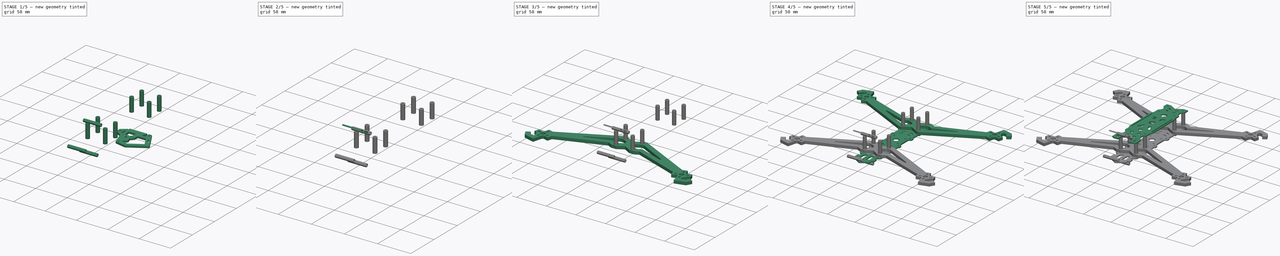
[diagram: build sequence overview — one tinted view per stage of 5, left to right]
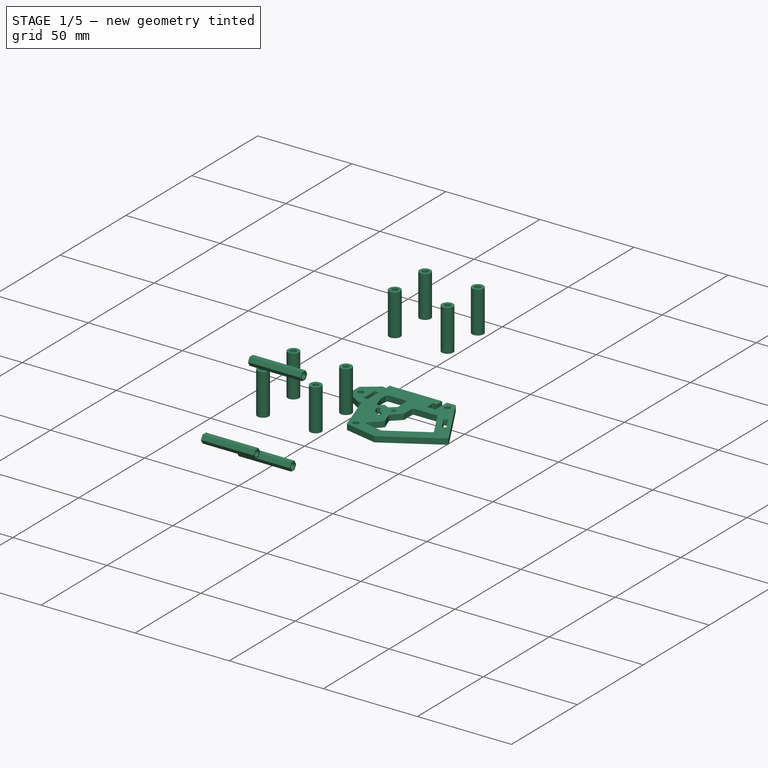
[diagram: stage 1 of 5 — iso view after this stage's code; geometry added in this stage tinted green]
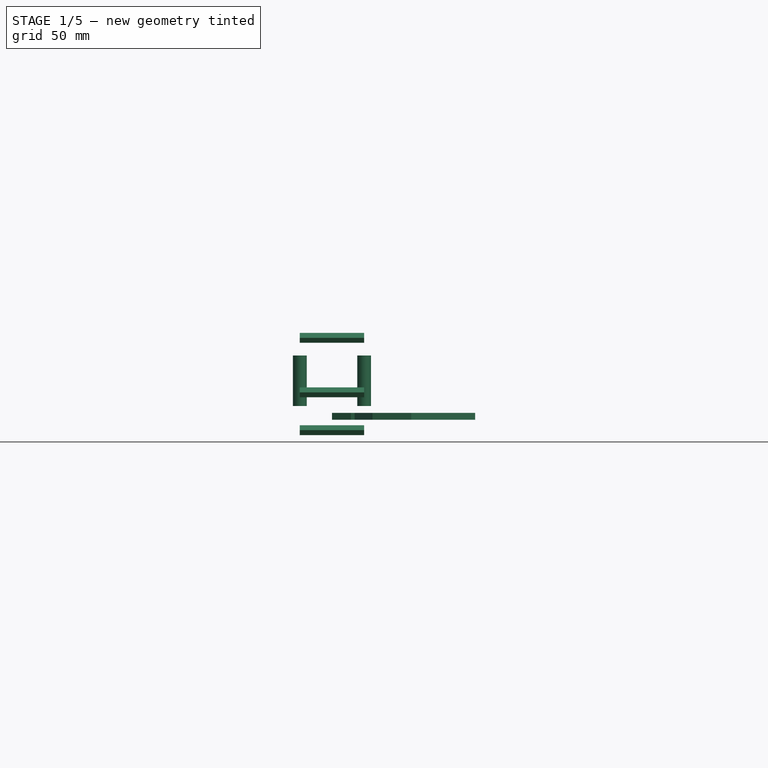
[diagram: stage 1 of 5 — front view after this stage's code; geometry added in this stage tinted green]
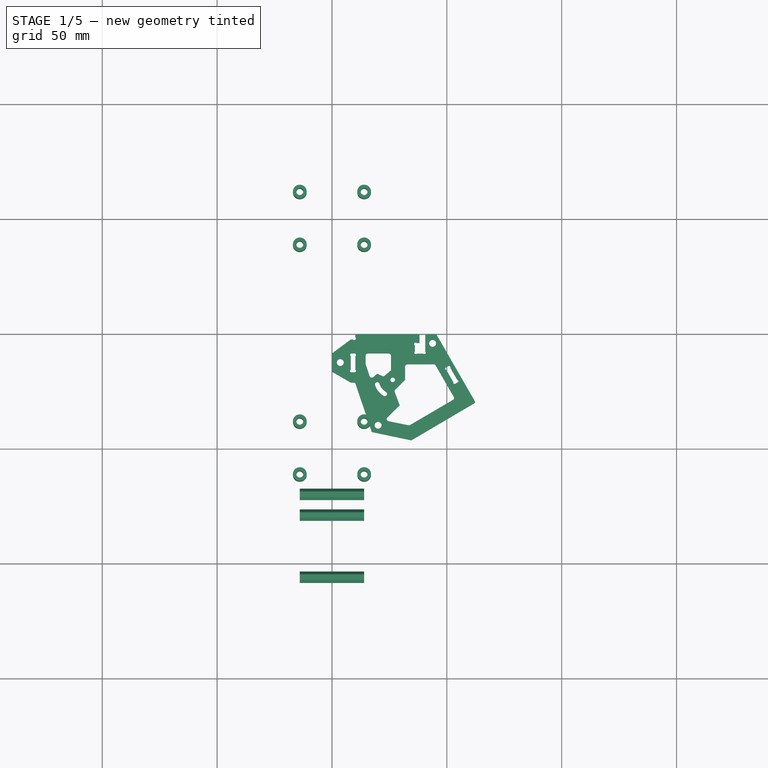
[diagram: stage 1 of 5 — top view after this stage's code; geometry added in this stage tinted green]
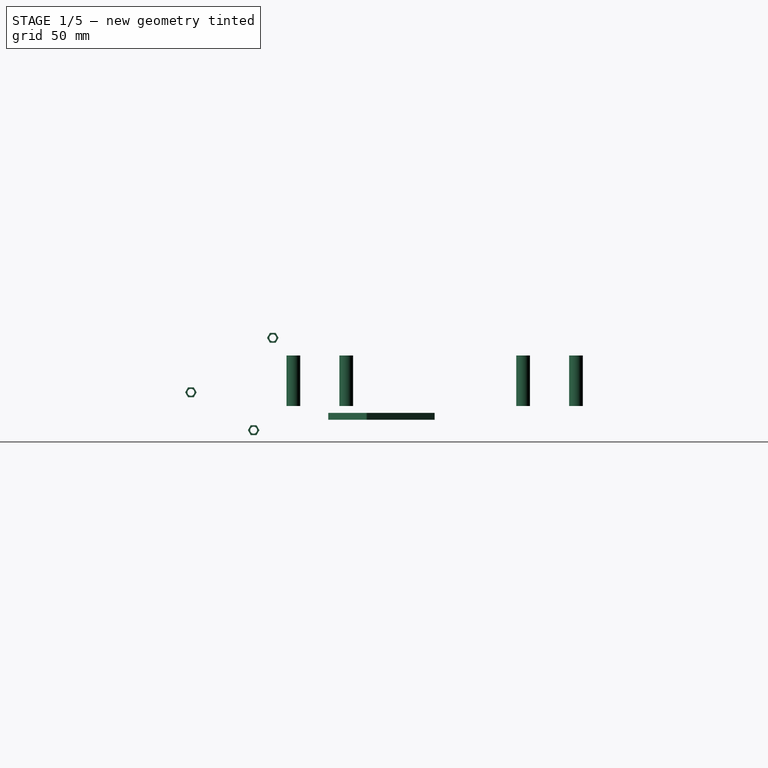
[diagram: stage 1 of 5 — right view after this stage's code; geometry added in this stage tinted green]
FCSTD DOCUMENT  (FreeCAD 0.20R29177 (Git))
Label: iFLIGHT hl7
License: All rights reserved
LicenseURL: http://en.wikipedia.org/wiki/All_rights_reserved
objects: Sketcher::SketchObject×13, Part::Extrusion×12, Part::Cut×4, Image::ImagePlane×3, Part::Mirroring×1
note: 30 computed .brp shape members not serialized (recipe doc carries the construction recipe); baked Part::Feature solids carry a one-line shape summary decoded from their .brp

FEATURE [Part::Extrusion] Extrude009
  Base = -> Sketch009
  Dir = (0,0,1)
  DirMode = 2
  FaceMakerClass = Part::FaceMakerBullseye
  LengthFwd = 3
  LengthRev = 0
  Solid = true
  Symmetric = false
FEATURE [Sketcher::SketchObject] Sketch012
  FullyConstrained = true
  MapMode = 5
  Placement = pos=(0,0,6) rot=(0,0,1;0rad)
  sketch-geometry (16):
    g0: Circle CenterX=-14 CenterY=61.5 CenterZ=0 NormalX=0 NormalY=0 NormalZ=1 AngleXU=0 Radius=3
    g1: Circle CenterX=14 CenterY=61.5 CenterZ=0 NormalX=0 NormalY=0 NormalZ=1 AngleXU=0 Radius=3
    g2: Circle CenterX=-14 CenterY=38.5 CenterZ=0 NormalX=0 NormalY=0 NormalZ=1 AngleXU=0 Radius=3
    g3: Circle CenterX=14 CenterY=38.5 CenterZ=0 NormalX=0 NormalY=0 NormalZ=1 AngleXU=0 Radius=3
    g4: Circle CenterX=-14 CenterY=-38.5 CenterZ=0 NormalX=0 NormalY=0 NormalZ=1 AngleXU=0 Radius=3
    g5: Circle CenterX=14 CenterY=-38.5 CenterZ=0 NormalX=0 NormalY=0 NormalZ=1 AngleXU=0 Radius=3
    g6: Circle CenterX=14 CenterY=-61.5 CenterZ=0 NormalX=0 NormalY=0 NormalZ=1 AngleXU=0 Radius=3
    g7: Circle CenterX=-14 CenterY=-61.5 CenterZ=0 NormalX=0 NormalY=0 NormalZ=1 AngleXU=0 Radius=3
    g8: Circle CenterX=-14 CenterY=38.5 CenterZ=0 NormalX=0 NormalY=0 NormalZ=1 AngleXU=0 Radius=1.5
    g9: Circle CenterX=14 CenterY=38.5 CenterZ=0 NormalX=0 NormalY=0 NormalZ=1 AngleXU=0 Radius=1.5
    g10: Circle CenterX=14 CenterY=61.5 CenterZ=0 NormalX=0 NormalY=0 NormalZ=1 AngleXU=0 Radius=1.5
    g11: Circle CenterX=-14 CenterY=61.5 CenterZ=0 NormalX=0 NormalY=0 NormalZ=1 AngleXU=0 Radius=1.5
    g12: Circle CenterX=-14 CenterY=-38.5 CenterZ=0 NormalX=0 NormalY=0 NormalZ=1 AngleXU=0 Radius=1.5
    g13: Circle CenterX=14 CenterY=-38.5 CenterZ=0 NormalX=0 NormalY=0 NormalZ=1 AngleXU=0 Radius=1.5
    g14: Circle CenterX=14 CenterY=-61.5 CenterZ=0 NormalX=0 NormalY=0 NormalZ=1 AngleXU=0 Radius=1.5
    g15: Circle CenterX=-14 CenterY=-61.5 CenterZ=0 NormalX=0 NormalY=0 NormalZ=1 AngleXU=0 Radius=1.5
  constraints (40):
    c: Equal(g5,g6)
    c: Equal(g5,g7)
    c: Equal(g5,g4)
    c: Equal(g5,g2)
    c: Equal(g5,g3)
    c: Equal(g5,g1)
    c: Equal(g5,g0)
    c: Diameter(g5) = 6
    c: Horizontal(g0,g1)
    c: DistanceX(g0,g1) = 28
    c: DistanceY(g1) = 61.5
    c: DistanceX(g1) = 14
    c: DistanceY(g2,g0) = 23
    c: Horizontal(g2,g3)
    c: DistanceY(g7) = -61.5
    c: DistanceY(g4) = -38.5
    c: Horizontal(g7,g6)
    c: Horizontal(g4,g5)
    c: Vertical(g7,g4)
    c: Vertical(g4,g2)
    c: Vertical(g2,g0)
    c: Vertical(g1,g3)
    c: Vertical(g3,g5)
    c: Vertical(g5,g6)
    c: Coincident(g8,g2)
    c: Coincident(g9,g3)
    c: Coincident(g10,g1)
    c: Coincident(g11,g0)
    c: Equal(g11,g10)
    c: Equal(g11,g9)
    c: Equal(g11,g8)
    c: Diameter(g11) = 3
    c: Coincident(g12,g4)
    c: Coincident(g13,g5)
    c: Coincident(g14,g6)
    c: Coincident(g15,g7)
    c: Equal(g15,g14)
    c: Equal(g15,g13)
    c: Equal(g15,g12)
    c: Diameter(g15) = 3
FEATURE [Part::Extrusion] Extrude011
  Base = -> Sketch012
  Dir = (0,0,1)
  DirMode = 2
  FaceMakerClass = Part::FaceMakerBullseye
  LengthFwd = 22
  LengthRev = 0
  Solid = true
  Symmetric = false
FEATURE [Sketcher::SketchObject] Sketch013
  FullyConstrained = false
  MapMode = 5
  Placement = pos=(-14.0207,-66.3368,-8.14884) rot=(0.707107,0,0.707107;3.14159rad)
  sketch-geometry (24):
    g0: LineSegment StartX=41.6539 StartY=5.38811 StartZ=0 EndX=41.6539 EndY=2.88811 EndZ=0
    g1: LineSegment StartX=41.6539 StartY=2.88811 StartZ=0 EndX=43.819 EndY=1.63811 EndZ=0
    g2: LineSegment StartX=43.819 StartY=1.63811 StartZ=0 EndX=45.9841 EndY=2.88811 EndZ=0
    g3: LineSegment StartX=45.9841 StartY=2.88811 StartZ=0 EndX=45.9841 EndY=5.38811 EndZ=0
    g4: LineSegment StartX=45.9841 StartY=5.38811 StartZ=0 EndX=43.819 EndY=6.63811 EndZ=0
    g5: LineSegment StartX=43.819 StartY=6.63811 StartZ=0 EndX=41.6539 EndY=5.38811 EndZ=0
    g6: Circle CenterX=43.819 CenterY=4.13811 CenterZ=0 NormalX=0 NormalY=0 NormalZ=1 AngleXU=0 Radius=2.5
    g7: LineSegment StartX=17.9368 StartY=41.0366 StartZ=0 EndX=17.9368 EndY=38.5366 EndZ=0
    g8: LineSegment StartX=17.9368 StartY=38.5366 StartZ=0 EndX=20.1019 EndY=37.2866 EndZ=0
    g9: LineSegment StartX=20.1019 StartY=37.2866 StartZ=0 EndX=22.267 EndY=38.5366 EndZ=0
    g10: LineSegment StartX=22.267 StartY=38.5366 StartZ=0 EndX=22.267 EndY=41.0366 EndZ=0
    g11: LineSegment StartX=22.267 StartY=41.0366 StartZ=0 EndX=20.1019 EndY=42.2866 EndZ=0
    g12: LineSegment StartX=20.1019 StartY=42.2866 StartZ=0 EndX=17.9368 EndY=41.0366 EndZ=0
    g13: Circle CenterX=20.1019 CenterY=39.7866 CenterZ=0 NormalX=0 NormalY=0 NormalZ=1 AngleXU=0 Radius=2.5
    g14: LineSegment StartX=1.46133 StartY=13.7234 StartZ=0 EndX=1.46133 EndY=11.2234 EndZ=0
    g15: LineSegment StartX=1.46133 StartY=11.2234 StartZ=0 EndX=3.6264 EndY=9.97343 EndZ=0
    g16: LineSegment StartX=3.6264 StartY=9.97343 StartZ=0 EndX=5.79146 EndY=11.2234 EndZ=0
    g17: LineSegment StartX=5.79146 StartY=11.2234 StartZ=0 EndX=5.79146 EndY=13.7234 EndZ=0
    g18: LineSegment StartX=5.79146 StartY=13.7234 StartZ=0 EndX=3.6264 EndY=14.9734 EndZ=0
    g19: LineSegment StartX=3.6264 StartY=14.9734 StartZ=0 EndX=1.46133 EndY=13.7234 EndZ=0
    g20: Circle CenterX=3.6264 CenterY=12.4734 CenterZ=0 NormalX=0 NormalY=0 NormalZ=1 AngleXU=0 Radius=2.5
    g21: Circle CenterX=3.6264 CenterY=12.4734 CenterZ=0 NormalX=0 NormalY=0 NormalZ=1 AngleXU=0 Radius=1.5
    g22: Circle CenterX=43.819 CenterY=4.13811 CenterZ=0 NormalX=0 NormalY=0 NormalZ=1 AngleXU=0 Radius=1.5
    g23: Circle CenterX=20.1019 CenterY=39.7866 CenterZ=0 NormalX=0 NormalY=0 NormalZ=1 AngleXU=0 Radius=1.5
  constraints (51):
    c: Coincident(g0,g1)
    c: Coincident(g1,g2)
    c: Coincident(g2,g3)
    c: Coincident(g3,g4)
    c: Coincident(g4,g5)
    c: Coincident(g5,g0)
    c: Equal(g0, g1-g5) x5
    c: PointOnObject(g0,g6)
    c: PointOnObject(g1,g6)
    c: PointOnObject(g2,g6)
    c: PointOnObject(g3,g6)
    c: PointOnObject(g4,g6)
    c: PointOnObject(g5,g6)
    c: Coincident(g7,g8)
    c: Coincident(g8,g9)
    c: Coincident(g9,g10)
    c: Coincident(g10,g11)
    c: Coincident(g11,g12)
    c: Coincident(g12,g7)
    c: Equal(g7, g8-g12) x5
    c: PointOnObject(g7,g13)
    c: PointOnObject(g8,g13)
    c: PointOnObject(g9,g13)
    c: PointOnObject(g10,g13)
    c: PointOnObject(g11,g13)
    c: PointOnObject(g12,g13)
    c: Equal(g6,g13)
    c: Diameter(g6) = 5
    c: Coincident(g14,g15)
    c: Coincident(g15,g16)
    c: Coincident(g16,g17)
    c: Coincident(g17,g18)
    c: Coincident(g18,g19)
    c: Coincident(g19,g14)
    c: Equal(g14, g15-g19) x5
    c: PointOnObject(g14,g20)
    c: PointOnObject(g15,g20)
    c: PointOnObject(g16,g20)
    c: PointOnObject(g17,g20)
    c: PointOnObject(g18,g20)
    c: PointOnObject(g19,g20)
    c: Equal(g20,g6)
    c: Vertical(g0)
    c: Vertical(g10)
    c: Vertical(g17)
    c: Coincident(g21,g20)
    c: Coincident(g22,g6)
    c: Coincident(g23,g13)
    c: Equal(g22,g21)
    c: Equal(g22,g23)
    c: Diameter(g22) = 3
FEATURE [Part::Extrusion] Extrude012
  Base = -> Sketch013
  Dir = (1,0,-2e-16)
  DirMode = 2
  FaceMakerClass = Part::FaceMakerBullseye
  LengthFwd = 28
  LengthRev = 0
  Solid = true
  Symmetric = false
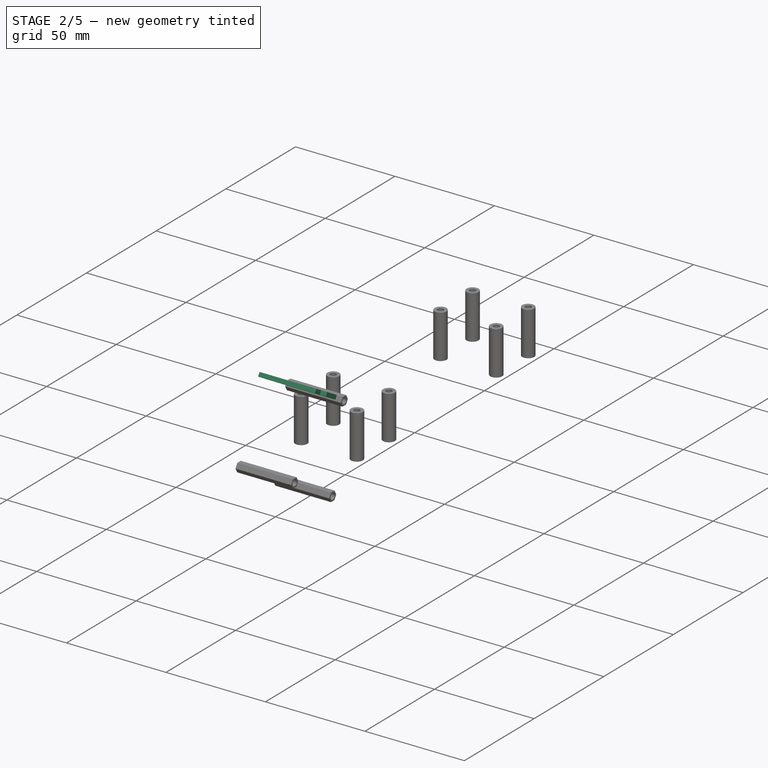
[diagram: stage 2 of 5 — iso view after this stage's code; geometry added in this stage tinted green]
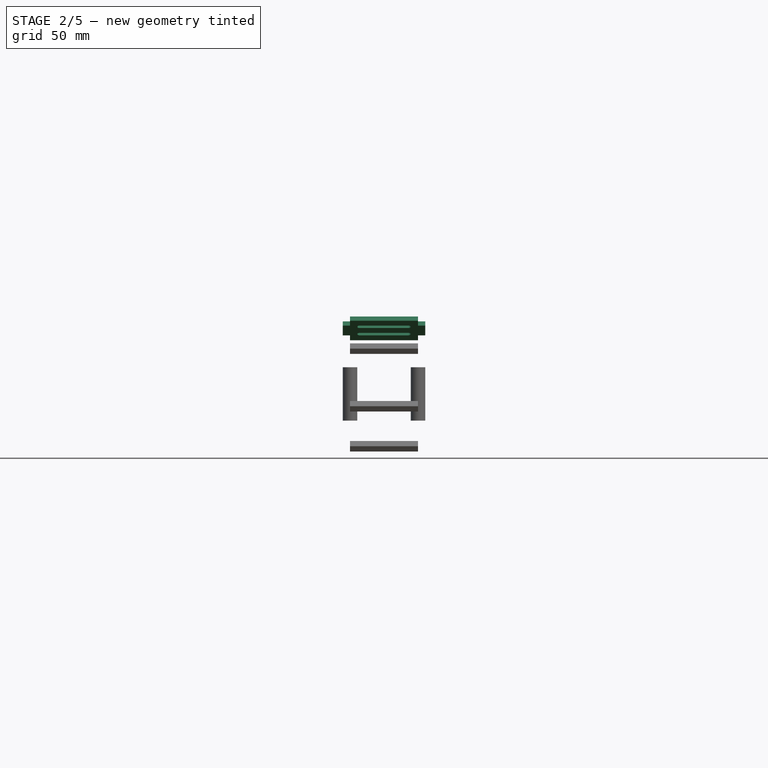
[diagram: stage 2 of 5 — front view after this stage's code; geometry added in this stage tinted green]
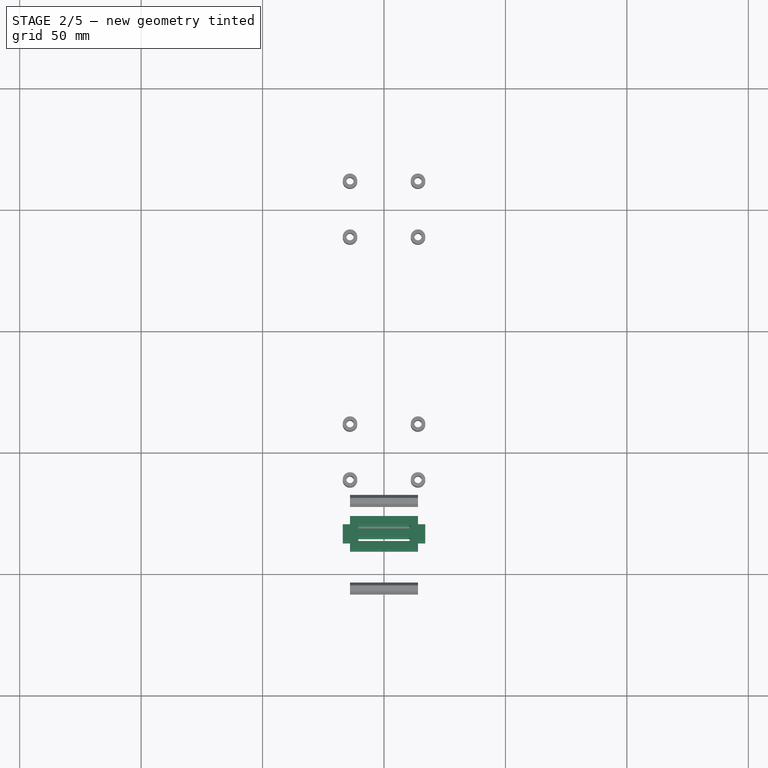
[diagram: stage 2 of 5 — top view after this stage's code; geometry added in this stage tinted green]
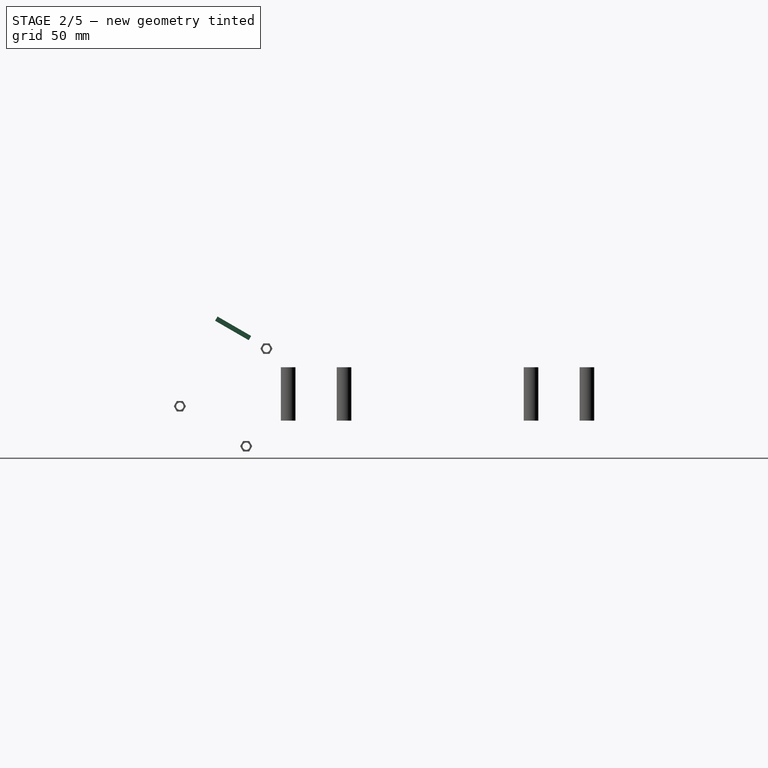
[diagram: stage 2 of 5 — right view after this stage's code; geometry added in this stage tinted green]
FEATURE [Sketcher::SketchObject] Sketch009
  FullyConstrained = false
  sketch-geometry (83):
    g0: LineSegment StartX=8.15278 StartY=-2.46572 StartZ=0 EndX=9.15076 EndY=-2.46572 EndZ=0
    g1: LineSegment StartX=10.1508 StartY=-1.46572 StartZ=0 EndX=10.1508 EndY=0 EndZ=0
    g2: LineSegment StartX=10.1508 StartY=0 StartZ=0 EndX=38.1 EndY=0 EndZ=0
    g3: LineSegment StartX=45.3227 StartY=0 StartZ=0 EndX=62.2229 EndY=-29.3769 EndZ=0
    g4: LineSegment StartX=62.0072 StartY=-30.1931 StartZ=0 EndX=34.7715 EndY=-46.2258 EndZ=0
    g5: LineSegment StartX=34.3438 StartY=-46.2959 StartZ=0 EndX=17.798 EndY=-42.8211 EndZ=0
    g6: LineSegment StartX=17.2045 StartY=-42.294 StartZ=0 EndX=10.2333 EndY=-21.6412 EndZ=0
    g7: LineSegment StartX=9.66476 StartY=-21.2331 StartZ=0 EndX=8.22288 EndY=-21.2331 EndZ=0
    g8: LineSegment StartX=8.22288 StartY=-21.2331 StartZ=0 EndX=0 EndY=-16.4656 EndZ=0
    g9: LineSegment StartX=0 StartY=-16.4656 StartZ=0 EndX=0 EndY=-8.53697 EndZ=0
    g10: LineSegment StartX=0 StartY=-8.53697 StartZ=0 EndX=8.15278 EndY=-2.46572 EndZ=0
    g11: LineSegment StartX=38.1 StartY=0 StartZ=0 EndX=38.1 EndY=-4 EndZ=0
    g12: LineSegment StartX=38.1 StartY=-4 StartZ=0 EndX=36.8 EndY=-4 EndZ=0
    g13: LineSegment StartX=36.1 StartY=-4.94316 StartZ=0 EndX=36.1 EndY=-7.71205 EndZ=0
    g14: LineSegment StartX=36.9 StartY=-8.6 StartZ=0 EndX=39.8 EndY=-8.6 EndZ=0
    g15: LineSegment StartX=40.6 StartY=-7.71205 StartZ=0 EndX=40.6 EndY=0 EndZ=0
    g16: ArcOfCircle CenterX=36.3513 CenterY=-4.39831 CenterZ=0 NormalX=0 NormalY=0 NormalZ=1 AngleXU=0 Radius=0.6 StartAngle=0.725956 EndAngle=4.28026
    g17: ArcOfCircle CenterX=36.4601 CenterY=-8.19198 CenterZ=0 NormalX=0 NormalY=0 NormalZ=1 AngleXU=0 Radius=0.6 StartAngle=2.21449 EndAngle=5.53537
    g18: ArcOfCircle CenterX=40.2399 CenterY=-8.19198 CenterZ=0 NormalX=0 NormalY=0 NormalZ=1 AngleXU=0 Radius=0.6 StartAngle=3.88941 EndAngle=7.21029
    g19: LineSegment StartX=40.6 StartY=0 StartZ=0 EndX=45.3227 EndY=0 EndZ=0
    g20: LineSegment StartX=50.6484 StartY=-14.0029 StartZ=0 EndX=49.5886 EndY=-14.6126 EndZ=0
    g21: LineSegment StartX=49.7829 StartY=-15.7234 StartZ=0 EndX=52.815 EndY=-20.994 EndZ=0
    g22: LineSegment StartX=53.6777 StartY=-21.7203 StartZ=0 EndX=54.7374 EndY=-21.1106 EndZ=0
    g23: LineSegment StartX=54.5512 StartY=-20.0013 StartZ=0 EndX=51.5138 EndY=-14.7215 EndZ=0
    g24: ArcOfCircle CenterX=49.8878 CenterY=-15.1326 CenterZ=0 NormalX=0 NormalY=0 NormalZ=1 AngleXU=0 Radius=0.6 StartAngle=2.09285 EndAngle=4.53652
    g25: ArcOfCircle CenterX=50.9476 CenterY=-14.5229 CenterZ=0 NormalX=0 NormalY=0 NormalZ=1 AngleXU=0 Radius=0.6 StartAngle=5.94594 EndAngle=8.37603
    g26: ArcOfCircle CenterX=53.3785 CenterY=-21.2002 CenterZ=0 NormalX=0 NormalY=0 NormalZ=1 AngleXU=0 Radius=0.6 StartAngle=2.79077 EndAngle=5.23444
    g27: ArcOfCircle CenterX=54.4382 CenterY=-20.5905 CenterZ=0 NormalX=0 NormalY=0 NormalZ=1 AngleXU=0 Radius=0.6 StartAngle=5.23444 EndAngle=7.66454
    g28: LineSegment StartX=49.5886 StartY=-14.6126 StartZ=0 EndX=53.6777 EndY=-21.7203 EndZ=0
    g29: LineSegment StartX=54.7374 StartY=-21.1106 StartZ=0 EndX=50.6484 EndY=-14.0029 EndZ=0
    g30: LineSegment StartX=8.16759 StartY=-9.63647 StartZ=0 EndX=8.16759 EndY=-15.5926 EndZ=0
    g31: LineSegment StartX=10.1676 StartY=-9.6606 StartZ=0 EndX=10.1676 EndY=-15.6175 EndZ=0
    g32: LineSegment StartX=8.44064 StartY=-16.7269 StartZ=0 EndX=9.85051 EndY=-16.7269 EndZ=0
    g33: LineSegment StartX=8.48436 StartY=-8.52691 StartZ=0 EndX=9.8934 EndY=-8.52691 EndZ=0
    g34: ArcOfCircle CenterX=8.48436 CenterY=-9.12691 CenterZ=0 NormalX=0 NormalY=0 NormalZ=1 AngleXU=0 Radius=0.6 StartAngle=1.5708 EndAngle=4.15621
    g35: ArcOfCircle CenterX=9.8934 CenterY=-9.12691 CenterZ=0 NormalX=0 NormalY=0 NormalZ=1 AngleXU=0 Radius=0.6 StartAngle=5.18698 EndAngle=7.85398
    g36: ArcOfCircle CenterX=9.85051 CenterY=-16.1269 CenterZ=0 NormalX=0 NormalY=0 NormalZ=1 AngleXU=0 Radius=0.6 StartAngle=4.71239 EndAngle=7.29719
    g37: ArcOfCircle CenterX=8.44064 CenterY=-16.1269 CenterZ=0 NormalX=0 NormalY=0 NormalZ=1 AngleXU=0 Radius=0.6 StartAngle=2.04327 EndAngle=4.71239
    g38: LineSegment StartX=8.44064 StartY=-9.12691 StartZ=0 EndX=8.44064 EndY=-16.1269 EndZ=0
    g39: LineSegment StartX=9.85051 StartY=-9.12691 StartZ=0 EndX=9.85051 EndY=-16.1269 EndZ=0
    g40: Circle CenterX=3.6264 CenterY=-12.4734 CenterZ=0 NormalX=0 NormalY=0 NormalZ=1 AngleXU=0 Radius=1.5
    g41: Circle CenterX=43.819 CenterY=-4.13811 CenterZ=0 NormalX=0 NormalY=0 NormalZ=1 AngleXU=0 Radius=1.5
    g42: Circle CenterX=20.1019 CenterY=-39.7866 CenterZ=0 NormalX=0 NormalY=0 NormalZ=1 AngleXU=0 Radius=1.5
    g43: LineSegment StartX=15.6771 StartY=-8.52691 StartZ=0 EndX=24.6771 EndY=-8.52691 EndZ=0
    g44: LineSegment StartX=25.6771 StartY=-9.52691 StartZ=0 EndX=25.6771 EndY=-15.9082 EndZ=0
    g45: LineSegment StartX=25.6771 StartY=-15.9082 StartZ=0 EndX=22.7612 EndY=-18.3591 EndZ=0
    g46: LineSegment StartX=22.1302 StartY=-18.4475 StartZ=0 EndX=19.8416 EndY=-17.424 EndZ=0
    g47: LineSegment StartX=19.5688 StartY=-17.4631 StartZ=0 EndX=17.9569 EndY=-18.8338 EndZ=0
    g48: LineSegment StartX=16.3591 StartY=-18.3841 StartZ=0 EndX=14.6771 EndY=-13.2649 EndZ=0
    g49: LineSegment StartX=14.6771 StartY=-13.2649 StartZ=0 EndX=14.6771 EndY=-9.52691 EndZ=0
    g50: LineSegment StartX=32.8189 StartY=-13.2363 StartZ=0 EndX=44.277 EndY=-13.2363 EndZ=0
    g51: LineSegment StartX=45.1434 StartY=-13.737 StartZ=0 EndX=53.0143 EndY=-27.3933 EndZ=0
    g52: LineSegment StartX=52.6536 StartY=-28.7553 StartZ=0 EndX=34.007 EndY=-39.6866 EndZ=0
    g53: LineSegment StartX=33.3016 StartY=-39.8038 StartZ=0 EndX=24.6122 EndY=-38.033 EndZ=0
    g54: LineSegment StartX=24.1094 StartY=-36.3414 StartZ=0 EndX=29.4576 EndY=-31.0633 EndZ=0
    g55: LineSegment StartX=29.4576 StartY=-31.0633 StartZ=0 EndX=27.3057 EndY=-25.2949 EndZ=0
    g56: LineSegment StartX=27.5443 StartY=-24.2295 StartZ=0 EndX=31.8344 EndY=-20.0449 EndZ=0
    g57: LineSegment StartX=31.8344 StartY=-20.0449 StartZ=0 EndX=31.8189 EndY=-14.239 EndZ=0
    g58: ArcOfCircle CenterX=32.8189 CenterY=-14.2363 CenterZ=0 NormalX=0 NormalY=0 NormalZ=1 AngleXU=0 Radius=1 StartAngle=1.5708 EndAngle=3.14425
    g59: ArcOfCircle CenterX=44.277 CenterY=-14.2363 CenterZ=0 NormalX=0 NormalY=0 NormalZ=1 AngleXU=0 Radius=1 StartAngle=0.522853 EndAngle=1.5708
    g60: ArcOfCircle CenterX=52.1479 CenterY=-27.8927 CenterZ=0 NormalX=0 NormalY=0 NormalZ=1 AngleXU=0 Radius=1 StartAngle=5.24263 EndAngle=6.80604
    g61: ArcOfCircle CenterX=24.8119 CenterY=-37.0531 CenterZ=0 NormalX=0 NormalY=0 NormalZ=1 AngleXU=0 Radius=1 StartAngle=2.34959 EndAngle=4.51135
    g62: ArcOfCircle CenterX=33.5013 CenterY=-38.824 CenterZ=0 NormalX=0 NormalY=0 NormalZ=1 AngleXU=0 Radius=1 StartAngle=4.51135 EndAngle=5.24263
    g63: ArcOfCircle CenterX=28.2426 CenterY=-24.9454 CenterZ=0 NormalX=0 NormalY=0 NormalZ=1 AngleXU=0 Radius=1 StartAngle=2.34375 EndAngle=3.49866
    g64: ArcOfCircle CenterX=15.6771 CenterY=-9.52691 CenterZ=0 NormalX=0 NormalY=0 NormalZ=1 AngleXU=0 Radius=1 StartAngle=1.5708 EndAngle=3.14159
    g65: ArcOfCircle CenterX=24.6771 CenterY=-9.52691 CenterZ=0 NormalX=0 NormalY=0 NormalZ=1 AngleXU=0 Radius=1 StartAngle=-9e-16 EndAngle=1.5708
    g66: ArcOfCircle CenterX=22.3752 CenterY=-17.8997 CenterZ=0 NormalX=0 NormalY=0 NormalZ=1 AngleXU=0 Radius=0.6 StartAngle=4.29189 EndAngle=5.41135
    g67: ArcOfCircle CenterX=17.3091 CenterY=-18.072 CenterZ=0 NormalX=0 NormalY=0 NormalZ=1 AngleXU=0 Radius=1 StartAngle=3.45904 EndAngle=5.41711
    g68: Circle CenterX=26.4375 CenterY=-20.0159 CenterZ=0 NormalX=0 NormalY=0 NormalZ=1 AngleXU=0 Radius=1
    g69: ArcOfCircle CenterX=19.7279 CenterY=-22.011 CenterZ=0 NormalX=0 NormalY=0 NormalZ=1 AngleXU=0 Radius=1 StartAngle=0.289014 EndAngle=3.43061
    g70: ArcOfCircle CenterX=22.9873 CenterY=-26.1066 CenterZ=0 NormalX=0 NormalY=0 NormalZ=1 AngleXU=0 Radius=1 StartAngle=4.19699 EndAngle=7.33858
    g71: ArcOfCircle CenterX=19.7361 CenterY=-17.6598 CenterZ=0 NormalX=0 NormalY=0 NormalZ=1 AngleXU=0 Radius=0.258291 StartAngle=1.1503 EndAngle=2.27552
    g72: ArcOfCircle CenterX=26.4375 CenterY=-20.0159 CenterZ=0 NormalX=0 NormalY=0 NormalZ=1 AngleXU=0 Radius=7 StartAngle=3.28763 EndAngle=4.33997
    g73: LineSegment StartX=18.7693 StartY=-22.296 StartZ=0 EndX=26.4375 EndY=-20.0159 EndZ=0
    g74: LineSegment StartX=26.4375 StartY=-20.0159 StartZ=0 EndX=22.4945 EndY=-26.9767 EndZ=0
    g75: ArcOfCircle CenterX=26.4375 CenterY=-20.0159 CenterZ=0 NormalX=0 NormalY=0 NormalZ=1 AngleXU=0 Radius=6 StartAngle=3.43061 EndAngle=4.19699
    g76: ArcOfCircle CenterX=26.4375 CenterY=-20.0159 CenterZ=0 NormalX=0 NormalY=0 NormalZ=1 AngleXU=0 Radius=8 StartAngle=3.43061 EndAngle=4.19699
    g77: ArcOfCircle CenterX=9.66476 CenterY=-21.8331 CenterZ=0 NormalX=0 NormalY=0 NormalZ=1 AngleXU=0 Radius=0.6 StartAngle=0.325535 EndAngle=1.5708
    g78: ArcOfCircle CenterX=17.9625 CenterY=-42.0382 CenterZ=0 NormalX=0 NormalY=0 NormalZ=1 AngleXU=0 Radius=0.8 StartAngle=3.46713 EndAngle=4.50539
    g79: ArcOfCircle CenterX=34.4671 CenterY=-45.7087 CenterZ=0 NormalX=0 NormalY=0 NormalZ=1 AngleXU=0 Radius=0.6 StartAngle=4.50539 EndAngle=5.24443
    g80: ArcOfCircle CenterX=61.7028 CenterY=-29.6761 CenterZ=0 NormalX=0 NormalY=0 NormalZ=1 AngleXU=0 Radius=0.6 StartAngle=5.24443 EndAngle=6.80524
    g81: ArcOfCircle CenterX=9.6882 CenterY=-2.00316 CenterZ=0 NormalX=0 NormalY=0 NormalZ=1 AngleXU=0 Radius=0.709087 StartAngle=3.85225 EndAngle=7.14332
    g82: LineSegment StartX=49.7829 StartY=-15.7234 StartZ=0 EndX=51.5138 EndY=-14.7215 EndZ=0
  constraints (177):
    c: Vertical(g1)
    c: Horizontal(g2)
    c: Horizontal(g7)
    c: Vertical(g9)
    c: Coincident(g10,g0)
    c: Coincident(g9,g10)
    c: Coincident(g8,g9)
    c: Coincident(g7,g8)
    c: Coincident(g19,g3)
    c: Coincident(g1,g2)
    c: Horizontal(g0)
    c: PointOnObject(g1,g-1)
    c: PointOnObject(g9,g-2)
    c: Vertical(g11)
    c: Horizontal(g12)
    c: Vertical(g13)
    c: Horizontal(g14)
    c: Vertical(g15)
    c: Coincident(g11,g12)
    c: DistanceY(g11,g11) = 4
    c: DistanceX(g12,g12) = 1.3
    c: DistanceX(g11) = 38.1
    c: DistanceX(g11,g15) = 2.5
    c: Coincident(g16,g12)
    c: Coincident(g16,g13)
    c: Coincident(g17,g13)
    c: Coincident(g17,g14)
    c: Coincident(g18,g14)
    c: Coincident(g18,g15)
    c: Equal(g18,g17)
    c: Radius(g18) = 0.6
    c: DistanceX(g14,g14) = 2.9
    c: Horizontal(g17,g18)
    c: Horizontal(g13,g15)
    c: DistanceY(g14,g15) = 8.6
    c: DistanceX(g13,g15) = 4.5
    c: Equal(g16,g18)
    c: Coincident(g2,g11)
    c: Coincident(g19,g15)
    c: Parallel(g21,g23)
    c: Parallel(g23,g3)
    c: Parallel(g22,g20)
    c: Coincident(g24,g20)
    c: Coincident(g24,g21)
    c: Coincident(g25,g20)
    c: Coincident(g25,g23)
    c: Coincident(g26,g21)
    c: Coincident(g26,g22)
    c: Coincident(g27,g22)
    c: Coincident(g27,g23)
    c: Parallel(g21,g28)
    c: Parallel(g28,g29)
    c: Equal(g24,g25)
    c: Equal(g24,g27)
    c: Equal(g24,g26)
    c: Radius(g24) = 0.6
    c: Angle(g20,g29) = 1.5708
    c: Vertical(g30)
    c: Vertical(g31)
    c: Horizontal(g32)
    c: Horizontal(g33)
    c: Coincident(g34,g33)
    c: Coincident(g34,g30)
    c: Coincident(g35,g33)
    c: Coincident(g35,g31)
    c: Coincident(g36,g31)
    c: Coincident(g36,g32)
    c: Coincident(g37,g30)
    c: Coincident(g37,g32)
    c: Coincident(g38,g37)
    c: Vertical(g38)
    c: Coincident(g39,g36)
    c: Vertical(g39)
    c: Equal(g37,g36)
    c: Equal(g37,g35)
    c: Equal(g37,g34)
    c: Radius(g37) = 0.6
    c: Vertical(g34,g33)
    c: Vertical(g33,g35)
    c: Vertical(g37,g32)
    c: Vertical(g36,g32)
    c: Equal(g42,g40)
    c: Equal(g42,g41)
    c: Diameter(g42) = 3
    c: DistanceY(g32,g33) = 8.2
    c: Distance(g20,g22) = 8.2
    c: Horizontal(g43)
    c: Vertical(g44)
    c: Vertical(g49)
    c: Horizontal(g50)
    c: Coincident(g56,g57)
    c: Coincident(g54,g55)
    c: Tangent(g50,g58) = 1.5708
    c: Tangent(g57,g58) = 1.5708
    c: Tangent(g50,g59) = 1.5708
    c: Tangent(g51,g59) = 1.5708
    c: Tangent(g51,g60) = 1.5708
    c: Tangent(g52,g60) = 1.5708
    c: Tangent(g53,g61) = 1.5708
    c: Tangent(g54,g61) = 1.5708
    c: Tangent(g52,g62) = 1.5708
    c: Tangent(g53,g62) = 1.5708
    c: Tangent(g55,g63) = 1.5708
    c: Tangent(g56,g63) = 1.5708
    c: Equal(g62,g61)
    c: Equal(g62,g60)
    c: Equal(g62,g59)
    c: Equal(g62,g58)
    c: Equal(g62,g63)
    c: Radius(g62) = 1
    c: Coincident(g44,g45)
    c: Coincident(g48,g49)
    c: Tangent(g43,g64) = 1.5708
    c: Tangent(g49,g64) = 1.5708
    c: Tangent(g43,g65) = 1.5708
    c: Tangent(g44,g65) = 1.5708
    c: Equal(g64,g65)
    c: Equal(g65,g58)
    c: Tangent(g45,g66) = 1.5708
    c: Tangent(g46,g66) = 1.5708
    c: Tangent(g47,g67) = 1.5708
    c: Tangent(g48,g67) = 1.5708
    c: Distance(g49,g44) = 11
    c: Horizontal(g43,g33)
    c: Radius(g67) = 1
    c: Tangent(g46,g71) = -1.5708
    c: Tangent(g47,g71) = -1.5708
    c: Diameter(g68) = 2
    c: Coincident(g72,g68)
    c: PointOnObject(g70,g72)
    c: PointOnObject(g72,g69)
    c: PointOnObject(g72,g70)
    c: Equal(g69,g70)
    c: Diameter(g69) = 2
    c: Coincident(g73,g68)
    c: Coincident(g74,g68)
    c: PointOnObject(g75,g73)
    c: Coincident(g68,g75)
    c: Coincident(g68,g76)
    c: Coincident(g73,g76)
    c: PointOnObject(g69,g73)
    c: Coincident(g74,g76)
    c: PointOnObject(g70,g74)
    c: Radius(g76) = 8
    c: Coincident(g69,g76)
    c: Coincident(g70,g75)
    c: Coincident(g70,g76)
    c: Coincident(g69,g75)
    c: Tangent(g6,g77) = -1.5708
    c: Tangent(g7,g77) = -1.5708
    c: Equal(g77,g66)
    c: Radius(g77) = 0.6
    c: Tangent(g5,g78) = 1.5708
    c: Tangent(g6,g78) = 1.5708
    c: Radius(g78) = 0.8
    c: Tangent(g4,g79) = 1.5708
    c: Tangent(g5,g79) = 1.5708
    c: Radius(g79) = 0.6
    c: Tangent(g3,g80) = 1.5708
    c: Tangent(g4,g80) = 1.5708
    c: Equal(g79,g80)
    c: Horizontal(g19)
    c: Horizontal(g2,g15)
    c: Coincident(g81,g0)
    c: Coincident(g81,g1)
    c: DistanceX(g30,g31) = 2
    c: Coincident(g82,g21)
    c: Coincident(g82,g23)
    c: Distance(g82) = 2
    c: Coincident(g22,g28)
    c: PointOnObject(g26,g28)
    c: Coincident(g29,g22)
    c: PointOnObject(g27,g29)
    c: Coincident(g28,g20)
    c: PointOnObject(g24,g28)
    c: Coincident(g29,g20)
    c: PointOnObject(g25,g29)
FEATURE [Image::ImagePlane] ImagePlane003  label="top001"
  Placement = pos=(41.8314,-23.9569,-1) rot=(0,0,1;0.07662rad)
  XSize = 206.286
  YSize = 206.582
FEATURE [Sketcher::SketchObject] Sketch010
  ExternalGeometry = -> [Sketch009]
  FullyConstrained = false
  Placement = pos=(0,0,2) rot=(0,0,1;0rad)
  sketch-geometry (14):
    g0: LineSegment StartX=15.6685 StartY=-8.53036 StartZ=0 EndX=30.5103 EndY=-8.53036 EndZ=0
    g1: LineSegment StartX=22.7868 StartY=-37.661 StartZ=0 EndX=14.6685 EndY=-13.2839 EndZ=0
    g2: LineSegment StartX=14.6685 StartY=-13.2839 StartZ=0 EndX=14.6685 EndY=-9.53036 EndZ=0
    g3: LineSegment StartX=32.2742 StartY=-13.2363 StartZ=0 EndX=44.277 EndY=-13.2363 EndZ=0
    g4: LineSegment StartX=45.1434 StartY=-13.737 StartZ=0 EndX=53.0143 EndY=-27.3933 EndZ=0
    g5: LineSegment StartX=52.6536 StartY=-28.7554 StartZ=0 EndX=34.0048 EndY=-39.6864 EndZ=0
    g6: LineSegment StartX=33.2994 StartY=-39.8036 StartZ=0 EndX=22.7868 EndY=-37.661 EndZ=0
    g7: ArcOfCircle CenterX=44.277 CenterY=-14.2363 CenterZ=0 NormalX=0 NormalY=0 NormalZ=1 AngleXU=0 Radius=1 StartAngle=0.522853 EndAngle=1.5708
    g8: ArcOfCircle CenterX=52.1479 CenterY=-27.8927 CenterZ=0 NormalX=0 NormalY=0 NormalZ=1 AngleXU=0 Radius=1 StartAngle=5.24256 EndAngle=6.80604
    g9: ArcOfCircle CenterX=33.4991 CenterY=-38.8237 CenterZ=0 NormalX=0 NormalY=0 NormalZ=1 AngleXU=0 Radius=1 StartAngle=4.51133 EndAngle=5.24256
    g10: ArcOfCircle CenterX=15.6685 CenterY=-9.53036 CenterZ=0 NormalX=0 NormalY=0 NormalZ=1 AngleXU=0 Radius=1 StartAngle=1.5708 EndAngle=3.14159
    g11: LineSegment StartX=31.5103 StartY=-9.53036 StartZ=0 EndX=31.5103 EndY=-12.4724 EndZ=0
    g12: ArcOfCircle CenterX=30.5103 CenterY=-9.53036 CenterZ=0 NormalX=0 NormalY=0 NormalZ=1 AngleXU=0 Radius=1 StartAngle=0 EndAngle=1.5708
    g13: ArcOfCircle CenterX=32.2742 CenterY=-12.4724 CenterZ=0 NormalX=0 NormalY=0 NormalZ=1 AngleXU=0 Radius=0.763921 StartAngle=3.14159 EndAngle=4.71239
  constraints (30):
    c: Horizontal(g0)
    c: Vertical(g2)
    c: Horizontal(g3)
    c: Tangent(g3,g7) = 1.5708
    c: Tangent(g4,g7) = 1.5708
    c: Tangent(g4,g8) = 1.5708
    c: Tangent(g5,g8) = 1.5708
    c: Tangent(g5,g9) = 1.5708
    c: Tangent(g6,g9) = 1.5708
    c: Equal(g9,g8)
    c: Equal(g9,g7)
    c: Radius(g9) = 1
    c: Coincident(g1,g2)
    c: Tangent(g0,g10) = 1.5708
    c: Tangent(g2,g10) = 1.5708
    c: Coincident(g1,g6)
    c: DistanceX(g9) = 33.4991
    c: DistanceY(g9) = -38.8237
    c: DistanceX(g10) = 15.6685
    c: DistanceY(g10) = -9.53036
    c: Radius(g10) = 1
    c: Vertical(g11)
    c: Tangent(g0,g12) = 1.5708
    c: Tangent(g11,g12) = 1.5708
    c: Equal(g12,g7)
    c: Tangent(g3,g13) = -1.5708
    c: Tangent(g11,g13) = -1.5708
    c: PointOnObject(g-3,g6)
    c: Coincident(g8,g-4)
    c: Coincident(g7,g-6)
FEATURE [Part::Extrusion] Extrude008
  Base = -> Sketch010
  Dir = (0,0,1)
  DirMode = 2
  FaceMakerClass = Part::FaceMakerBullseye
  LengthFwd = 1
  LengthRev = 0
  Solid = true
  Symmetric = false
FEATURE [Part::Cut] Cut003
  Base = -> Extrude009
  Placement = pos=(-14.0207,-66.3368,-8.14884) rot=(0,-1,0;1.5708rad)
  Tool = -> Extrude008
FEATURE [Part::Mirroring] Part__Mirroring  label="Cut003 (Mirror #1)"
  Base = (0,0,0)
  Normal = (1,0,0)
  Source = -> Cut003
FEATURE [Sketcher::SketchObject] Sketch011
  ExternalGeometry = -> [Cut003,Part__Mirroring]
  FullyConstrained = true
  MapMode = 5
  Placement = pos=(0,-2.68,-4.32) rot=(-1,0,0;0.524646rad)
  sketch-geometry (28):
    g0: LineSegment StartX=-17 StartY=-90.75 StartZ=0 EndX=-14 EndY=-90.75 EndZ=0
    g1: LineSegment StartX=-14 StartY=-90.75 StartZ=0 EndX=-14 EndY=-86.75 EndZ=0
    g2: LineSegment StartX=-14 StartY=-86.75 StartZ=0 EndX=14 EndY=-86.75 EndZ=0
    g3: LineSegment StartX=14 StartY=-86.75 StartZ=0 EndX=14 EndY=-90.75 EndZ=0
    g4: LineSegment StartX=14 StartY=-90.75 StartZ=0 EndX=17 EndY=-90.75 EndZ=0
    g5: LineSegment StartX=17 StartY=-90.75 StartZ=0 EndX=17 EndY=-98.75 EndZ=0
    g6: LineSegment StartX=17 StartY=-98.75 StartZ=0 EndX=14 EndY=-98.75 EndZ=0
    g7: LineSegment StartX=14 StartY=-98.75 StartZ=0 EndX=14 EndY=-102.75 EndZ=0
    g8: LineSegment StartX=14 StartY=-102.75 StartZ=0 EndX=-14 EndY=-102.75 EndZ=0
    g9: LineSegment StartX=-14 StartY=-102.75 StartZ=0 EndX=-14 EndY=-98.75 EndZ=0
    g10: LineSegment StartX=-14 StartY=-98.75 StartZ=0 EndX=-17 EndY=-98.75 EndZ=0
    g11: LineSegment StartX=-17 StartY=-98.75 StartZ=0 EndX=-17 EndY=-90.75 EndZ=0
    g12: LineSegment StartX=-10.01 StartY=-90.75 StartZ=0 EndX=10.01 EndY=-90.75 EndZ=0
    g13: LineSegment StartX=11 StartY=-91.74 StartZ=0 EndX=11 EndY=-91.76 EndZ=0
    g14: LineSegment StartX=10.01 StartY=-92.75 StartZ=0 EndX=-10.01 EndY=-92.75 EndZ=0
    g15: LineSegment StartX=-11 StartY=-91.76 StartZ=0 EndX=-11 EndY=-91.74 EndZ=0
    g16: LineSegment StartX=-10.01 StartY=-96.75 StartZ=0 EndX=10.01 EndY=-96.75 EndZ=0
    g17: LineSegment StartX=11 StartY=-97.74 StartZ=0 EndX=11 EndY=-97.76 EndZ=0
    g18: LineSegment StartX=10.01 StartY=-98.75 StartZ=0 EndX=-10.01 EndY=-98.75 EndZ=0
    g19: LineSegment StartX=-11 StartY=-97.76 StartZ=0 EndX=-11 EndY=-97.74 EndZ=0
    g20: ArcOfCircle CenterX=-10.01 CenterY=-91.74 CenterZ=0 NormalX=0 NormalY=0 NormalZ=1 AngleXU=0 Radius=0.99 StartAngle=1.5708 EndAngle=3.14159
    g21: ArcOfCircle CenterX=-10.01 CenterY=-91.76 CenterZ=0 NormalX=0 NormalY=0 NormalZ=1 AngleXU=0 Radius=0.99 StartAngle=3.14159 EndAngle=4.71239
    g22: ArcOfCircle CenterX=-10.01 CenterY=-97.74 CenterZ=0 NormalX=0 NormalY=0 NormalZ=1 AngleXU=0 Radius=0.99 StartAngle=1.5708 EndAngle=3.14159
    g23: ArcOfCircle CenterX=-10.01 CenterY=-97.76 CenterZ=0 NormalX=0 NormalY=0 NormalZ=1 AngleXU=0 Radius=0.99 StartAngle=3.14159 EndAngle=4.71239
    g24: ArcOfCircle CenterX=10.01 CenterY=-97.76 CenterZ=0 NormalX=0 NormalY=0 NormalZ=1 AngleXU=0 Radius=0.99 StartAngle=4.71239 EndAngle=6.28319
    g25: ArcOfCircle CenterX=10.01 CenterY=-97.74 CenterZ=0 NormalX=0 NormalY=0 NormalZ=1 AngleXU=0 Radius=0.99 StartAngle=2.7e-15 EndAngle=1.5708
    g26: ArcOfCircle CenterX=10.01 CenterY=-91.76 CenterZ=0 NormalX=0 NormalY=0 NormalZ=1 AngleXU=0 Radius=0.99 StartAngle=4.71239 EndAngle=6.28319
    g27: ArcOfCircle CenterX=10.01 CenterY=-91.74 CenterZ=0 NormalX=0 NormalY=0 NormalZ=1 AngleXU=0 Radius=0.99 StartAngle=6.6e-15 EndAngle=1.5708
  constraints (71):
    c: Horizontal(g0)
    c: Vertical(g1)
    c: Horizontal(g2)
    c: Horizontal(g4)
    c: Vertical(g5)
    c: Coincident(g7,g6)
    c: Vertical(g7)
    c: Horizontal(g8)
    c: Vertical(g9)
    c: Coincident(g10,g9)
    c: Coincident(g11,g10)
    c: Coincident(g11,g0)
    c: Coincident(g8,g9)
    c: Coincident(g7,g8)
    c: Coincident(g5,g6)
    c: Coincident(g4,g5)
    c: Coincident(g3,g4)
    c: Coincident(g2,g3)
    c: Vertical(g3)
    c: Horizontal(g6)
    c: Vertical(g6,g3)
    c: Horizontal(g10)
    c: Vertical(g11)
    c: Coincident(g0,g1)
    c: Vertical(g0,g9)
    c: DistanceX(g2,g2) = 28
    c: Coincident(g1,g2)
    c: DistanceX(g1) = -14
    c: DistanceY(g8,g1) = 16
    c: DistanceY(g11,g11) = 8
    c: DistanceX(g0,g4) = 34
    c: DistanceX(g0) = -17
    c: DistanceY(g8,g10) = 4
    c: Horizontal(g5,g9)
    c: Horizontal(g4,g0)
    c: DistanceY(g10) = -98.75
    c: Horizontal(g12)
    c: Horizontal(g14)
    c: Vertical(g13)
    c: Vertical(g15)
    c: Horizontal(g16)
    c: Horizontal(g18)
    c: Vertical(g17)
    c: Vertical(g19)
    c: Tangent(g12,g20) = 1.5708
    c: Tangent(g15,g20) = 1.5708
    c: Tangent(g14,g21) = 1.5708
    c: Tangent(g15,g21) = 1.5708
    c: Tangent(g16,g22) = 1.5708
    c: Tangent(g19,g22) = 1.5708
    c: Tangent(g18,g23) = 1.5708
    c: Tangent(g19,g23) = 1.5708
    c: Tangent(g17,g24) = 1.5708
    c: Tangent(g18,g24) = 1.5708
    c: Tangent(g16,g25) = 1.5708
    c: Tangent(g17,g25) = 1.5708
    c: Tangent(g13,g26) = 1.5708
    c: Tangent(g14,g26) = 1.5708
    c: Tangent(g12,g27) = 1.5708
    c: Tangent(g13,g27) = 1.5708
    c: Vertical(g13,g17)
    c: Vertical(g19,g15)
    c: Equal(g21,g20)
    c: Equal(g21, g22-g27) x6
    c: Radius(g21) = 0.99
    c: DistanceY(g14,g12) = 2
    c: DistanceY(g18,g16) = 2
    c: DistanceX(g15,g13) = 22
    c: DistanceX(g15) = -11
    c: DistanceY(g12,g1) = 4
    c: DistanceY(g8,g18) = 4
FEATURE [Part::Extrusion] Extrude010  label="cam top"
  Base = -> Sketch011
  Dir = (0,0.500907,0.865501)
  DirMode = 2
  FaceMakerClass = Part::FaceMakerBullseye
  LengthFwd = 2
  LengthRev = 0
  Solid = true
  Symmetric = false
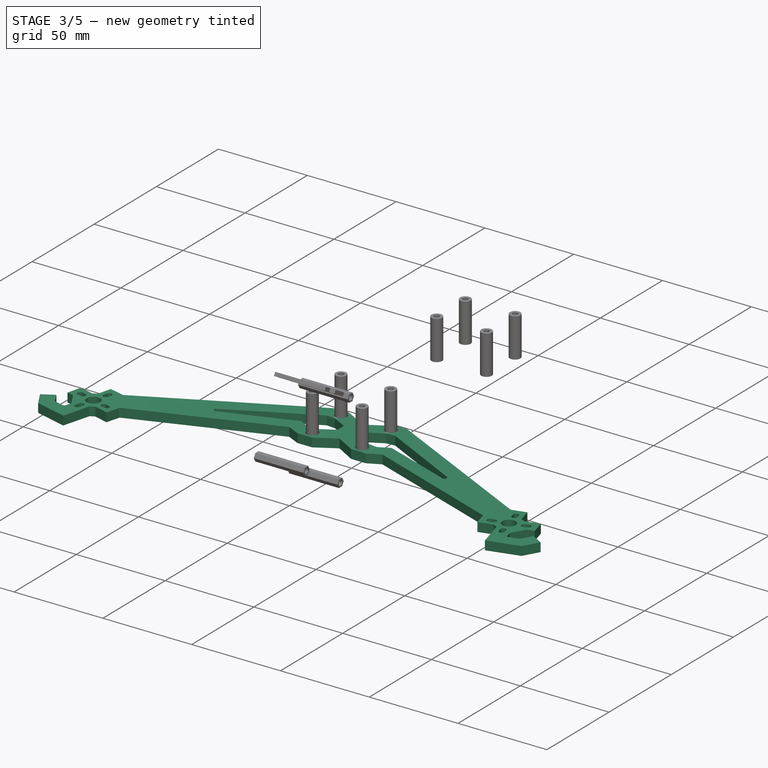
[diagram: stage 3 of 5 — iso view after this stage's code; geometry added in this stage tinted green]
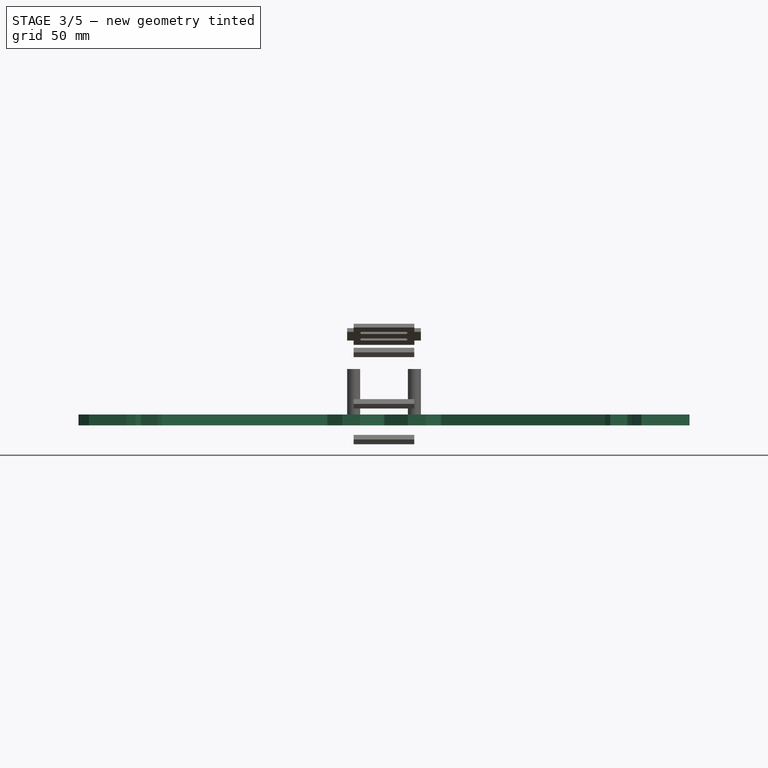
[diagram: stage 3 of 5 — front view after this stage's code; geometry added in this stage tinted green]
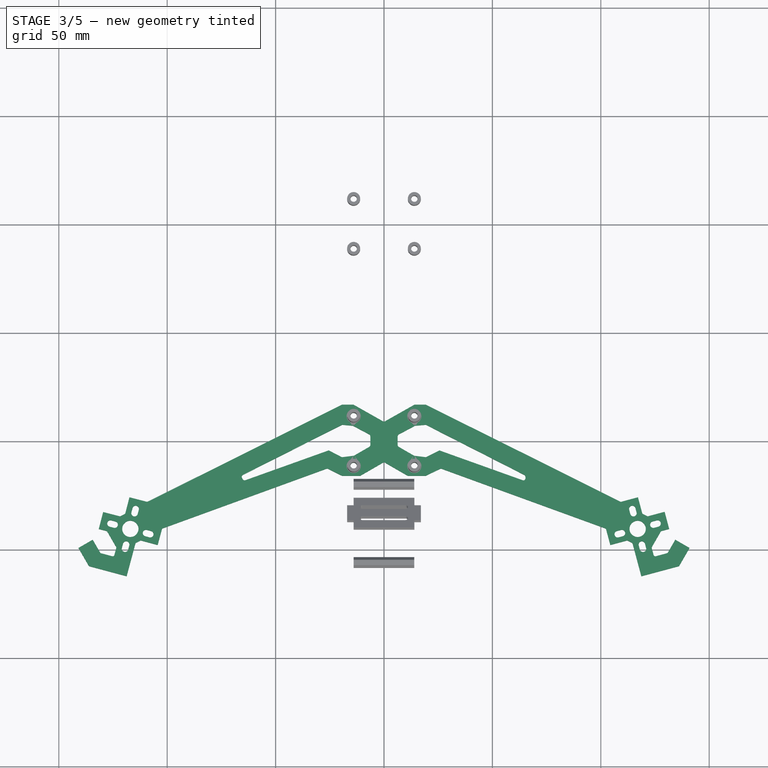
[diagram: stage 3 of 5 — top view after this stage's code; geometry added in this stage tinted green]
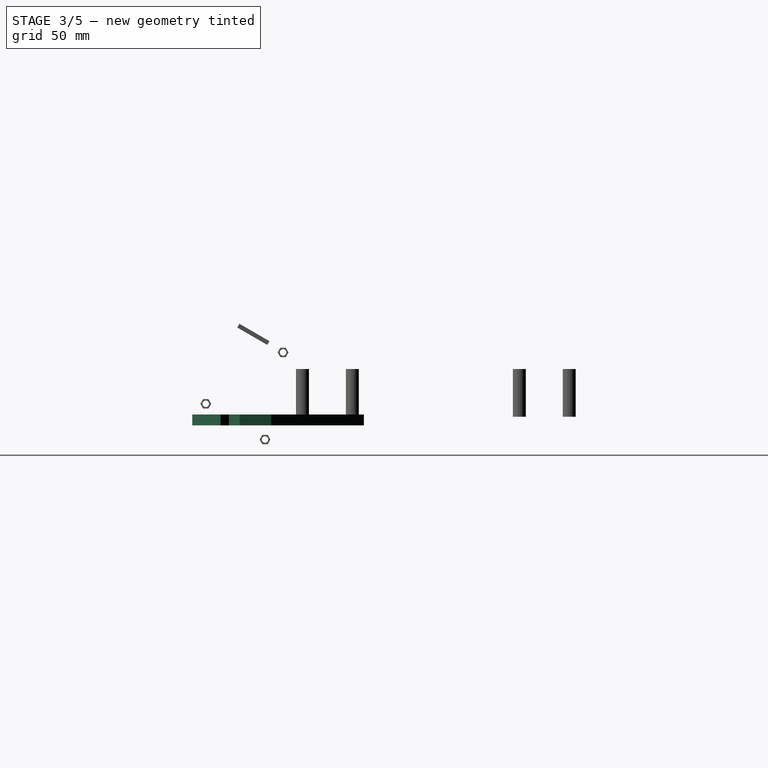
[diagram: stage 3 of 5 — right view after this stage's code; geometry added in this stage tinted green]
FEATURE [Sketcher::SketchObject] Sketch007
  FullyConstrained = false
  sketch-geometry (172):
    g0: Circle CenterX=-117 CenterY=90.5 CenterZ=0 NormalX=0 NormalY=0 NormalZ=1 AngleXU=0 Radius=3.75
    g1: LineSegment StartX=-119.457 StartY=99.6768 StartZ=0 EndX=-114.543 EndY=81.3232 EndZ=0
    g2: LineSegment StartX=-126.177 StartY=88.043 StartZ=0 EndX=-107.823 EndY=92.957 EndZ=0
    g3: LineSegment StartX=-120.906 StartY=99.2888 StartZ=0 EndX=-120.389 EndY=97.3569 EndZ=0
    g4: LineSegment StartX=-118.008 StartY=100.065 StartZ=0 EndX=-117.491 EndY=98.1328 EndZ=0
    g5: LineSegment StartX=-110.143 StartY=93.8887 StartZ=0 EndX=-108.211 EndY=94.406 EndZ=0
    g6: LineSegment StartX=-109.367 StartY=90.9908 StartZ=0 EndX=-107.435 EndY=91.5081 EndZ=0
    g7: LineSegment StartX=-113.611 StartY=83.6431 StartZ=0 EndX=-113.094 EndY=81.7112 EndZ=0
    g8: LineSegment StartX=-116.509 StartY=82.8672 StartZ=0 EndX=-115.992 EndY=80.9353 EndZ=0
    g9: LineSegment StartX=-125.789 StartY=86.594 StartZ=0 EndX=-123.857 EndY=87.1113 EndZ=0
    g10: LineSegment StartX=-126.565 StartY=89.4919 StartZ=0 EndX=-124.633 EndY=90.0092 EndZ=0
    g11: ArcOfCircle CenterX=-119.457 CenterY=99.6768 CenterZ=0 NormalX=0 NormalY=0 NormalZ=1 AngleXU=0 Radius=1.5 StartAngle=0.261608 EndAngle=3.4032
    g12: ArcOfCircle CenterX=-118.94 CenterY=97.7448 CenterZ=0 NormalX=0 NormalY=0 NormalZ=1 AngleXU=0 Radius=1.5 StartAngle=3.4032 EndAngle=6.54479
    g13: ArcOfCircle CenterX=-109.755 CenterY=92.4398 CenterZ=0 NormalX=0 NormalY=0 NormalZ=1 AngleXU=0 Radius=1.5 StartAngle=1.8324 EndAngle=4.974
    g14: ArcOfCircle CenterX=-107.823 CenterY=92.957 CenterZ=0 NormalX=0 NormalY=0 NormalZ=1 AngleXU=0 Radius=1.5 StartAngle=4.974 EndAngle=8.11559
    g15: ArcOfCircle CenterX=-115.06 CenterY=83.2552 CenterZ=0 NormalX=0 NormalY=0 NormalZ=1 AngleXU=0 Radius=1.5 StartAngle=0.261608 EndAngle=3.4032
    g16: ArcOfCircle CenterX=-114.543 CenterY=81.3232 CenterZ=0 NormalX=0 NormalY=0 NormalZ=1 AngleXU=0 Radius=1.5 StartAngle=3.4032 EndAngle=6.54479
    g17: ArcOfCircle CenterX=-124.245 CenterY=88.5602 CenterZ=0 NormalX=0 NormalY=0 NormalZ=1 AngleXU=0 Radius=1.5 StartAngle=4.974 EndAngle=8.11559
    g18: ArcOfCircle CenterX=-126.177 CenterY=88.043 CenterZ=0 NormalX=0 NormalY=0 NormalZ=1 AngleXU=0 Radius=1.5 StartAngle=1.8324 EndAngle=4.974
    g19: LineSegment StartX=-126.565 StartY=89.4919 StartZ=0 EndX=-125.789 EndY=86.594 EndZ=0
    g20: LineSegment StartX=-124.633 StartY=90.0092 StartZ=0 EndX=-123.857 EndY=87.1113 EndZ=0
    g21: LineSegment StartX=-116.509 StartY=82.8672 StartZ=0 EndX=-113.611 EndY=83.6431 EndZ=0
    g22: LineSegment StartX=-115.992 StartY=80.9353 StartZ=0 EndX=-113.094 EndY=81.7112 EndZ=0
    g23: LineSegment StartX=-110.143 StartY=93.8887 StartZ=0 EndX=-109.367 EndY=90.9908 EndZ=0
    g24: LineSegment StartX=-108.211 StartY=94.406 StartZ=0 EndX=-107.435 EndY=91.5081 EndZ=0
    g25: LineSegment StartX=-120.389 StartY=97.3569 StartZ=0 EndX=-117.491 EndY=98.1328 EndZ=0
    g26: LineSegment StartX=-120.906 StartY=99.2888 StartZ=0 EndX=-118.008 EndY=100.065 EndZ=0
    g27: Circle CenterX=-117 CenterY=90.5 CenterZ=0 NormalX=0 NormalY=0 NormalZ=1 AngleXU=0 Radius=7.5
    g28: Circle CenterX=-117 CenterY=90.5 CenterZ=0 NormalX=0 NormalY=0 NormalZ=1 AngleXU=0 Radius=9.5
    g29: LineSegment StartX=-14 StartY=61.5 StartZ=0 EndX=14 EndY=38.5 EndZ=0
    g30: LineSegment StartX=-14 StartY=38.5 StartZ=0 EndX=14 EndY=61.5 EndZ=0
    g31: Circle CenterX=117 CenterY=90.5 CenterZ=0 NormalX=0 NormalY=0 NormalZ=1 AngleXU=0 Radius=3.75
    g32: Circle CenterX=117 CenterY=90.5 CenterZ=0 NormalX=0 NormalY=0 NormalZ=1 AngleXU=0 Radius=7.5
    g33: Circle CenterX=117 CenterY=90.5 CenterZ=0 NormalX=0 NormalY=0 NormalZ=1 AngleXU=0 Radius=9.5
    g34: LineSegment StartX=107.823 StartY=92.957 StartZ=0 EndX=126.177 EndY=88.043 EndZ=0
    g35: LineSegment StartX=119.457 StartY=99.6768 StartZ=0 EndX=114.543 EndY=81.3232 EndZ=0
    g36: LineSegment StartX=107.435 StartY=91.5081 StartZ=0 EndX=109.367 EndY=90.9908 EndZ=0
    g37: LineSegment StartX=108.211 StartY=94.406 StartZ=0 EndX=110.143 EndY=93.8887 EndZ=0
    g38: LineSegment StartX=118.008 StartY=100.065 StartZ=0 EndX=117.491 EndY=98.1328 EndZ=0
    g39: LineSegment StartX=120.906 StartY=99.2888 StartZ=0 EndX=120.389 EndY=97.3569 EndZ=0
    g40: LineSegment StartX=116.509 StartY=82.8672 StartZ=0 EndX=115.992 EndY=80.9353 EndZ=0
    g41: LineSegment StartX=113.611 StartY=83.6431 StartZ=0 EndX=113.094 EndY=81.7112 EndZ=0
    g42: ArcOfCircle CenterX=107.823 CenterY=92.957 CenterZ=0 NormalX=0 NormalY=0 NormalZ=1 AngleXU=0 Radius=1.5 StartAngle=1.30919 EndAngle=4.45078
    g43: ArcOfCircle CenterX=109.755 CenterY=92.4398 CenterZ=0 NormalX=0 NormalY=0 NormalZ=1 AngleXU=0 Radius=1.5 StartAngle=4.45078 EndAngle=7.59237
    g44: ArcOfCircle CenterX=119.457 CenterY=99.6768 CenterZ=0 NormalX=0 NormalY=0 NormalZ=1 AngleXU=0 Radius=1.5 StartAngle=6.02158 EndAngle=9.16317
    g45: ArcOfCircle CenterX=118.94 CenterY=97.7448 CenterZ=0 NormalX=0 NormalY=0 NormalZ=1 AngleXU=0 Radius=1.5 StartAngle=2.87998 EndAngle=6.02158
    g46: ArcOfCircle CenterX=115.06 CenterY=83.2552 CenterZ=0 NormalX=0 NormalY=0 NormalZ=1 AngleXU=0 Radius=1.5 StartAngle=6.02158 EndAngle=9.16317
    g47: ArcOfCircle CenterX=114.543 CenterY=81.3232 CenterZ=0 NormalX=0 NormalY=0 NormalZ=1 AngleXU=0 Radius=1.5 StartAngle=2.87998 EndAngle=6.02158
    g48: LineSegment StartX=108.211 StartY=94.406 StartZ=0 EndX=107.435 EndY=91.5081 EndZ=0
    g49: LineSegment StartX=110.143 StartY=93.8887 StartZ=0 EndX=109.367 EndY=90.9908 EndZ=0
    g50: LineSegment StartX=117.491 StartY=98.1328 StartZ=0 EndX=120.389 EndY=97.3569 EndZ=0
    g51: LineSegment StartX=118.008 StartY=100.065 StartZ=0 EndX=120.906 EndY=99.2888 EndZ=0
    g52: LineSegment StartX=113.094 StartY=81.7112 StartZ=0 EndX=115.992 EndY=80.9353 EndZ=0
    g53: LineSegment StartX=113.611 StartY=83.6431 StartZ=0 EndX=116.509 EndY=82.8672 EndZ=0
    g54: LineSegment StartX=124.633 StartY=90.0092 StartZ=0 EndX=123.857 EndY=87.1113 EndZ=0
    g55: LineSegment StartX=126.565 StartY=89.4919 StartZ=0 EndX=125.789 EndY=86.594 EndZ=0
    g56: LineSegment StartX=123.857 StartY=87.1113 StartZ=0 EndX=125.789 EndY=86.594 EndZ=0
    g57: LineSegment StartX=124.633 StartY=90.0092 StartZ=0 EndX=126.565 EndY=89.4919 EndZ=0
    g58: ArcOfCircle CenterX=124.245 CenterY=88.5602 CenterZ=0 NormalX=0 NormalY=0 NormalZ=1 AngleXU=0 Radius=1.5 StartAngle=1.30919 EndAngle=4.45078
    g59: ArcOfCircle CenterX=126.177 CenterY=88.043 CenterZ=0 NormalX=0 NormalY=0 NormalZ=1 AngleXU=0 Radius=1.5 StartAngle=4.45078 EndAngle=7.59237
    g60: LineSegment StartX=-140.939 StartY=99.2992 StartZ=0 EndX=-136.088 EndY=107.699 EndZ=0
    g61: LineSegment StartX=-136.088 StartY=107.699 StartZ=0 EndX=-118.7 EndY=112.354 EndZ=0
    g62: LineSegment StartX=-118.7 StartY=112.354 StartZ=0 EndX=-114.691 EndY=97.3816 EndZ=0
    g63: LineSegment StartX=-114.275 StartY=96.8724 StartZ=0 EndX=-112.485 EndY=95.9807 EndZ=0
    g64: LineSegment StartX=-111.921 StartY=95.924 StartZ=0 EndX=-104.387 EndY=97.9413 EndZ=0
    g65: LineSegment StartX=-104.387 StartY=97.9413 StartZ=0 EndX=-102.473 EndY=90.7931 EndZ=0
    g66: LineSegment StartX=-101.974 StartY=90.2483 StartZ=0 EndX=-26.5238 EndY=62.7704 EndZ=0
    g67: LineSegment StartX=-25.8994 StartY=62.803 StartZ=0 EndX=-19.25 EndY=66.0445 EndZ=0
    g68: LineSegment StartX=-19.25 StartY=66.0445 StartZ=0 EndX=-11 EndY=66.0445 EndZ=0
    g69: LineSegment StartX=-11 StartY=66.0445 StartZ=0 EndX=-0.4 EndY=59.9246 EndZ=0
    g70: LineSegment StartX=0.4 StartY=59.9246 StartZ=0 EndX=11 EndY=66.0445 EndZ=0
    g71: LineSegment StartX=11 StartY=66.0445 StartZ=0 EndX=19.25 EndY=66.0445 EndZ=0
    g72: LineSegment StartX=19.25 StartY=66.0445 StartZ=0 EndX=25.8994 EndY=62.803 EndZ=0
    g73: LineSegment StartX=26.5238 StartY=62.7704 StartZ=0 EndX=101.974 EndY=90.2483 EndZ=0
    g74: LineSegment StartX=102.473 StartY=90.7931 StartZ=0 EndX=104.387 EndY=97.9413 EndZ=0
    g75: LineSegment StartX=104.387 StartY=97.9413 StartZ=0 EndX=111.921 EndY=95.924 EndZ=0
    g76: LineSegment StartX=112.485 StartY=95.9807 StartZ=0 EndX=114.275 EndY=96.8724 EndZ=0
    g77: LineSegment StartX=114.691 StartY=97.3816 StartZ=0 EndX=118.7 EndY=112.354 EndZ=0
    g78: LineSegment StartX=118.7 StartY=112.354 StartZ=0 EndX=136.088 EndY=107.699 EndZ=0
    g79: LineSegment StartX=136.088 StartY=107.699 StartZ=0 EndX=140.939 EndY=99.2992 EndZ=0
    g80: LineSegment StartX=140.939 StartY=99.2992 StartZ=0 EndX=134.358 EndY=95.498 EndZ=0
    g81: LineSegment StartX=134.358 StartY=95.498 StartZ=0 EndX=130.957 EndY=101.386 EndZ=0
    g82: LineSegment StartX=130.471 StartY=101.759 StartZ=0 EndX=125.341 EndY=103.133 EndZ=0
    g83: LineSegment StartX=124.361 StartY=102.567 StartZ=0 EndX=123.508 EndY=99.3789 EndZ=0
    g84: LineSegment StartX=123.588 StartY=98.7719 StartZ=0 EndX=127.589 EndY=91.8445 EndZ=0
    g85: LineSegment StartX=128.082 StartY=91.47 StartZ=0 EndX=131.567 EndY=90.5693 EndZ=0
    g86: LineSegment StartX=131.567 StartY=90.5693 StartZ=0 EndX=129.541 EndY=82.727 EndZ=0
    g87: LineSegment StartX=129.541 StartY=82.727 StartZ=0 EndX=122.056 EndY=84.661 EndZ=0
    g88: LineSegment StartX=121.499 StartY=84.6026 StartZ=0 EndX=119.709 EndY=83.7109 EndZ=0
    g89: LineSegment StartX=119.291 StartY=83.1949 StartZ=0 EndX=117.414 EndY=75.9296 EndZ=0
    g90: LineSegment StartX=117.414 StartY=75.9296 StartZ=0 EndX=109.5 EndY=77.9746 EndZ=0
    g91: LineSegment StartX=108.943 StartY=77.9159 StartZ=0 EndX=19.2997 EndY=33.2 EndZ=0
    g92: LineSegment StartX=19.2997 StartY=33.2 StartZ=0 EndX=14.0497 EndY=33.2 EndZ=0
    g93: LineSegment StartX=14.0497 StartY=33.2 StartZ=0 EndX=0.492424 EndY=40.8704 EndZ=0
    g94: LineSegment StartX=-0.492424 StartY=40.8704 StartZ=0 EndX=-14.0497 EndY=33.2 EndZ=0
    g95: LineSegment StartX=-14.0497 StartY=33.2 StartZ=0 EndX=-19.2997 EndY=33.2 EndZ=0
    g96: LineSegment StartX=-19.2997 StartY=33.2 StartZ=0 EndX=-108.943 EndY=77.9159 EndZ=0
    g97: LineSegment StartX=-109.507 StartY=77.9728 StartZ=0 EndX=-117.138 EndY=75.9296 EndZ=0
    g98: LineSegment StartX=-117.138 StartY=75.9296 StartZ=0 EndX=-119.085 EndY=83.2017 EndZ=0
    g99: LineSegment StartX=-119.501 StartY=83.7109 StartZ=0 EndX=-121.291 EndY=84.6026 EndZ=0
    g100: LineSegment StartX=-121.855 StartY=84.6593 StartZ=0 EndX=-129.434 EndY=82.63 EndZ=0
    g101: LineSegment StartX=-129.434 StartY=82.63 StartZ=0 EndX=-131.552 EndY=90.5407 EndZ=0
    g102: LineSegment StartX=-131.552 StartY=90.5407 StartZ=0 EndX=-128.075 EndY=91.4718 EndZ=0
    g103: LineSegment StartX=-127.589 StartY=91.8445 StartZ=0 EndX=-123.588 EndY=98.7719 EndZ=0
    g104: LineSegment StartX=-123.508 StartY=99.3789 StartZ=0 EndX=-124.361 EndY=102.567 EndZ=0
    g105: LineSegment StartX=-125.341 StartY=103.133 StartZ=0 EndX=-130.471 EndY=101.759 EndZ=0
    g106: LineSegment StartX=-130.957 StartY=101.386 StartZ=0 EndX=-134.358 EndY=95.498 EndZ=0
    g107: LineSegment StartX=-134.358 StartY=95.498 StartZ=0 EndX=-140.939 EndY=99.2992 EndZ=0
    g108: ArcOfCircle CenterX=-130.264 CenterY=100.986 CenterZ=0 NormalX=0 NormalY=0 NormalZ=1 AngleXU=0 Radius=0.8 StartAngle=1.8324 EndAngle=2.6178
    g109: ArcOfCircle CenterX=-125.134 CenterY=102.36 CenterZ=0 NormalX=0 NormalY=0 NormalZ=1 AngleXU=0 Radius=0.8 StartAngle=0.261608 EndAngle=1.8324
    g110: ArcOfCircle CenterX=-124.281 CenterY=99.172 CenterZ=0 NormalX=0 NormalY=0 NormalZ=1 AngleXU=0 Radius=0.8 StartAngle=5.75939 EndAngle=6.54479
    g111: ArcOfCircle CenterX=-113.918 CenterY=97.5885 CenterZ=0 NormalX=0 NormalY=0 NormalZ=1 AngleXU=0 Radius=0.8 StartAngle=3.4032 EndAngle=4.25025
    g112: ArcOfCircle CenterX=-112.128 CenterY=96.6967 CenterZ=0 NormalX=0 NormalY=0 NormalZ=1 AngleXU=0 Radius=0.8 StartAngle=4.25025 EndAngle=4.974
    g113: ArcOfCircle CenterX=-101.7 CenterY=91 CenterZ=0 NormalX=0 NormalY=0 NormalZ=1 AngleXU=0 Radius=0.8 StartAngle=3.4032 EndAngle=4.36313
    g114: ArcOfCircle CenterX=-109.3 CenterY=77.2 CenterZ=0 NormalX=0 NormalY=0 NormalZ=1 AngleXU=0 Radius=0.8 StartAngle=1.10809 EndAngle=1.8324
    g115: ArcOfCircle CenterX=-128.282 CenterY=92.2446 CenterZ=0 NormalX=0 NormalY=0 NormalZ=1 AngleXU=0 Radius=0.8 StartAngle=4.974 EndAngle=5.75939
    g116: ArcOfCircle CenterX=-121.648 CenterY=83.8865 CenterZ=0 NormalX=0 NormalY=0 NormalZ=1 AngleXU=0 Radius=0.8 StartAngle=1.10866 EndAngle=1.8324
    g117: ArcOfCircle CenterX=-119.858 CenterY=82.9948 CenterZ=0 NormalX=0 NormalY=0 NormalZ=1 AngleXU=0 Radius=0.8 StartAngle=0.261608 EndAngle=1.10866
    g118: ArcOfCircle CenterX=0 CenterY=40 CenterZ=0 NormalX=0 NormalY=0 NormalZ=1 AngleXU=0 Radius=1 StartAngle=1.05592 EndAngle=2.08567
    g119: ArcOfCircle CenterX=109.3 CenterY=77.2 CenterZ=0 NormalX=0 NormalY=0 NormalZ=1 AngleXU=0 Radius=0.8 StartAngle=1.31792 EndAngle=2.0335
    g120: ArcOfCircle CenterX=120.066 CenterY=82.9948 CenterZ=0 NormalX=0 NormalY=0 NormalZ=1 AngleXU=0 Radius=0.8 StartAngle=2.03293 EndAngle=2.88871
    g121: ArcOfCircle CenterX=121.856 CenterY=83.8865 CenterZ=0 NormalX=0 NormalY=0 NormalZ=1 AngleXU=0 Radius=0.8 StartAngle=1.31792 EndAngle=2.03293
    g122: ArcOfCircle CenterX=128.282 CenterY=92.2446 CenterZ=0 NormalX=0 NormalY=0 NormalZ=1 AngleXU=0 Radius=0.8 StartAngle=3.66538 EndAngle=4.45951
    g123: ArcOfCircle CenterX=124.281 CenterY=99.172 CenterZ=0 NormalX=0 NormalY=0 NormalZ=1 AngleXU=0 Radius=0.8 StartAngle=2.87998 EndAngle=3.66538
    g124: ArcOfCircle CenterX=125.134 CenterY=102.36 CenterZ=0 NormalX=0 NormalY=0 NormalZ=1 AngleXU=0 Radius=0.8 StartAngle=1.30919 EndAngle=2.87998
    g125: ArcOfCircle CenterX=130.264 CenterY=100.986 CenterZ=0 NormalX=0 NormalY=0 NormalZ=1 AngleXU=0 Radius=0.8 StartAngle=0.52379 EndAngle=1.30919
    g126: ArcOfCircle CenterX=113.918 CenterY=97.5885 CenterZ=0 NormalX=0 NormalY=0 NormalZ=1 AngleXU=0 Radius=0.8 StartAngle=5.17452 EndAngle=6.02158
    g127: ArcOfCircle CenterX=112.128 CenterY=96.6967 CenterZ=0 NormalX=0 NormalY=0 NormalZ=1 AngleXU=0 Radius=0.8 StartAngle=4.45078 EndAngle=5.17452
    g128: ArcOfCircle CenterX=101.7 CenterY=91 CenterZ=0 NormalX=0 NormalY=0 NormalZ=1 AngleXU=0 Radius=0.8 StartAngle=5.06165 EndAngle=6.02158
    g129: ArcOfCircle CenterX=26.25 CenterY=63.5221 CenterZ=0 NormalX=0 NormalY=0 NormalZ=1 AngleXU=0 Radius=0.8 StartAngle=4.25879 EndAngle=5.06165
    g130: ArcOfCircle CenterX=0 CenterY=60.6175 CenterZ=0 NormalX=0 NormalY=0 NormalZ=1 AngleXU=0 Radius=0.8 StartAngle=4.18879 EndAngle=5.23599
    g131: ArcOfCircle CenterX=-26.25 CenterY=63.5221 CenterZ=0 NormalX=0 NormalY=0 NormalZ=1 AngleXU=0 Radius=0.8 StartAngle=4.36313 EndAngle=5.16598
    g132: LineSegment StartX=113.915 StartY=96.6931 StartZ=0 EndX=120.248 EndY=83.9793 EndZ=0
    g133: LineSegment StartX=116.633 StartY=104.636 StartZ=0 EndX=124.361 EndY=102.567 EndZ=0
    g134: LineSegment StartX=-65.2732 StartY=67.0611 StartZ=0 EndX=-65.2396 EndY=66.451 EndZ=0
    g135: LineSegment StartX=-64.6951 StartY=65.6149 StartZ=0 EndX=-19.5653 EndY=42.6202 EndZ=0
    g136: LineSegment StartX=-19.0242 StartY=42.515 StartZ=0 EndX=-14.5413 EndY=42.9072 EndZ=0
    g137: LineSegment StartX=-14.159 StartY=43.0204 StartZ=0 EndX=-6.83053 EndY=46.9171 EndZ=0
    g138: LineSegment StartX=-6.3 StartY=47.8 StartZ=0 EndX=-6.3 EndY=51.8 EndZ=0
    g139: LineSegment StartX=-6.8 StartY=52.666 StartZ=0 EndX=-13.7282 EndY=56.666 EndZ=0
    g140: LineSegment StartX=-14.1063 StartY=56.7925 StartZ=0 EndX=-19.0691 EndY=57.4019 EndZ=0
    g141: LineSegment StartX=-19.6449 StartY=57.3004 StartZ=0 EndX=-25.5256 EndY=54.304 EndZ=0
    g142: LineSegment StartX=-25.5256 StartY=54.304 StartZ=0 EndX=-63.9376 EndY=68.0575 EndZ=0
    g143: ArcOfCircle CenterX=-64.2747 CenterY=67.116 CenterZ=0 NormalX=0 NormalY=0 NormalZ=1 AngleXU=0 Radius=1 StartAngle=1.22697 EndAngle=3.19657
    g144: ArcOfCircle CenterX=-64.2411 CenterY=66.5059 CenterZ=0 NormalX=0 NormalY=0 NormalZ=1 AngleXU=0 Radius=1 StartAngle=3.19657 EndAngle=4.24115
    g145: ArcOfCircle CenterX=-14.6285 CenterY=43.9034 CenterZ=0 NormalX=0 NormalY=0 NormalZ=1 AngleXU=0 Radius=1 StartAngle=4.79966 EndAngle=5.20108
    g146: ArcOfCircle CenterX=-19.1113 CenterY=43.5112 CenterZ=0 NormalX=0 NormalY=0 NormalZ=1 AngleXU=0 Radius=1 StartAngle=4.24115 EndAngle=4.79966
    g147: ArcOfCircle CenterX=-7.3 CenterY=47.8 CenterZ=0 NormalX=0 NormalY=0 NormalZ=1 AngleXU=0 Radius=1 StartAngle=5.20108 EndAngle=6.28319
    g148: ArcOfCircle CenterX=-7.3 CenterY=51.8 CenterZ=0 NormalX=0 NormalY=0 NormalZ=1 AngleXU=0 Radius=1 StartAngle=9e-16 EndAngle=1.0472
    g149: ArcOfCircle CenterX=-14.2282 CenterY=55.8 CenterZ=0 NormalX=0 NormalY=0 NormalZ=1 AngleXU=0 Radius=1 StartAngle=1.0472 EndAngle=1.44862
    g150: ArcOfCircle CenterX=-19.1909 CenterY=56.4093 CenterZ=0 NormalX=0 NormalY=0 NormalZ=1 AngleXU=0 Radius=1 StartAngle=1.44862 EndAngle=2.04204
    g151: LineSegment StartX=6.3 StartY=51.8 StartZ=0 EndX=6.3 EndY=47.8 EndZ=0
    g152: LineSegment StartX=6.83053 StartY=46.9171 StartZ=0 EndX=14.159 EndY=43.0204 EndZ=0
    g153: LineSegment StartX=14.5413 StartY=42.9072 StartZ=0 EndX=19.0242 EndY=42.515 EndZ=0
    g154: LineSegment StartX=19.5622 StartY=42.6186 StartZ=0 EndX=65.0841 EndY=65.6134 EndZ=0
    g155: LineSegment StartX=65.4954 StartY=67.0126 StartZ=0 EndX=65.1368 EndY=67.6227 EndZ=0
    g156: LineSegment StartX=63.9376 StartY=68.0575 StartZ=0 EndX=25.5256 EndY=54.304 EndZ=0
    g157: LineSegment StartX=25.5256 StartY=54.304 StartZ=0 EndX=19.6449 EndY=57.3004 EndZ=0
    g158: LineSegment StartX=19.0691 StartY=57.4019 StartZ=0 EndX=14.1063 EndY=56.7925 EndZ=0
    g159: LineSegment StartX=13.7282 StartY=56.666 StartZ=0 EndX=6.8 EndY=52.666 EndZ=0
    g160: ArcOfCircle CenterX=7.3 CenterY=51.8 CenterZ=0 NormalX=0 NormalY=0 NormalZ=1 AngleXU=0 Radius=1 StartAngle=2.0944 EndAngle=3.14159
    g161: ArcOfCircle CenterX=14.2282 CenterY=55.8 CenterZ=0 NormalX=0 NormalY=0 NormalZ=1 AngleXU=0 Radius=1 StartAngle=1.69297 EndAngle=2.0944
    g162: ArcOfCircle CenterX=19.1909 CenterY=56.4093 CenterZ=0 NormalX=0 NormalY=0 NormalZ=1 AngleXU=0 Radius=1 StartAngle=1.09956 EndAngle=1.69297
    g163: ArcOfCircle CenterX=7.3 CenterY=47.8 CenterZ=0 NormalX=0 NormalY=0 NormalZ=1 AngleXU=0 Radius=1 StartAngle=3.14159 EndAngle=4.2237
    g164: ArcOfCircle CenterX=14.6285 CenterY=43.9034 CenterZ=0 NormalX=0 NormalY=0 NormalZ=1 AngleXU=0 Radius=1 StartAngle=4.2237 EndAngle=4.62512
    g165: ArcOfCircle CenterX=19.1113 CenterY=43.5112 CenterZ=0 NormalX=0 NormalY=0 NormalZ=1 AngleXU=0 Radius=1 StartAngle=4.62512 EndAngle=5.18014
    g166: ArcOfCircle CenterX=64.6332 CenterY=66.5059 CenterZ=0 NormalX=0 NormalY=0 NormalZ=1 AngleXU=0 Radius=1 StartAngle=5.18014 EndAngle=6.81452
    g167: ArcOfCircle CenterX=64.2747 CenterY=67.116 CenterZ=0 NormalX=0 NormalY=0 NormalZ=1 AngleXU=0 Radius=1 StartAngle=0.531333 EndAngle=1.91463
    g168: Circle CenterX=-14 CenterY=61.5 CenterZ=0 NormalX=0 NormalY=0 NormalZ=1 AngleXU=0 Radius=1.5
    g169: Circle CenterX=14 CenterY=61.5 CenterZ=0 NormalX=0 NormalY=0 NormalZ=1 AngleXU=0 Radius=1.5
    g170: Circle CenterX=14 CenterY=38.5 CenterZ=0 NormalX=0 NormalY=0 NormalZ=1 AngleXU=0 Radius=1.5
    g171: Circle CenterX=-14 CenterY=38.5 CenterZ=0 NormalX=0 NormalY=0 NormalZ=1 AngleXU=0 Radius=1.5
  constraints (456):
    c: Parallel(g3,g1)
    c: Parallel(g4,g8)
    c: PointOnObject(g17,g27)
    c: PointOnObject(g18,g28)
    c: PointOnObject(g13,g27)
    c: Diameter(g27) = 15
    c: Equal(g18,g11)
    c: Equal(g18,g16)
    c: Diameter(g0) = 7.5
    c: Parallel(g49,g35)
    c: Parallel(g48,g49)
    c: PointOnObject(g42,g33)
    c: PointOnObject(g34,g33)
    c: PointOnObject(g58,g32)
    c: PointOnObject(g58,g34)
    c: Coincident(g49,g36)
    c: Coincident(g36,g43)
    c: Coincident(g37,g43)
    c: Coincident(g37,g49)
    c: PointOnObject(g43,g49)
    c: PointOnObject(g43,g32)
    c: PointOnObject(g43,g34)
    c: Coincident(g54,g57)
    c: Coincident(g54,g58)
    c: Coincident(g54,g56)
    c: Coincident(g54,g58)
    c: PointOnObject(g58,g54)
    c: Coincident(g55,g57)
    c: Coincident(g55,g59)
    c: Coincident(g55,g56)
    c: Coincident(g55,g59)
    c: Coincident(g59,g34)
    c: PointOnObject(g59,g55)
    c: Parallel(g54,g55)
    c: Parallel(g55,g35)
    c: Coincident(g31,g32)
    c: Coincident(g31,g33)
    c: PointOnObject(g31,g34)
    c: PointOnObject(g31,g35)
    c: Coincident(g37,g42)
    c: Coincident(g37,g48)
    c: Coincident(g36,g42)
    c: Coincident(g36,g48)
    c: Coincident(g34,g42)
    c: PointOnObject(g42,g48)
    c: Coincident(g47,g35)
    c: Coincident(g44,g35)
    c: PointOnObject(g44,g33)
    c: PointOnObject(g44,g51)
    c: Coincident(g39,g44)
    c: Coincident(g39,g51)
    c: Coincident(g38,g44)
    c: Coincident(g38,g51)
    c: Coincident(g39,g45)
    c: Coincident(g39,g50)
    c: Coincident(g38,g45)
    c: Coincident(g38,g50)
    c: PointOnObject(g45,g50)
    c: PointOnObject(g45,g35)
    c: PointOnObject(g45,g32)
    c: PointOnObject(g46,g32)
    c: PointOnObject(g46,g53)
    c: PointOnObject(g47,g33)
    c: PointOnObject(g47,g52)
    c: Parallel(g37,g36)
    c: Parallel(g36,g57)
    c: PointOnObject(g46,g35)
    c: Coincident(g41,g46)
    c: Coincident(g41,g53)
    c: Parallel(g40,g41)
    c: Coincident(g40,g46)
    c: Coincident(g40,g53)
    c: Coincident(g41,g47)
    c: Coincident(g41,g52)
    c: Coincident(g40,g47)
    c: Coincident(g40,g52)
    c: Parallel(g50,g51)
    c: Parallel(g51,g34)
    c: Equal(g46,g58)
    c: Equal(g46,g43)
    c: Equal(g46,g45)
    c: Radius(g46) = 1.5
    c: Parallel(g52,g53)
    c: Parallel(g53,g34)
    c: Angle(g35,g34) = 1.5708
    c: Parallel(g39,g38)
    c: Diameter(g33) = 19
    c: Diameter(g32) = 15
    c: Equal(g13,g15)
    c: Equal(g13,g17)
    c: Equal(g13,g12)
    c: Radius(g13) = 1.5
    c: PointOnObject(g0,g2)
    c: PointOnObject(g0,g1)
    c: Coincident(g0,g27)
    c: Coincident(g0,g28)
    c: Coincident(g2,g14)
    c: PointOnObject(g13,g23)
    c: PointOnObject(g14,g28)
    c: PointOnObject(g14,g24)
    c: Parallel(g23,g1)
    c: Coincident(g6,g13)
    c: Coincident(g6,g23)
    c: Coincident(g6,g14)
    c: Coincident(g6,g24)
    c: Coincident(g5,g13)
    c: Coincident(g5,g23)
    c: Coincident(g5,g14)
    c: Coincident(g5,g24)
    c: Coincident(g7,g15)
    c: Coincident(g7,g21)
    c: Coincident(g7,g16)
    c: Coincident(g7,g22)
    c: Coincident(g1,g16)
    c: Coincident(g8,g16)
    c: Coincident(g8,g22)
    c: Coincident(g8,g15)
    c: Coincident(g8,g21)
    c: PointOnObject(g16,g22)
    c: PointOnObject(g16,g28)
    c: PointOnObject(g15,g27)
    c: PointOnObject(g15,g21)
    c: PointOnObject(g15,g1)
    c: Coincident(g2,g18)
    c: PointOnObject(g18,g19)
    c: Coincident(g9,g18)
    c: Coincident(g9,g19)
    c: Coincident(g10,g18)
    c: Coincident(g10,g19)
    c: Coincident(g10,g17)
    c: Coincident(g10,g20)
    c: Coincident(g9,g17)
    c: Coincident(g9,g20)
    c: PointOnObject(g17,g20)
    c: PointOnObject(g17,g2)
    c: Coincident(g3,g12)
    c: Coincident(g3,g25)
    c: Coincident(g3,g11)
    c: Coincident(g3,g26)
    c: Coincident(g4,g11)
    c: Coincident(g4,g26)
    c: Coincident(g4,g12)
    c: Coincident(g4,g25)
    c: Coincident(g1,g11)
    c: PointOnObject(g11,g28)
    c: PointOnObject(g11,g26)
    c: PointOnObject(g12,g27)
    c: PointOnObject(g12,g25)
    c: Parallel(g5,g6)
    c: Parallel(g6,g2)
    c: Angle(g2,g1) = 1.5708
    c: Parallel(g19,g20)
    c: Parallel(g20,g1)
    c: Parallel(g21,g22)
    c: Parallel(g22,g2)
    c: Parallel(g26,g25)
    c: Parallel(g25,g2)
    c: Parallel(g23,g24)
    c: Diameter(g28) = 19
    c: Coincident(g61,g60)
    c: Coincident(g65,g64)
    c: Horizontal(g68)
    c: Coincident(g71,g70)
    c: Horizontal(g71)
    c: Horizontal(g92)
    c: Coincident(g93,g92)
    c: Horizontal(g95)
    c: Coincident(g107,g106)
    c: Coincident(g107,g60)
    c: Coincident(g61,g62)
    c: Coincident(g67,g68)
    c: Coincident(g68,g69)
    c: Coincident(g71,g72)
    c: Coincident(g74,g75)
    c: Coincident(g77,g78)
    c: Coincident(g78,g79)
    c: Coincident(g79,g80)
    c: Coincident(g80,g81)
    c: Coincident(g85,g86)
    c: Coincident(g86,g87)
    c: Coincident(g89,g90)
    c: Coincident(g91,g92)
    c: Coincident(g94,g95)
    c: Coincident(g95,g96)
    c: Coincident(g97,g98)
    c: Coincident(g100,g101)
    c: Coincident(g101,g102)
    c: Tangent(g105,g108) = -1.5708
    c: Tangent(g106,g108) = -1.5708
    c: Tangent(g104,g109) = -1.5708
    c: Tangent(g105,g109) = -1.5708
    c: Tangent(g103,g110) = -1.5708
    c: Tangent(g104,g110) = -1.5708
    c: Equal(g110,g109)
    c: Equal(g110,g108)
    c: Radius(g110) = 0.8
    c: Tangent(g62,g111) = -1.5708
    c: Tangent(g63,g111) = -1.5708
    c: Tangent(g63,g112) = -1.5708
    c: Tangent(g64,g112) = -1.5708
    c: Equal(g112,g111)
    c: Radius(g112) = 0.8
    c: Tangent(g65,g113) = -1.5708
    c: Tangent(g66,g113) = -1.5708
    c: Tangent(g96,g114) = -1.5708
    c: Tangent(g97,g114) = -1.5708
    c: Equal(g114,g113)
    c: Radius(g114) = 0.8
    c: Tangent(g102,g115) = -1.5708
    c: Tangent(g103,g115) = -1.5708
    c: Equal(g115,g110)
    c: Tangent(g99,g116) = -1.5708
    c: Tangent(g100,g116) = -1.5708
    c: Tangent(g98,g117) = -1.5708
    c: Tangent(g99,g117) = -1.5708
    c: Equal(g116,g117)
    c: Equal(g117,g114)
    c: Tangent(g93,g118) = -1.5708
    c: Tangent(g94,g118) = -1.5708
    c: Horizontal(g94,g93)
    c: PointOnObject(g118,g-2)
    c: Radius(g118) = 1
    c: Tangent(g90,g119) = -1.5708
    c: Tangent(g91,g119) = -1.5708
    c: Tangent(g88,g120) = -1.5708
    c: Tangent(g89,g120) = -1.5708
    c: Tangent(g87,g121) = -1.5708
    c: Tangent(g88,g121) = -1.5708
    c: Tangent(g84,g122) = -1.5708
    c: Tangent(g85,g122) = -1.5708
    c: Tangent(g83,g123) = -1.5708
    c: Tangent(g84,g123) = -1.5708
    c: Tangent(g82,g124) = -1.5708
    c: Tangent(g83,g124) = -1.5708
    c: Tangent(g81,g125) = -1.5708
    c: Tangent(g82,g125) = -1.5708
    c: Tangent(g76,g126) = -1.5708
    c: Tangent(g77,g126) = -1.5708
    c: Tangent(g75,g127) = -1.5708
    c: Tangent(g76,g127) = -1.5708
    c: Tangent(g73,g128) = -1.5708
    c: Tangent(g74,g128) = -1.5708
    c: Equal(g128, g119-g127) x9
    c: Radius(g128) = 0.8
    c: Tangent(g72,g129) = -1.5708
    c: Tangent(g73,g129) = -1.5708
    c: Tangent(g69,g130) = -1.5708
    c: Tangent(g70,g130) = -1.5708
    c: Tangent(g66,g131) = -1.5708
    c: Tangent(g67,g131) = -1.5708
    c: Equal(g131,g130)
    c: Equal(g131,g129)
    c: Radius(g131) = 0.8
    c: PointOnObject(g130,g-2)
    c: Horizontal(g131,g129)
    c: DistanceX(g129) = 26.25
    c: DistanceX(g131) = -26.25
    c: Horizontal(g68,g70)
    c: Horizontal(g69,g70)
    c: DistanceX(g68) = -11
    c: Angle(g70,g69) = 2.0944
    c: Equal(g68,g71)
    c: DistanceX(g68,g68) = 8.25
    c: Angle(g94,g93) = 2.11185
    c: Horizontal(g92,g94)
    c: DistanceY(g118) = 40
    c: Equal(g95,g92)
    c: DistanceX(g92,g92) = 5.25
    c: DistanceY(g94,g118) = 6.8
    c: Horizontal(g114,g119)
    c: DistanceX(g114) = -109.3
    c: DistanceY(g114) = 77.2
    c: DistanceX(g119) = 109.3
    c: Horizontal(g97,g89)
    c: Angle(g97,g96) = 2.41728
    c: Angle(g91,g90) = 2.42601
    c: Distance(g97) = 7.9
    c: Angle(g97,g98) = 1.5708
    c: Angle(g100,g101) = 1.5708
    c: Horizontal(g117,g120)
    c: Horizontal(g121,g116)
    c: DistanceX(g0) = -117
    c: DistanceX(g31) = 117
    c: DistanceY(g0) = 90.5
    c: Equal(g99,g88)
    c: Angle(g89,g90) = 1.5708
    c: Angle(g86,g87) = 1.5708
    c: PointOnObject(g132,g76)
    c: PointOnObject(g132,g88)
    c: PointOnObject(g31,g132)
    c: Angle(g132,g88) = 1.5708
    c: Angle(g132,g76) = 1.5708
    c: DistanceY(g31) = 90.5
    c: Angle(g66,g65) = 2.18166
    c: Angle(g64,g65) = 1.5708
    c: Horizontal(g113,g128)
    c: Angle(g74,g75) = 1.5708
    c: Angle(g74,g73) = 2.18166
    c: DistanceX(g128) = 101.7
    c: DistanceX(g113) = -101.7
    c: DistanceY(g113) = 91
    c: Angle(g77,g78) = 1.5708
    c: Angle(g78,g79) = 2.35619
    c: Angle(g79,g80) = 1.5708
    c: Parallel(g79,g81)
    c: Parallel(g81,g84)
    c: Parallel(g82,g78)
    c: Parallel(g83,g77)
    c: Angle(g77,g75) = 1.5708
    c: Angle(g101,g102) = 1.5708
    c: Angle(g106,g107) = 1.5708
    c: Angle(g107,g60) = 1.5708
    c: Angle(g61,g62) = 1.5708
    c: Angle(g64,g62) = 1.5708
    c: Angle(g60,g61) = 2.35619
    c: Angle(g105,g104) = 1.5708
    c: Angle(g104,g103) = 2.35619
    c: Angle(g106,g105) = 2.35619
    c: Angle(g103,g102) = 2.35619
    c: Angle(g100,g98) = 1.5708
    c: Angle(g85,g86) = 1.5708
    c: PointOnObject(g133,g77)
    c: Coincident(g133,g83)
    c: Angle(g133,g83) = 1.5708
    c: Distance(g133) = 8
    c: Angle(g89,g87) = 1.5708
    c: Distance(g74) = 7.4
    c: Distance(g75) = 7.8
    c: Distance(g76) = 2
    c: Distance(g77) = 15.5
    c: Distance(g78) = 18
    c: Distance(g79) = 9.7
    c: Distance(g80) = 7.6
    c: Distance(g81) = 6.8
    c: Distance(g86) = 8.1
    c: Distance(g83) = 3.3
    c: Distance(g84) = 8
    c: Distance(g85) = 3.6
    c: Distance(g65) = 7.4
    c: Distance(g63) = 2
    c: Distance(g64) = 7.8
    c: Distance(g62) = 15.5
    c: Horizontal(g61,g77)
    c: Equal(g61,g78)
    c: Equal(g60,g79)
    c: Equal(g80,g107)
    c: Equal(g106,g81)
    c: Equal(g82,g105)
    c: Equal(g104,g83)
    c: Equal(g84,g103)
    c: Equal(g102,g85)
    c: Distance(g88) = 2
    c: DistanceX(g61) = -118.7
    c: Parallel(g2,g64)
    c: Parallel(g37,g75)
    c: Angle(g67,g66) = 2.33874
    c: Vertical(g138)
    c: Tangent(g134,g143) = -1.5708
    c: Tangent(g142,g143) = -1.5708
    c: Tangent(g134,g144) = -1.5708
    c: Tangent(g135,g144) = -1.5708
    c: Equal(g144,g143)
    c: Radius(g144) = 1
    c: Tangent(g136,g145) = -1.5708
    c: Tangent(g137,g145) = -1.5708
    c: Tangent(g135,g146) = -1.5708
    c: Tangent(g136,g146) = -1.5708
    c: Coincident(g141,g142)
    c: Tangent(g137,g147) = -1.5708
    c: Tangent(g138,g147) = -1.5708
    c: Tangent(g138,g148) = -1.5708
    c: Tangent(g139,g148) = -1.5708
    c: Tangent(g139,g149) = -1.5708
    c: Tangent(g140,g149) = -1.5708
    c: Tangent(g140,g150) = -1.5708
    c: Tangent(g141,g150) = -1.5708
    c: Equal(g148,g147)
    c: Equal(g147,g149)
    c: Equal(g149,g150)
    c: Equal(g150,g146)
    c: Equal(g146,g145)
    c: Equal(g145,g144)
    c: Coincident(g157,g156)
    c: Tangent(g151,g160) = -1.5708
    c: Tangent(g159,g160) = -1.5708
    c: Tangent(g158,g161) = -1.5708
    c: Tangent(g159,g161) = -1.5708
    c: Tangent(g157,g162) = -1.5708
    c: Tangent(g158,g162) = -1.5708
    c: Tangent(g151,g163) = -1.5708
    c: Tangent(g152,g163) = -1.5708
    c: Tangent(g152,g164) = -1.5708
    c: Tangent(g153,g164) = -1.5708
    c: Tangent(g153,g165) = -1.5708
    c: Tangent(g154,g165) = -1.5708
    c: Tangent(g154,g166) = -1.5708
    c: Tangent(g155,g166) = -1.5708
    c: Tangent(g155,g167) = -1.5708
    c: Tangent(g156,g167) = -1.5708
    c: Equal(g167,g166)
    c: Equal(g167,g165)
    c: Equal(g167,g164)
    c: Equal(g167,g163)
    c: Equal(g167,g160)
    c: Equal(g167,g161)
    c: Equal(g167,g162)
    c: Radius(g167) = 1
    c: Vertical(g151)
    c: Horizontal(g148,g160)
    c: Horizontal(g147,g163)
    c: Horizontal(g149,g161)
    c: Horizontal(g150,g162)
    c: Horizontal(g145,g164)
    c: Horizontal(g146,g165)
    c: Horizontal(g144,g166)
    c: Horizontal(g167,g143)
    c: Horizontal(g141,g156)
    c: DistanceX(g138,g151) = 12.6
    c: DistanceX(g138) = -6.3
    c: Angle(g139,g138) = 2.0944
    c: Angle(g151,g159) = 2.0944
    c: Angle(g140,g139) = 2.74017
    c: Angle(g159,g158) = 2.74017
    c: Angle(g141,g140) = 2.54818
    c: Angle(g158,g157) = 2.54818
    c: Angle(g141,g142) = 2.32652
    c: Angle(g138,g137) = 2.05949
    c: Angle(g152,g151) = 2.05949
    c: Angle(g137,g136) = 2.74017
    c: Angle(g153,g152) = 2.74017
    c: Angle(g136,g135) = 2.58309
    c: Angle(g154,g153) = 2.58658
    c: Distance(g151) = 4
    c: DistanceY(g151) = 47.8
    c: Distance(g152) = 8.3
    c: Distance(g153) = 4.5
    c: Distance(g154) = 51
    c: Distance(g159) = 8
    c: Distance(g158) = 5
    c: Distance(g157) = 6.6
    c: Distance(g156) = 40.8
    c: Angle(g156,g157) = 2.32652
    c: Horizontal(g30,g29)
    c: Vertical(g29,g30)
    c: Vertical(g30,g29)
    c: Horizontal(g29,g30)
    c: DistanceX(g29,g30) = 28
    c: DistanceY(g30,g29) = 23
    c: Coincident(g168,g29)
    c: Coincident(g169,g30)
    c: Coincident(g170,g29)
    c: Coincident(g171,g30)
    c: Equal(g171,g170)
    c: Equal(g171,g169)
    c: Equal(g171,g168)
    c: Diameter(g171) = 3
FEATURE [Part::Extrusion] Extrude006  label="l001"
  Base = -> Sketch007
  Dir = (0,0,1)
  DirMode = 2
  FaceMakerClass = Part::FaceMakerBullseye
  LengthFwd = 5
  LengthRev = 0
  Solid = true
  Symmetric = false
FEATURE [Sketcher::SketchObject] Sketch008
  FullyConstrained = false
  MapMode = 5
  Placement = pos=(0,0,5) rot=(0,0,1;0rad)
  Support = -> [Extrude006]
  sketch-geometry (4):
    g0: Circle CenterX=-14 CenterY=38.5 CenterZ=0 NormalX=0 NormalY=0 NormalZ=1 AngleXU=0 Radius=3.25
    g1: Circle CenterX=-14 CenterY=61.5 CenterZ=0 NormalX=0 NormalY=0 NormalZ=1 AngleXU=0 Radius=3.25
    g2: Circle CenterX=14 CenterY=61.5 CenterZ=0 NormalX=0 NormalY=0 NormalZ=1 AngleXU=0 Radius=3.25
    g3: Circle CenterX=14 CenterY=38.5 CenterZ=0 NormalX=0 NormalY=0 NormalZ=1 AngleXU=0 Radius=3.25
  constraints (4):
    c: Equal(g1,g2)
    c: Equal(g1,g3)
    c: Equal(g1,g0)
    c: Diameter(g1) = 6.5
FEATURE [Part::Extrusion] Extrude007
  Base = -> Sketch008
  Dir = (0,0,1)
  DirMode = 2
  FaceMakerClass = Part::FaceMakerBullseye
  LengthFwd = -1
  LengthRev = 0
  Solid = true
  Symmetric = false
FEATURE [Part::Cut] Cut002  label="leg001"
  Base = -> Extrude006
  Placement = pos=(0,0,2) rot=(0,0,1;3.14159rad)
  Tool = -> Extrude007
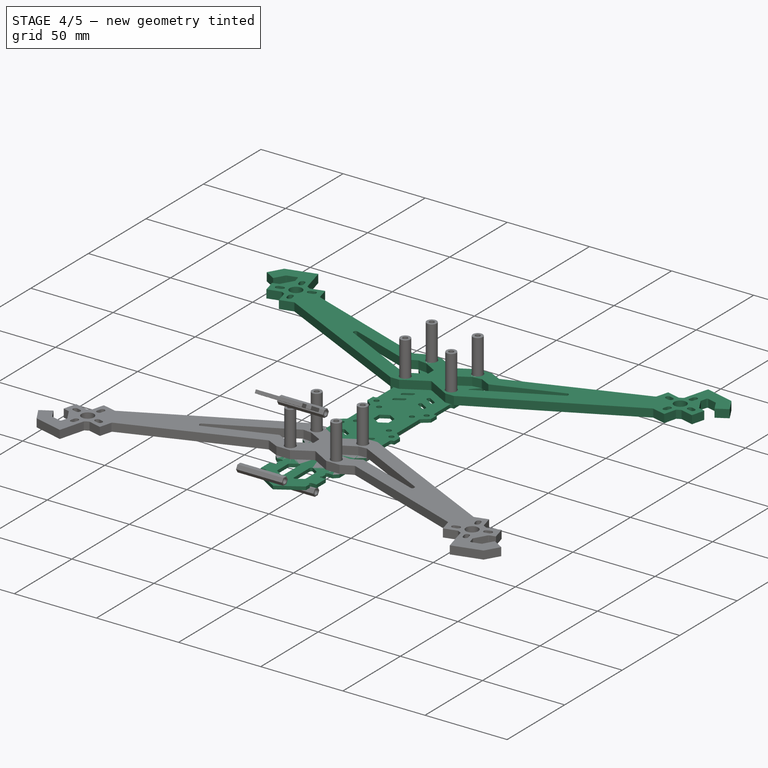
[diagram: stage 4 of 5 — iso view after this stage's code; geometry added in this stage tinted green]
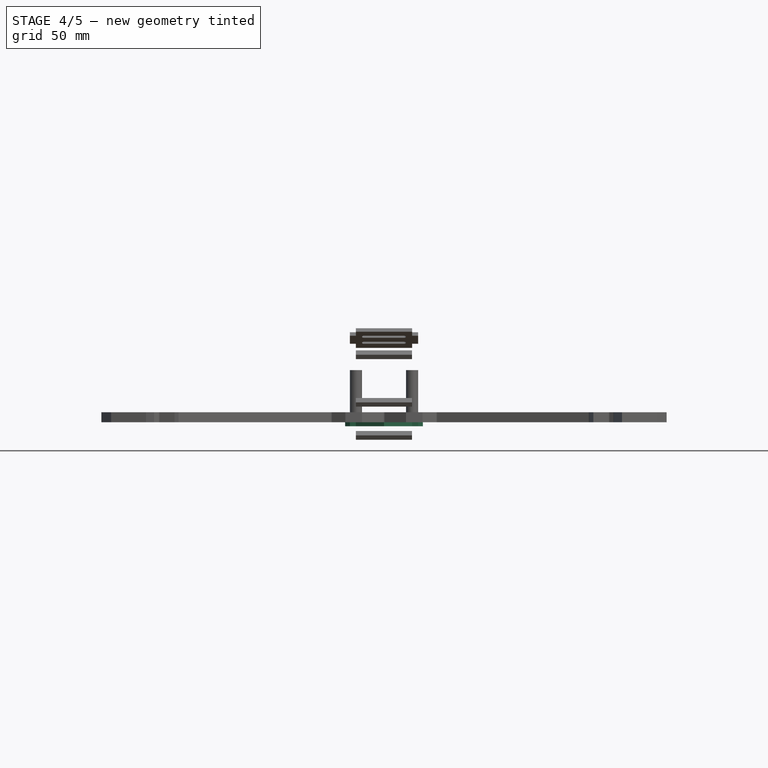
[diagram: stage 4 of 5 — front view after this stage's code; geometry added in this stage tinted green]
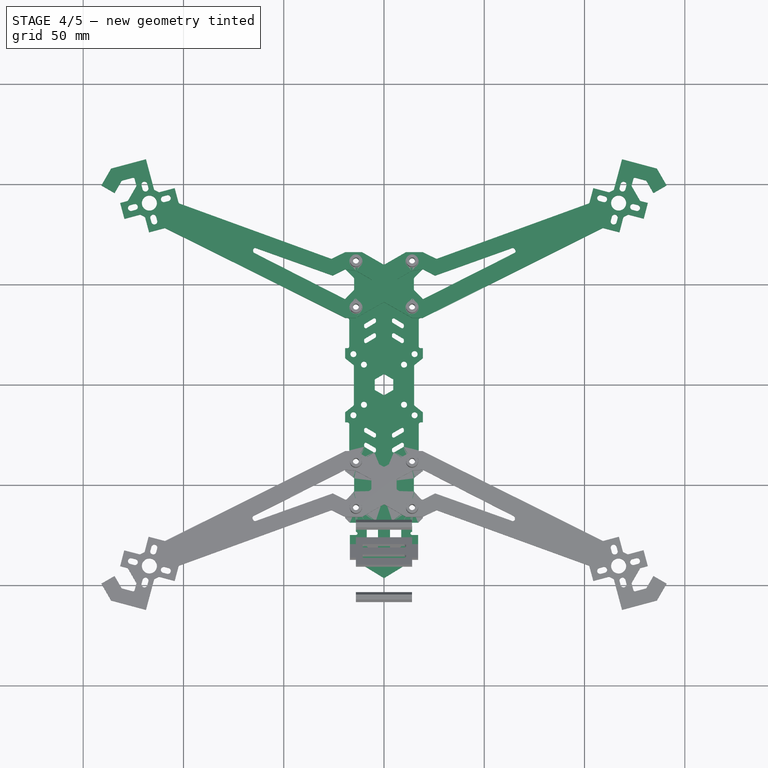
[diagram: stage 4 of 5 — top view after this stage's code; geometry added in this stage tinted green]
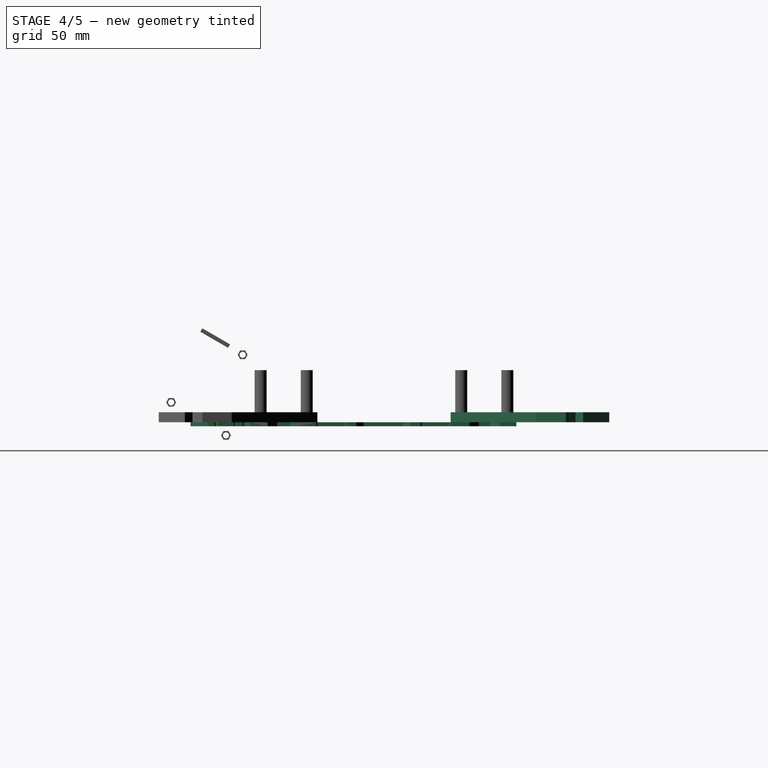
[diagram: stage 4 of 5 — right view after this stage's code; geometry added in this stage tinted green]
FEATURE [Image::ImagePlane] ImagePlane002  label="top"
  Placement = pos=(-66.48,-15.8,-1) rot=(0,0,-1;3.20093rad)
  XSize = 206.286
  YSize = 206.582
FEATURE [Sketcher::SketchObject] Sketch002
  FullyConstrained = false
  sketch-geometry (97):
    g0: LineSegment StartX=-4.75 StartY=2.74241 StartZ=0 EndX=-4.75 EndY=-2.74241 EndZ=0
    g1: LineSegment StartX=-4.75 StartY=-2.74241 StartZ=0 EndX=0 EndY=-5.48483 EndZ=0
    g2: LineSegment StartX=0 StartY=-5.48483 StartZ=0 EndX=4.75 EndY=-2.74241 EndZ=0
    g3: LineSegment StartX=4.75 StartY=-2.74241 StartZ=0 EndX=4.75 EndY=2.74241 EndZ=0
    g4: LineSegment StartX=4.75 StartY=2.74241 StartZ=0 EndX=0 EndY=5.48483 EndZ=0
    g5: LineSegment StartX=0 StartY=5.48483 StartZ=0 EndX=-4.75 EndY=2.74241 EndZ=0
    g6: Circle CenterX=0 CenterY=0 CenterZ=0 NormalX=0 NormalY=0 NormalZ=1 AngleXU=0 Radius=5.48483
    g7: LineSegment StartX=-4.5 StartY=-48.0829 StartZ=0 EndX=-4.5 EndY=-53.2791 EndZ=0
    g8: LineSegment StartX=-4.5 StartY=-53.2791 StartZ=0 EndX=9e-16 EndY=-55.8771 EndZ=0
    g9: LineSegment StartX=9e-16 StartY=-55.8771 StartZ=0 EndX=4.5 EndY=-53.2791 EndZ=0
    g10: LineSegment StartX=4.5 StartY=-53.2791 StartZ=0 EndX=4.5 EndY=-48.0829 EndZ=0
    g11: LineSegment StartX=4.5 StartY=-48.0829 StartZ=0 EndX=9e-16 EndY=-45.4848 EndZ=0
    g12: LineSegment StartX=9e-16 StartY=-45.4848 StartZ=0 EndX=-4.5 EndY=-48.0829 EndZ=0
    g13: Circle CenterX=2e-16 CenterY=-50.681 CenterZ=0 NormalX=0 NormalY=0 NormalZ=1 AngleXU=0 Radius=5.19615
    g14: LineSegment StartX=19.1271 StartY=66.0357 StartZ=0 EndX=19.1271 EndY=57.7262 EndZ=0
    g15: LineSegment StartX=19.1271 StartY=57.7262 StartZ=0 EndX=14.886 EndY=54.4908 EndZ=0
    g16: LineSegment StartX=14.4925 StartY=53.6957 StartZ=0 EndX=14.4925 EndY=47.8448 EndZ=0
    g17: LineSegment StartX=14.8016 StartY=47.122 StartZ=0 EndX=19.1521 EndY=42.9636 EndZ=0
    g18: LineSegment StartX=19.1521 StartY=42.9636 StartZ=0 EndX=19.1521 EndY=33.9 EndZ=0
    g19: LineSegment StartX=18.198 StartY=33.9 StartZ=0 EndX=19.1521 EndY=33.9 EndZ=0
    g20: LineSegment StartX=17.198 StartY=32.9 StartZ=0 EndX=17.198 EndY=19.4 EndZ=0
    g21: LineSegment StartX=18.198 StartY=18.4 StartZ=0 EndX=19.4 EndY=18.4 EndZ=0
    g22: LineSegment StartX=19.4 StartY=18.4 StartZ=0 EndX=19.4 EndY=13.7691 EndZ=0
    g23: LineSegment StartX=19.4 StartY=13.7691 StartZ=0 EndX=15.1796 EndY=10.4304 EndZ=0
    g24: LineSegment StartX=14.8 StartY=9.6461 StartZ=0 EndX=14.8 EndY=-9.6461 EndZ=0
    g25: LineSegment StartX=15.1796 StartY=-10.4304 StartZ=0 EndX=19.4 EndY=-13.7691 EndZ=0
    g26: LineSegment StartX=19.4 StartY=-13.7691 StartZ=0 EndX=19.4 EndY=-18.4 EndZ=0
    g27: LineSegment StartX=19.4 StartY=-18.4 StartZ=0 EndX=18.4 EndY=-18.4 EndZ=0
    g28: LineSegment StartX=17.4 StartY=-19.4 StartZ=0 EndX=17.4 EndY=-32.9 EndZ=0
    g29: LineSegment StartX=18.4 StartY=-33.9 StartZ=0 EndX=19.4 EndY=-33.9 EndZ=0
    g30: LineSegment StartX=19.4 StartY=-33.9 StartZ=0 EndX=19.4 EndY=-42.9 EndZ=0
    g31: LineSegment StartX=19.4 StartY=-42.9 StartZ=0 EndX=15.1858 EndY=-47.2001 EndZ=0
    g32: LineSegment StartX=14.9 StartY=-47.9 StartZ=0 EndX=14.9 EndY=-53.462 EndZ=0
    g33: LineSegment StartX=15.2922 StartY=-54.2561 StartZ=0 EndX=19.4 EndY=-57.4 EndZ=0
    g34: LineSegment StartX=19.4 StartY=-57.4 StartZ=0 EndX=19.4 EndY=-66.9 EndZ=0
    g35: LineSegment StartX=19.4 StartY=-66.9 StartZ=0 EndX=11.1 EndY=-66.9 EndZ=0
    g36: LineSegment StartX=11.1 StartY=-66.9 StartZ=0 EndX=0.98997 EndY=-61.6201 EndZ=0
    g37: LineSegment StartX=-0.98997 StartY=-61.6201 StartZ=0 EndX=-11.1 EndY=-66.9 EndZ=0
    g38: LineSegment StartX=-11.1 StartY=-66.9 StartZ=0 EndX=-19.4 EndY=-66.9 EndZ=0
    g39: LineSegment StartX=-19.4 StartY=-66.9 StartZ=0 EndX=-19.4 EndY=-57.4 EndZ=0
    g40: LineSegment StartX=-19.4 StartY=-57.4 StartZ=0 EndX=-15.2848 EndY=-54.1883 EndZ=0
    g41: LineSegment StartX=-14.9 StartY=-53.4 StartZ=0 EndX=-14.9 EndY=-47.9 EndZ=0
    g42: LineSegment StartX=-15.1858 StartY=-47.2001 StartZ=0 EndX=-19.4 EndY=-42.9 EndZ=0
    g43: LineSegment StartX=-19.4 StartY=-42.9 StartZ=0 EndX=-19.4 EndY=-33.9 EndZ=0
    g44: LineSegment StartX=-19.4 StartY=-33.9 StartZ=0 EndX=-18.4 EndY=-33.9 EndZ=0
    g45: LineSegment StartX=-17.4 StartY=-32.9 StartZ=0 EndX=-17.4 EndY=-19.4 EndZ=0
    g46: LineSegment StartX=-18.4 StartY=-18.4 StartZ=0 EndX=-19.4 EndY=-18.4 EndZ=0
    g47: LineSegment StartX=-19.4 StartY=-18.4 StartZ=0 EndX=-19.4 EndY=-13.7691 EndZ=0
    g48: LineSegment StartX=-19.4 StartY=-13.7691 StartZ=0 EndX=-15.1796 EndY=-10.4304 EndZ=0
    g49: LineSegment StartX=-14.8 StartY=-9.6461 StartZ=0 EndX=-14.8 EndY=9.6461 EndZ=0
    g50: LineSegment StartX=-15.1835 StartY=10.4334 StartZ=0 EndX=-19.4 EndY=13.7354 EndZ=0
    g51: LineSegment StartX=-19.4 StartY=13.7354 StartZ=0 EndX=-19.4 EndY=18.4 EndZ=0
    g52: LineSegment StartX=-19.4 StartY=18.4 StartZ=0 EndX=-18.4 EndY=18.4 EndZ=0
    g53: LineSegment StartX=-17.4 StartY=19.4 StartZ=0 EndX=-17.4 EndY=32.9 EndZ=0
    g54: LineSegment StartX=-18.4 StartY=33.9 StartZ=0 EndX=-19.2811 EndY=33.9 EndZ=0
    g55: LineSegment StartX=-19.2811 StartY=33.9 StartZ=0 EndX=-19.2811 EndY=42.9636 EndZ=0
    g56: LineSegment StartX=-19.2811 StartY=42.9636 StartZ=0 EndX=-15.5493 EndY=47.1823 EndZ=0
    g57: LineSegment StartX=-15.2983 StartY=47.8448 StartZ=0 EndX=-15.2983 EndY=53.6957 EndZ=0
    g58: LineSegment StartX=-15.6031 StartY=54.4145 StartZ=0 EndX=-19.181 EndY=57.8753 EndZ=0
    g59: LineSegment StartX=-19.181 StartY=57.8753 StartZ=0 EndX=-19.181 EndY=66.0357 EndZ=0
    g60: ArcOfCircle CenterX=18.198 CenterY=19.4 CenterZ=0 NormalX=0 NormalY=0 NormalZ=1 AngleXU=0 Radius=1 StartAngle=3.14159 EndAngle=4.71239
    g61: ArcOfCircle CenterX=18.198 CenterY=32.9 CenterZ=0 NormalX=0 NormalY=0 NormalZ=1 AngleXU=0 Radius=1 StartAngle=1.5708 EndAngle=3.14159
    g62: ArcOfCircle CenterX=0 CenterY=-63.5157 CenterZ=0 NormalX=0 NormalY=0 NormalZ=1 AngleXU=0 Radius=2.13853 StartAngle=1.08951 EndAngle=2.05208
    g63: GeomPoint X=0 Y=-61.3771 Z=0
    g64: ArcOfCircle CenterX=-15.9 CenterY=-47.9 CenterZ=0 NormalX=0 NormalY=0 NormalZ=1 AngleXU=0 Radius=1 StartAngle=1.1e-15 EndAngle=0.775314
    g65: ArcOfCircle CenterX=-15.9 CenterY=-53.4 CenterZ=0 NormalX=0 NormalY=0 NormalZ=1 AngleXU=0 Radius=1 StartAngle=5.37508 EndAngle=6.28319
    g66: ArcOfCircle CenterX=15.9 CenterY=-53.462 CenterZ=0 NormalX=0 NormalY=0 NormalZ=1 AngleXU=0 Radius=1 StartAngle=3.14159 EndAngle=4.05913
    g67: ArcOfCircle CenterX=15.9 CenterY=-47.9 CenterZ=0 NormalX=0 NormalY=0 NormalZ=1 AngleXU=0 Radius=1 StartAngle=2.36628 EndAngle=3.14159
    g68: ArcOfCircle CenterX=-18.4 CenterY=-32.9 CenterZ=0 NormalX=0 NormalY=0 NormalZ=1 AngleXU=0 Radius=1 StartAngle=4.71239 EndAngle=6.28319
    g69: ArcOfCircle CenterX=-18.4 CenterY=-19.4 CenterZ=0 NormalX=0 NormalY=0 NormalZ=1 AngleXU=0 Radius=1 StartAngle=-9e-16 EndAngle=1.5708
    g70: ArcOfCircle CenterX=18.4 CenterY=-19.4 CenterZ=0 NormalX=0 NormalY=0 NormalZ=1 AngleXU=0 Radius=1 StartAngle=1.5708 EndAngle=3.14159
    g71: ArcOfCircle CenterX=18.4 CenterY=-32.9 CenterZ=0 NormalX=0 NormalY=0 NormalZ=1 AngleXU=0 Radius=1 StartAngle=3.14159 EndAngle=4.71239
    g72: ArcOfCircle CenterX=-15.8 CenterY=-9.6461 CenterZ=0 NormalX=0 NormalY=0 NormalZ=1 AngleXU=0 Radius=1 StartAngle=5.38167 EndAngle=6.28319
    g73: ArcOfCircle CenterX=15.8 CenterY=-9.6461 CenterZ=0 NormalX=0 NormalY=0 NormalZ=1 AngleXU=0 Radius=1 StartAngle=3.14159 EndAngle=4.0431
    g74: ArcOfCircle CenterX=-15.8 CenterY=9.6461 CenterZ=0 NormalX=0 NormalY=0 NormalZ=1 AngleXU=0 Radius=1 StartAngle=0 EndAngle=0.906449
    g75: ArcOfCircle CenterX=15.8 CenterY=9.6461 CenterZ=0 NormalX=0 NormalY=0 NormalZ=1 AngleXU=0 Radius=1 StartAngle=2.24008 EndAngle=3.14159
    g76: ArcOfCircle CenterX=-18.4 CenterY=19.4 CenterZ=0 NormalX=0 NormalY=0 NormalZ=1 AngleXU=0 Radius=1 StartAngle=4.71239 EndAngle=6.28319
    g77: ArcOfCircle CenterX=-18.4 CenterY=32.9 CenterZ=0 NormalX=0 NormalY=0 NormalZ=1 AngleXU=0 Radius=1 StartAngle=1.6e-15 EndAngle=1.5708
    g78: ArcOfCircle CenterX=-16.2983 CenterY=47.8448 CenterZ=0 NormalX=0 NormalY=0 NormalZ=1 AngleXU=0 Radius=1 StartAngle=5.55895 EndAngle=6.28319
    g79: ArcOfCircle CenterX=-16.2983 CenterY=53.6957 CenterZ=0 NormalX=0 NormalY=0 NormalZ=1 AngleXU=0 Radius=1 StartAngle=-9e-16 EndAngle=0.802034
    g80: ArcOfCircle CenterX=15.4925 CenterY=47.8448 CenterZ=0 NormalX=0 NormalY=0 NormalZ=1 AngleXU=0 Radius=1 StartAngle=3.14159 EndAngle=3.94957
    g81: ArcOfCircle CenterX=15.4925 CenterY=53.6957 CenterZ=0 NormalX=0 NormalY=0 NormalZ=1 AngleXU=0 Radius=1 StartAngle=2.22249 EndAngle=3.14159
    g82: LineSegment StartX=-19.181 StartY=66.0357 StartZ=0 EndX=-11.3804 EndY=66.0357 EndZ=0
    g83: LineSegment StartX=-11.3804 StartY=66.0357 StartZ=0 EndX=0 EndY=59.913 EndZ=0
    g84: LineSegment StartX=0 StartY=59.913 StartZ=0 EndX=10.4981 EndY=66.0357 EndZ=0
    g85: LineSegment StartX=10.4981 StartY=66.0357 StartZ=0 EndX=19.1271 EndY=66.0357 EndZ=0
    g86: LineSegment StartX=0 StartY=45.4848 StartZ=0 EndX=4.5 EndY=48.0829 EndZ=0
    g87: LineSegment StartX=4.5 StartY=48.0829 StartZ=0 EndX=4.5 EndY=53.2791 EndZ=0
    g88: LineSegment StartX=4.5 StartY=53.2791 StartZ=0 EndX=0 EndY=55.8771 EndZ=0
    g89: LineSegment StartX=0 StartY=55.8771 StartZ=0 EndX=-4.5 EndY=53.2791 EndZ=0
    g90: LineSegment StartX=-4.5 StartY=53.2791 StartZ=0 EndX=-4.5 EndY=48.0829 EndZ=0
    g91: LineSegment StartX=-4.5 StartY=48.0829 StartZ=0 EndX=0 EndY=45.4848 EndZ=0
    g92: Circle CenterX=0 CenterY=50.681 CenterZ=0 NormalX=0 NormalY=0 NormalZ=1 AngleXU=0 Radius=5.19615
    g93: Circle CenterX=-13.5096 CenterY=-62.0241 CenterZ=0 NormalX=0 NormalY=0 NormalZ=1 AngleXU=0 Radius=1.76219
    g94: Circle CenterX=14.6178 CenterY=-61.5316 CenterZ=0 NormalX=0 NormalY=0 NormalZ=1 AngleXU=0 Radius=2.03359
    g95: Circle CenterX=13.9611 CenterY=-38.1104 CenterZ=0 NormalX=0 NormalY=0 NormalZ=1 AngleXU=0 Radius=1.46835
    g96: Circle CenterX=-13.8379 CenterY=-38.986 CenterZ=0 NormalX=0 NormalY=0 NormalZ=1 AngleXU=0 Radius=1.78666
  constraints (224):
    c: Coincident(g0,g1)
    c: Coincident(g1,g2)
    c: Coincident(g2,g3)
    c: Coincident(g3,g4)
    c: Coincident(g4,g5)
    c: Coincident(g5,g0)
    c: Equal(g0, g1-g5) x5
    c: PointOnObject(g0,g6)
    c: PointOnObject(g1,g6)
    c: PointOnObject(g2,g6)
    c: PointOnObject(g3,g6)
    c: PointOnObject(g4,g6)
    c: PointOnObject(g5,g6)
    c: Coincident(g6,g-1)
    c: DistanceX(g0,g2) = 9.5
    c: Vertical(g0)
    c: Coincident(g7,g8)
    c: Coincident(g8,g9)
    c: Coincident(g9,g10)
    c: Coincident(g10,g11)
    c: Coincident(g11,g12)
    c: Coincident(g12,g7)
    c: Equal(g7, g8-g12) x5
    c: PointOnObject(g7,g13)
    c: PointOnObject(g8,g13)
    c: PointOnObject(g9,g13)
    c: PointOnObject(g10,g13)
    c: PointOnObject(g11,g13)
    c: PointOnObject(g12,g13)
    c: Vertical(g7)
    c: DistanceX(g7,g9) = 9
    c: DistanceY(g11,g1) = 40
    c: Vertical(g14)
    c: Coincident(g15,g14)
    c: Vertical(g16)
    c: Vertical(g18)
    c: Coincident(g19,g18)
    c: Vertical(g20)
    c: Horizontal(g21)
    c: Coincident(g22,g21)
    c: Vertical(g24)
    c: Vertical(g26)
    c: Horizontal(g27)
    c: Vertical(g28)
    c: Horizontal(g29)
    c: Coincident(g30,g29)
    c: Vertical(g30)
    c: Vertical(g32)
    c: Vertical(g34)
    c: Horizontal(g35)
    c: Coincident(g38,g37)
    c: Horizontal(g38)
    c: Vertical(g39)
    c: Vertical(g41)
    c: Vertical(g43)
    c: Horizontal(g44)
    c: Vertical(g45)
    c: Vertical(g47)
    c: Vertical(g49)
    c: Vertical(g51)
    c: Horizontal(g52)
    c: Vertical(g53)
    c: Vertical(g55)
    c: Vertical(g57)
    c: Coincident(g59,g58)
    c: Vertical(g59)
    c: Coincident(g55,g56)
    c: Coincident(g54,g55)
    c: Horizontal(g54)
    c: Coincident(g51,g52)
    c: Coincident(g50,g51)
    c: Coincident(g47,g48)
    c: Coincident(g46,g47)
    c: Horizontal(g46)
    c: Coincident(g42,g43)
    c: Coincident(g39,g40)
    c: Coincident(g38,g39)
    c: Coincident(g35,g36)
    c: Coincident(g34,g35)
    c: Coincident(g33,g34)
    c: Coincident(g30,g31)
    c: Coincident(g26,g27)
    c: Coincident(g25,g26)
    c: Coincident(g22,g23)
    c: Coincident(g60,g20)
    c: Coincident(g60,g21)
    c: Vertical(g21,g60)
    c: Horizontal(g20,g60)
    c: Coincident(g61,g19)
    c: Coincident(g61,g20)
    c: Horizontal(g20,g61)
    c: Vertical(g61,g19)
    c: Horizontal(g19)
    c: Coincident(g17,g18)
    c: DistanceX(g38,g34) = 38.8
    c: Horizontal(g37,g35)
    c: Horizontal(g39,g33)
    c: Horizontal(g42,g30)
    c: Coincident(g43,g44)
    c: Equal(g44,g29)
    c: DistanceX(g35,g35) = 8.3
    c: DistanceY(g38,g43) = 33
    c: Equal(g35,g38)
    c: Vertical(g39,g42)
    c: Vertical(g33,g30)
    c: Tangent(g36,g62) = -1.5708
    c: Tangent(g37,g62) = -1.5708
    c: PointOnObject(g62,g-2)
    c: Horizontal(g37,g36)
    c: PointOnObject(g63,g62)
    c: PointOnObject(g63,g-2)
    c: DistanceY(g63,g8) = 5.5
    c: DistanceY(g39,g42) = 14.5
    c: Tangent(g41,g64) = -1.5708
    c: Tangent(g42,g64) = -1.5708
    c: Tangent(g40,g65) = -1.5708
    c: Tangent(g41,g65) = -1.5708
    c: Tangent(g32,g66) = -1.5708
    c: Tangent(g33,g66) = -1.5708
    c: Tangent(g31,g67) = -1.5708
    c: Tangent(g32,g67) = -1.5708
    c: Equal(g64,g65)
    c: Equal(g64,g66)
    c: Equal(g64,g67)
    c: Radius(g64) = 1
    c: DistanceX(g41,g32) = 29.8
    c: DistanceX(g41) = -14.9
    c: DistanceY(g41,g41) = 5.5
    c: Horizontal(g41,g32)
    c: Tangent(g44,g68) = -1.5708
    c: Tangent(g45,g68) = -1.5708
    c: Tangent(g45,g69) = -1.5708
    c: Tangent(g46,g69) = -1.5708
    c: Tangent(g27,g70) = -1.5708
    c: Tangent(g28,g70) = -1.5708
    c: Tangent(g28,g71) = -1.5708
    c: Tangent(g29,g71) = -1.5708
    c: Equal(g71,g68)
    c: Equal(g71,g69)
    c: Radius(g71) = 1
    c: Vertical(g43,g46)
    c: DistanceX(g43,g45) = 2
    c: DistanceY(g43,g46) = 15.5
    c: Horizontal(g47,g25)
    c: Tangent(g48,g72) = -1.5708
    c: Tangent(g49,g72) = -1.5708
    c: Tangent(g24,g73) = -1.5708
    c: Tangent(g25,g73) = -1.5708
    c: Tangent(g49,g74) = -1.5708
    c: Tangent(g50,g74) = -1.5708
    c: Tangent(g23,g75) = -1.5708
    c: Tangent(g24,g75) = -1.5708
    c: Equal(g72,g73)
    c: Equal(g72,g75)
    c: Equal(g72,g74)
    c: Radius(g72) = 1
    c: Horizontal(g49,g24)
    c: Horizontal(g49,g24)
    c: Vertical(g47,g50)
    c: Vertical(g25,g22)
    c: Tangent(g52,g76) = -1.5708
    c: Tangent(g53,g76) = -1.5708
    c: Tangent(g53,g77) = -1.5708
    c: Tangent(g54,g77) = -1.5708
    c: Equal(g61,g60)
    c: Radius(g61) = 1
    c: DistanceX(g51,g53) = 2
    c: Horizontal(g55,g17)
    c: Tangent(g56,g78) = -1.5708
    c: Tangent(g57,g78) = -1.5708
    c: Tangent(g57,g79) = -1.5708
    c: Tangent(g58,g79) = -1.5708
    c: Tangent(g16,g80) = -1.5708
    c: Tangent(g17,g80) = -1.5708
    c: Tangent(g15,g81) = -1.5708
    c: Tangent(g16,g81) = -1.5708
    c: Equal(g78,g79)
    c: Equal(g78,g81)
    c: Equal(g78,g80)
    c: Radius(g78) = 1
    c: Horizontal(g57,g16)
    c: Horizontal(g57,g16)
    c: Symmetric(g72,g75,g6)
    c: DistanceX(g49,g24) = 29.6
    c: Horizontal(g46,g27)
    c: Horizontal(g52,g21)
    c: Horizontal(g54,g19)
    c: Equal(g77,g76)
    c: Equal(g76,g60)
    c: DistanceY(g51,g54) = 15.5
    c: DistanceY(g46,g51) = 36.8
    c: Symmetric(g46,g21,g6)
    c: Equal(g27,g46)
    c: Horizontal(g45,g28)
    c: Symmetric(g47,g22,g6)
    c: Symmetric(g64,g66,g13)
    c: DistanceY(g43,g43) = 9
    c: DistanceY(g39,g65) = 4
    c: Coincident(g82,g59)
    c: Horizontal(g82)
    c: Coincident(g83,g82)
    c: PointOnObject(g83,g-2)
    c: Horizontal(g85)
    c: Coincident(g14,g85)
    c: Coincident(g84,g85)
    c: Coincident(g83,g84)
    c: Horizontal(g82,g84)
    c: Coincident(g86,g87)
    c: Coincident(g87,g88)
    c: Coincident(g88,g89)
    c: Coincident(g89,g90)
    c: Coincident(g90,g91)
    c: Coincident(g91,g86)
    c: Equal(g86, g87-g91) x5
    c: PointOnObject(g86,g92)
    c: PointOnObject(g87,g92)
    c: PointOnObject(g88,g92)
    c: PointOnObject(g89,g92)
    c: PointOnObject(g90,g92)
    c: PointOnObject(g91,g92)
    c: PointOnObject(g91,g-2)
    c: PointOnObject(g92,g-2)
    c: DistanceX(g90,g86) = 9
    c: DistanceY(g4,g86) = 40
FEATURE [Sketcher::SketchObject] Sketch003
  FullyConstrained = false
  sketch-geometry (215):
    g0: LineSegment StartX=-4.58993 StartY=2.65 StartZ=0 EndX=-4.58993 EndY=-2.65 EndZ=0
    g1: LineSegment StartX=-4.58993 StartY=-2.65 StartZ=0 EndX=0 EndY=-5.3 EndZ=0
    g2: LineSegment StartX=0 StartY=-5.3 StartZ=0 EndX=4.58993 EndY=-2.65 EndZ=0
    g3: LineSegment StartX=4.58993 StartY=-2.65 StartZ=0 EndX=4.58993 EndY=2.65 EndZ=0
    g4: LineSegment StartX=4.58993 StartY=2.65 StartZ=0 EndX=0 EndY=5.3 EndZ=0
    g5: LineSegment StartX=0 StartY=5.3 StartZ=0 EndX=-4.58993 EndY=2.65 EndZ=0
    g6: Circle CenterX=0 CenterY=0 CenterZ=0 NormalX=0 NormalY=0 NormalZ=1 AngleXU=0 Radius=5.3
    g7: LineSegment StartX=-4.33013 StartY=-48 StartZ=0 EndX=-4.33013 EndY=-53 EndZ=0
    g8: LineSegment StartX=-4.33013 StartY=-53 StartZ=0 EndX=0 EndY=-55.5 EndZ=0
    g9: LineSegment StartX=0 StartY=-55.5 StartZ=0 EndX=4.33013 EndY=-53 EndZ=0
    g10: LineSegment StartX=4.33013 StartY=-53 StartZ=0 EndX=4.33013 EndY=-48 EndZ=0
    g11: LineSegment StartX=4.33013 StartY=-48 StartZ=0 EndX=0 EndY=-45.5 EndZ=0
    g12: LineSegment StartX=0 StartY=-45.5 StartZ=0 EndX=-4.33013 EndY=-48 EndZ=0
    g13: Circle CenterX=0 CenterY=-50.5 CenterZ=0 NormalX=0 NormalY=0 NormalZ=1 AngleXU=0 Radius=5
    g14: LineSegment StartX=-4.33013 StartY=52.3 StartZ=0 EndX=-4.33013 EndY=47.3 EndZ=0
    g15: LineSegment StartX=-4.33013 StartY=47.3 StartZ=0 EndX=0 EndY=44.8 EndZ=0
    g16: LineSegment StartX=0 StartY=44.8 StartZ=0 EndX=4.33013 EndY=47.3 EndZ=0
    g17: LineSegment StartX=4.33013 StartY=47.3 StartZ=0 EndX=4.33013 EndY=52.3 EndZ=0
    g18: LineSegment StartX=4.33013 StartY=52.3 StartZ=0 EndX=0 EndY=54.8 EndZ=0
    g19: LineSegment StartX=0 StartY=54.8 StartZ=0 EndX=-4.33013 EndY=52.3 EndZ=0
    g20: Circle CenterX=-1e-16 CenterY=49.8 CenterZ=0 NormalX=0 NormalY=0 NormalZ=1 AngleXU=0 Radius=5
    g21: Circle CenterX=-14 CenterY=61.5 CenterZ=0 NormalX=0 NormalY=0 NormalZ=1 AngleXU=0 Radius=1.5
    g22: Circle CenterX=-14 CenterY=38.5 CenterZ=0 NormalX=0 NormalY=0 NormalZ=1 AngleXU=0 Radius=1.5
    g23: Circle CenterX=14 CenterY=38.5 CenterZ=0 NormalX=0 NormalY=0 NormalZ=1 AngleXU=0 Radius=1.5
    g24: Circle CenterX=14 CenterY=61.5 CenterZ=0 NormalX=0 NormalY=0 NormalZ=1 AngleXU=0 Radius=1.5
    g25: Circle CenterX=-15.25 CenterY=15.25 CenterZ=0 NormalX=0 NormalY=0 NormalZ=1 AngleXU=0 Radius=1.5
    g26: Circle CenterX=-10 CenterY=10 CenterZ=0 NormalX=0 NormalY=0 NormalZ=1 AngleXU=0 Radius=1.5
    g27: Circle CenterX=10 CenterY=10 CenterZ=0 NormalX=0 NormalY=0 NormalZ=1 AngleXU=0 Radius=1.5
    g28: Circle CenterX=15.25 CenterY=15.25 CenterZ=0 NormalX=0 NormalY=0 NormalZ=1 AngleXU=0 Radius=1.5
    g29: Circle CenterX=-10 CenterY=-10 CenterZ=0 NormalX=0 NormalY=0 NormalZ=1 AngleXU=0 Radius=1.5
    g30: Circle CenterX=10 CenterY=-10 CenterZ=0 NormalX=0 NormalY=0 NormalZ=1 AngleXU=0 Radius=1.5
    g31: Circle CenterX=15.25 CenterY=-15.25 CenterZ=0 NormalX=0 NormalY=0 NormalZ=1 AngleXU=0 Radius=1.5
    g32: Circle CenterX=-15.25 CenterY=-15.25 CenterZ=0 NormalX=0 NormalY=0 NormalZ=1 AngleXU=0 Radius=1.5
    g33: LineSegment StartX=-15.25 StartY=-15.25 StartZ=0 EndX=15.25 EndY=15.25 EndZ=0
    g34: LineSegment StartX=-15.25 StartY=15.25 StartZ=0 EndX=15.25 EndY=-15.25 EndZ=0
    g35: Circle CenterX=-14 CenterY=-38.5 CenterZ=0 NormalX=0 NormalY=0 NormalZ=1 AngleXU=0 Radius=1.5
    g36: Circle CenterX=14 CenterY=-38.5 CenterZ=0 NormalX=0 NormalY=0 NormalZ=1 AngleXU=0 Radius=1.5
    g37: Circle CenterX=14 CenterY=-61.5 CenterZ=0 NormalX=0 NormalY=0 NormalZ=1 AngleXU=0 Radius=1.5
    g38: Circle CenterX=-14 CenterY=-61.5 CenterZ=0 NormalX=0 NormalY=0 NormalZ=1 AngleXU=0 Radius=1.5
    g39: LineSegment StartX=-14 StartY=-61.5 StartZ=0 EndX=14 EndY=-38.5 EndZ=0
    g40: LineSegment StartX=-14 StartY=-38.5 StartZ=0 EndX=14 EndY=-61.5 EndZ=0
    g41: LineSegment StartX=-14 StartY=38.5 StartZ=0 EndX=14 EndY=61.5 EndZ=0
    g42: LineSegment StartX=-14 StartY=61.5 StartZ=0 EndX=14 EndY=38.5 EndZ=0
    g43: LineSegment StartX=-19.4 StartY=-13.8 StartZ=0 EndX=-15.3754 EndY=-10.5809 EndZ=0
    g44: LineSegment StartX=-15 StartY=-9.8 StartZ=0 EndX=-15 EndY=9.2 EndZ=0
    g45: LineSegment StartX=-15.3754 StartY=9.98093 StartZ=0 EndX=-19.4 EndY=13.2 EndZ=0
    g46: LineSegment StartX=15 StartY=9.2 StartZ=0 EndX=15 EndY=-9.8 EndZ=0
    g47: LineSegment StartX=15.3754 StartY=-10.5809 StartZ=0 EndX=19.4 EndY=-13.8 EndZ=0
    g48: LineSegment StartX=15.3754 StartY=9.98093 StartZ=0 EndX=19.4 EndY=13.2 EndZ=0
    g49: ArcOfCircle CenterX=-16 CenterY=9.2 CenterZ=0 NormalX=0 NormalY=0 NormalZ=1 AngleXU=0 Radius=1 StartAngle=9e-16 EndAngle=0.89615
    g50: ArcOfCircle CenterX=-16 CenterY=-9.8 CenterZ=0 NormalX=0 NormalY=0 NormalZ=1 AngleXU=0 Radius=1 StartAngle=5.38704 EndAngle=6.28319
    g51: ArcOfCircle CenterX=16 CenterY=-9.8 CenterZ=0 NormalX=0 NormalY=0 NormalZ=1 AngleXU=0 Radius=1 StartAngle=3.14159 EndAngle=4.03774
    g52: ArcOfCircle CenterX=16 CenterY=9.2 CenterZ=0 NormalX=0 NormalY=0 NormalZ=1 AngleXU=0 Radius=1 StartAngle=2.24544 EndAngle=3.14159
    g53: LineSegment StartX=-19.4 StartY=18.2 StartZ=0 EndX=-19.4 EndY=13.2 EndZ=0
    g54: LineSegment StartX=19.4 StartY=13.2 StartZ=0 EndX=19.4 EndY=18.2 EndZ=0
    g55: LineSegment StartX=-19.4 StartY=18.2 StartZ=0 EndX=-18.3 EndY=18.2 EndZ=0
    g56: LineSegment StartX=-17.3 StartY=19.2 StartZ=0 EndX=-17.3 EndY=32.2 EndZ=0
    g57: LineSegment StartX=-18.3 StartY=33.2 StartZ=0 EndX=-19.4 EndY=33.2 EndZ=0
    g58: LineSegment StartX=-19.4 StartY=33.2 StartZ=0 EndX=-19.4 EndY=42.7 EndZ=0
    g59: LineSegment StartX=19.4 StartY=42.7 StartZ=0 EndX=19.4 EndY=33.2 EndZ=0
    g60: LineSegment StartX=19.4 StartY=33.2 StartZ=0 EndX=18.3 EndY=33.2 EndZ=0
    g61: LineSegment StartX=17.3 StartY=32.2 StartZ=0 EndX=17.3 EndY=19.2 EndZ=0
    g62: LineSegment StartX=18.3 StartY=18.2 StartZ=0 EndX=19.4 EndY=18.2 EndZ=0
    g63: ArcOfCircle CenterX=-18.3 CenterY=19.2 CenterZ=0 NormalX=0 NormalY=0 NormalZ=1 AngleXU=0 Radius=1 StartAngle=4.71239 EndAngle=6.28319
    g64: ArcOfCircle CenterX=18.3 CenterY=19.2 CenterZ=0 NormalX=0 NormalY=0 NormalZ=1 AngleXU=0 Radius=1 StartAngle=3.14159 EndAngle=4.71239
    g65: ArcOfCircle CenterX=-18.3 CenterY=32.2 CenterZ=0 NormalX=0 NormalY=0 NormalZ=1 AngleXU=0 Radius=1 StartAngle=-2.7e-15 EndAngle=1.5708
    g66: ArcOfCircle CenterX=18.3 CenterY=32.2 CenterZ=0 NormalX=0 NormalY=0 NormalZ=1 AngleXU=0 Radius=1 StartAngle=1.5708 EndAngle=3.14159
    g67: LineSegment StartX=-19.4 StartY=-13.8 StartZ=0 EndX=-19.4 EndY=-18.8 EndZ=0
    g68: LineSegment StartX=-19.4 StartY=-18.8 StartZ=0 EndX=-18.3 EndY=-18.8 EndZ=0
    g69: LineSegment StartX=-17.3 StartY=-19.8 StartZ=0 EndX=-17.3 EndY=-32.8 EndZ=0
    g70: LineSegment StartX=-18.3 StartY=-33.8 StartZ=0 EndX=-19.4 EndY=-33.8 EndZ=0
    g71: LineSegment StartX=-19.4 StartY=-33.8 StartZ=0 EndX=-19.4 EndY=-43.05 EndZ=0
    g72: ArcOfCircle CenterX=-18.3 CenterY=-19.8 CenterZ=0 NormalX=0 NormalY=0 NormalZ=1 AngleXU=0 Radius=1 StartAngle=-9e-16 EndAngle=1.5708
    g73: ArcOfCircle CenterX=-18.3 CenterY=-32.8 CenterZ=0 NormalX=0 NormalY=0 NormalZ=1 AngleXU=0 Radius=1 StartAngle=4.71239 EndAngle=6.28319
    g74: LineSegment StartX=19.4 StartY=-13.8 StartZ=0 EndX=19.4 EndY=-18.8 EndZ=0
    g75: LineSegment StartX=19.4 StartY=-18.8 StartZ=0 EndX=18.3 EndY=-18.8 EndZ=0
    g76: LineSegment StartX=17.3 StartY=-19.8 StartZ=0 EndX=17.3 EndY=-32.8 EndZ=0
    g77: LineSegment StartX=18.3 StartY=-33.8 StartZ=0 EndX=19.4 EndY=-33.8 EndZ=0
    g78: LineSegment StartX=19.4 StartY=-33.8 StartZ=0 EndX=19.4 EndY=-43.05 EndZ=0
    g79: ArcOfCircle CenterX=18.3 CenterY=-19.8 CenterZ=0 NormalX=0 NormalY=0 NormalZ=1 AngleXU=0 Radius=1 StartAngle=1.5708 EndAngle=3.14159
    g80: ArcOfCircle CenterX=18.3 CenterY=-32.8 CenterZ=0 NormalX=0 NormalY=0 NormalZ=1 AngleXU=0 Radius=1 StartAngle=3.14159 EndAngle=4.71239
    g81: LineSegment StartX=19.4 StartY=-43.05 StartZ=0 EndX=15.2848 EndY=-46.2617 EndZ=0
    g82: LineSegment StartX=14.9 StartY=-47.05 StartZ=0 EndX=14.9 EndY=-52.85 EndZ=0
    g83: LineSegment StartX=15.1701 StartY=-53.5336 StartZ=0 EndX=19.4 EndY=-58.05 EndZ=0
    g84: LineSegment StartX=19.4 StartY=-58.05 StartZ=0 EndX=19.4 EndY=-66.55 EndZ=0
    g85: LineSegment StartX=-19.4 StartY=-43.05 StartZ=0 EndX=-15.2848 EndY=-46.2617 EndZ=0
    g86: LineSegment StartX=-14.9 StartY=-47.05 StartZ=0 EndX=-14.9 EndY=-52.85 EndZ=0
    g87: LineSegment StartX=-15.1701 StartY=-53.5336 StartZ=0 EndX=-19.4 EndY=-58.05 EndZ=0
    g88: LineSegment StartX=-19.4 StartY=-58.05 StartZ=0 EndX=-19.4 EndY=-66.55 EndZ=0
    g89: ArcOfCircle CenterX=-15.9 CenterY=-47.05 CenterZ=0 NormalX=0 NormalY=0 NormalZ=1 AngleXU=0 Radius=1 StartAngle=1e-16 EndAngle=0.908102
    g90: ArcOfCircle CenterX=-15.9 CenterY=-52.85 CenterZ=0 NormalX=0 NormalY=0 NormalZ=1 AngleXU=0 Radius=1 StartAngle=5.53054 EndAngle=6.28319
    g91: ArcOfCircle CenterX=15.9 CenterY=-52.85 CenterZ=0 NormalX=0 NormalY=0 NormalZ=1 AngleXU=0 Radius=1 StartAngle=3.14159 EndAngle=3.89424
    g92: ArcOfCircle CenterX=15.9 CenterY=-47.05 CenterZ=0 NormalX=0 NormalY=0 NormalZ=1 AngleXU=0 Radius=1 StartAngle=2.23349 EndAngle=3.14159
    g93: LineSegment StartX=-19.4 StartY=42.7 StartZ=0 EndX=-15.1858 EndY=47.0001 EndZ=0
    g94: LineSegment StartX=-14.9 StartY=47.7 StartZ=0 EndX=-14.9 EndY=52.7 EndZ=0
    g95: LineSegment StartX=-15.1858 StartY=53.3999 StartZ=0 EndX=-19.4 EndY=57.7 EndZ=0
    g96: LineSegment StartX=-19.4 StartY=57.7 StartZ=0 EndX=-19.4 EndY=66 EndZ=0
    g97: LineSegment StartX=19.4 StartY=66 StartZ=0 EndX=19.4 EndY=57.7 EndZ=0
    g98: LineSegment StartX=19.4 StartY=57.7 StartZ=0 EndX=15.1858 EndY=53.3999 EndZ=0
    g99: LineSegment StartX=14.9 StartY=52.7 StartZ=0 EndX=14.9 EndY=47.7 EndZ=0
    g100: LineSegment StartX=15.1858 StartY=47.0001 StartZ=0 EndX=19.4 EndY=42.7 EndZ=0
    g101: ArcOfCircle CenterX=15.9 CenterY=52.7 CenterZ=0 NormalX=0 NormalY=0 NormalZ=1 AngleXU=0 Radius=1 StartAngle=2.36628 EndAngle=3.14159
    g102: ArcOfCircle CenterX=15.9 CenterY=47.7 CenterZ=0 NormalX=0 NormalY=0 NormalZ=1 AngleXU=0 Radius=1 StartAngle=3.14159 EndAngle=3.91691
    g103: ArcOfCircle CenterX=-15.9 CenterY=47.7 CenterZ=0 NormalX=0 NormalY=0 NormalZ=1 AngleXU=0 Radius=1 StartAngle=5.50787 EndAngle=6.28319
    g104: ArcOfCircle CenterX=-15.9 CenterY=52.7 CenterZ=0 NormalX=0 NormalY=0 NormalZ=1 AngleXU=0 Radius=1 StartAngle=0 EndAngle=0.775314
    g105: LineSegment StartX=-19.4 StartY=-66.55 StartZ=0 EndX=-17 EndY=-68.85 EndZ=0
    g106: LineSegment StartX=-17 StartY=-68.85 StartZ=0 EndX=-14 EndY=-68.85 EndZ=0
    g107: LineSegment StartX=-14 StartY=-70.45 StartZ=0 EndX=-14 EndY=-73.35 EndZ=0
    g108: LineSegment StartX=-14 StartY=-74.95 StartZ=0 EndX=-17 EndY=-74.95 EndZ=0
    g109: LineSegment StartX=-17 StartY=-74.95 StartZ=0 EndX=-17 EndY=-82.95 EndZ=0
    g110: LineSegment StartX=-17 StartY=-82.95 StartZ=0 EndX=-14 EndY=-82.95 EndZ=0
    g111: LineSegment StartX=-14 StartY=-84.55 StartZ=0 EndX=-14 EndY=-87.95 EndZ=0
    g112: LineSegment StartX=-14 StartY=-87.95 StartZ=0 EndX=0 EndY=-96.5 EndZ=0
    g113: LineSegment StartX=0 StartY=-96.5 StartZ=0 EndX=14 EndY=-87.95 EndZ=0
    g114: LineSegment StartX=14 StartY=-87.95 StartZ=0 EndX=14 EndY=-84.55 EndZ=0
    g115: LineSegment StartX=14 StartY=-82.95 StartZ=0 EndX=17 EndY=-82.95 EndZ=0
    g116: LineSegment StartX=17 StartY=-82.95 StartZ=0 EndX=17 EndY=-74.95 EndZ=0
    g117: LineSegment StartX=17 StartY=-74.95 StartZ=0 EndX=14 EndY=-74.95 EndZ=0
    g118: LineSegment StartX=14 StartY=-70.45 StartZ=0 EndX=14 EndY=-73.35 EndZ=0
    g119: LineSegment StartX=14 StartY=-68.85 StartZ=0 EndX=17 EndY=-68.85 EndZ=0
    g120: LineSegment StartX=17 StartY=-68.85 StartZ=0 EndX=19.4 EndY=-66.55 EndZ=0
    g121: ArcOfCircle CenterX=-14 CenterY=-69.65 CenterZ=0 NormalX=0 NormalY=0 NormalZ=1 AngleXU=0 Radius=0.8 StartAngle=4.71239 EndAngle=7.85398
    g122: ArcOfCircle CenterX=-14 CenterY=-74.15 CenterZ=0 NormalX=0 NormalY=0 NormalZ=1 AngleXU=0 Radius=0.8 StartAngle=4.71239 EndAngle=7.85398
    g123: ArcOfCircle CenterX=-14 CenterY=-83.75 CenterZ=0 NormalX=0 NormalY=0 NormalZ=1 AngleXU=0 Radius=0.8 StartAngle=4.71239 EndAngle=7.85398
    g124: ArcOfCircle CenterX=14 CenterY=-83.75 CenterZ=0 NormalX=0 NormalY=0 NormalZ=1 AngleXU=0 Radius=0.8 StartAngle=1.5708 EndAngle=4.71239
    g125: ArcOfCircle CenterX=14 CenterY=-74.15 CenterZ=0 NormalX=0 NormalY=0 NormalZ=1 AngleXU=0 Radius=0.8 StartAngle=1.5708 EndAngle=4.71239
    g126: ArcOfCircle CenterX=14 CenterY=-69.65 CenterZ=0 NormalX=0 NormalY=0 NormalZ=1 AngleXU=0 Radius=0.8 StartAngle=1.5708 EndAngle=4.71239
    g127: LineSegment StartX=-19.4 StartY=66 StartZ=0 EndX=-11.3 EndY=66 EndZ=0
    g128: LineSegment StartX=-11.3 StartY=66 StartZ=0 EndX=-1.063 EndY=60.277 EndZ=0
    g129: LineSegment StartX=1.063 StartY=60.277 StartZ=0 EndX=11.3 EndY=66 EndZ=0
    g130: LineSegment StartX=11.3 StartY=66 StartZ=0 EndX=19.4 EndY=66 EndZ=0
    g131: ArcOfCircle CenterX=0 CenterY=62.1784 CenterZ=0 NormalX=0 NormalY=0 NormalZ=1 AngleXU=0 Radius=2.17839 StartAngle=4.20262 EndAngle=5.22216
    g132: GeomPoint X=0 Y=50 Z=0
    g133: GeomPoint X=0 Y=60 Z=0
    g134: GeomPoint X=-4.4e-15 Y=-50 Z=0
    g135: LineSegment StartX=-3 StartY=-69 StartZ=0 EndX=-3 EndY=-82.5 EndZ=0
    g136: LineSegment StartX=-4.53 StartY=-83.348 StartZ=0 EndX=-8.13 EndY=-81.098 EndZ=0
    g137: LineSegment StartX=-8.6 StartY=-80.25 StartZ=0 EndX=-8.6 EndY=-71.25 EndZ=0
    g138: LineSegment StartX=-8.13 StartY=-70.402 StartZ=0 EndX=-4.53 EndY=-68.152 EndZ=0
    g139: LineSegment StartX=4.53 StartY=-68.152 StartZ=0 EndX=8.13 EndY=-70.402 EndZ=0
    g140: LineSegment StartX=8.6 StartY=-71.25 StartZ=0 EndX=8.6 EndY=-80.25 EndZ=0
    g141: LineSegment StartX=8.13 StartY=-81.098 StartZ=0 EndX=4.53 EndY=-83.348 EndZ=0
    g142: LineSegment StartX=3 StartY=-82.5 StartZ=0 EndX=3 EndY=-69 EndZ=0
    g143: ArcOfCircle CenterX=-4 CenterY=-69 CenterZ=0 NormalX=0 NormalY=0 NormalZ=1 AngleXU=0 Radius=1 StartAngle=-9.77e-14 EndAngle=2.1294
    g144: ArcOfCircle CenterX=4 CenterY=-69 CenterZ=0 NormalX=0 NormalY=0 NormalZ=1 AngleXU=0 Radius=1 StartAngle=1.0122 EndAngle=3.14159
    g145: ArcOfCircle CenterX=-7.6 CenterY=-71.25 CenterZ=0 NormalX=0 NormalY=0 NormalZ=1 AngleXU=0 Radius=1 StartAngle=2.1294 EndAngle=3.14159
    g146: ArcOfCircle CenterX=-7.6 CenterY=-80.25 CenterZ=0 NormalX=0 NormalY=0 NormalZ=1 AngleXU=0 Radius=1 StartAngle=3.14159 EndAngle=4.15379
    g147: ArcOfCircle CenterX=-4 CenterY=-82.5 CenterZ=0 NormalX=0 NormalY=0 NormalZ=1 AngleXU=0 Radius=1 StartAngle=4.15379 EndAngle=6.28319
    g148: ArcOfCircle CenterX=4 CenterY=-82.5 CenterZ=0 NormalX=0 NormalY=0 NormalZ=1 AngleXU=0 Radius=1 StartAngle=3.14159 EndAngle=5.27099
    g149: ArcOfCircle CenterX=7.6 CenterY=-80.25 CenterZ=0 NormalX=0 NormalY=0 NormalZ=1 AngleXU=0 Radius=1 StartAngle=5.27099 EndAngle=6.28319
    g150: ArcOfCircle CenterX=7.6 CenterY=-71.25 CenterZ=0 NormalX=0 NormalY=0 NormalZ=1 AngleXU=0 Radius=1 StartAngle=3.1e-15 EndAngle=1.0122
    g151: LineSegment StartX=-9.51394 StartY=30.3846 StartZ=0 EndX=-5.21394 EndY=32.9846 EndZ=0
    g152: LineSegment StartX=-4 StartY=32.3 StartZ=0 EndX=-4 EndY=31.5 EndZ=0
    g153: LineSegment StartX=-4.38606 StartY=30.8154 StartZ=0 EndX=-8.68606 EndY=28.2154 EndZ=0
    g154: LineSegment StartX=-9.9 StartY=28.9 StartZ=0 EndX=-9.9 EndY=29.7 EndZ=0
    g155: LineSegment StartX=-9.51394 StartY=22.9846 StartZ=0 EndX=-5.21394 EndY=25.5846 EndZ=0
    g156: LineSegment StartX=-4 StartY=24.9 StartZ=0 EndX=-4 EndY=24.1 EndZ=0
    g157: LineSegment StartX=-4.38606 StartY=23.4154 StartZ=0 EndX=-8.68606 EndY=20.8154 EndZ=0
    g158: LineSegment StartX=-9.9 StartY=21.5 StartZ=0 EndX=-9.9 EndY=22.3 EndZ=0
    g159: LineSegment StartX=5.21394 StartY=32.9846 StartZ=0 EndX=9.51394 EndY=30.3846 EndZ=0
    g160: LineSegment StartX=9.9 StartY=29.7 StartZ=0 EndX=9.9 EndY=28.9 EndZ=0
    g161: LineSegment StartX=8.68606 StartY=28.2154 StartZ=0 EndX=4.38606 EndY=30.8154 EndZ=0
    g162: LineSegment StartX=4 StartY=31.5 StartZ=0 EndX=4 EndY=32.3 EndZ=0
    g163: LineSegment StartX=5.21394 StartY=25.5846 StartZ=0 EndX=9.51394 EndY=22.9846 EndZ=0
    g164: LineSegment StartX=9.9 StartY=22.3 StartZ=0 EndX=9.9 EndY=21.5 EndZ=0
    g165: LineSegment StartX=8.68606 StartY=20.8154 StartZ=0 EndX=4.38606 EndY=23.4154 EndZ=0
    g166: LineSegment StartX=4 StartY=24.1 StartZ=0 EndX=4 EndY=24.9 EndZ=0
    g167: ArcOfCircle CenterX=-9.1 CenterY=29.7 CenterZ=0 NormalX=0 NormalY=0 NormalZ=1 AngleXU=0 Radius=0.8 StartAngle=2.11463 EndAngle=3.14159
    g168: ArcOfCircle CenterX=-9.1 CenterY=28.9 CenterZ=0 NormalX=0 NormalY=0 NormalZ=1 AngleXU=0 Radius=0.8 StartAngle=3.14159 EndAngle=5.25622
    g169: ArcOfCircle CenterX=-4.8 CenterY=31.5 CenterZ=0 NormalX=0 NormalY=0 NormalZ=1 AngleXU=0 Radius=0.8 StartAngle=5.25622 EndAngle=6.28319
    g170: ArcOfCircle CenterX=-4.8 CenterY=32.3 CenterZ=0 NormalX=0 NormalY=0 NormalZ=1 AngleXU=0 Radius=0.8 StartAngle=-2.7e-15 EndAngle=2.11463
    g171: ArcOfCircle CenterX=-4.8 CenterY=24.9 CenterZ=0 NormalX=0 NormalY=0 NormalZ=1 AngleXU=0 Radius=0.8 StartAngle=-9e-16 EndAngle=2.11463
    g172: ArcOfCircle CenterX=-4.8 CenterY=24.1 CenterZ=0 NormalX=0 NormalY=0 NormalZ=1 AngleXU=0 Radius=0.8 StartAngle=5.25622 EndAngle=6.28319
    g173: ArcOfCircle CenterX=-9.1 CenterY=21.5 CenterZ=0 NormalX=0 NormalY=0 NormalZ=1 AngleXU=0 Radius=0.8 StartAngle=3.14159 EndAngle=5.25622
    g174: ArcOfCircle CenterX=-9.1 CenterY=22.3 CenterZ=0 NormalX=0 NormalY=0 NormalZ=1 AngleXU=0 Radius=0.8 StartAngle=2.11463 EndAngle=3.14159
    g175: ArcOfCircle CenterX=4.8 CenterY=24.9 CenterZ=0 NormalX=0 NormalY=0 NormalZ=1 AngleXU=0 Radius=0.8 StartAngle=1.02696 EndAngle=3.14159
    g176: ArcOfCircle CenterX=9.1 CenterY=22.3 CenterZ=0 NormalX=0 NormalY=0 NormalZ=1 AngleXU=0 Radius=0.8 StartAngle=-1.8e-15 EndAngle=1.02696
    g177: ArcOfCircle CenterX=9.1 CenterY=21.5 CenterZ=0 NormalX=0 NormalY=0 NormalZ=1 AngleXU=0 Radius=0.8 StartAngle=4.16856 EndAngle=6.28319
    g178: ArcOfCircle CenterX=4.8 CenterY=24.1 CenterZ=0 NormalX=0 NormalY=0 NormalZ=1 AngleXU=0 Radius=0.8 StartAngle=3.14159 EndAngle=4.16856
    g179: ArcOfCircle CenterX=4.8 CenterY=32.3 CenterZ=0 NormalX=0 NormalY=0 NormalZ=1 AngleXU=0 Radius=0.8 StartAngle=1.02696 EndAngle=3.14159
    g180: ArcOfCircle CenterX=4.8 CenterY=31.5 CenterZ=0 NormalX=0 NormalY=0 NormalZ=1 AngleXU=0 Radius=0.8 StartAngle=3.14159 EndAngle=4.16856
    g181: ArcOfCircle CenterX=9.1 CenterY=28.9 CenterZ=0 NormalX=0 NormalY=0 NormalZ=1 AngleXU=0 Radius=0.8 StartAngle=4.16856 EndAngle=6.28319
    g182: ArcOfCircle CenterX=9.1 CenterY=29.7 CenterZ=0 NormalX=0 NormalY=0 NormalZ=1 AngleXU=0 Radius=0.8 StartAngle=0 EndAngle=1.02696
    g183: LineSegment StartX=-8.6979 StartY=-21.6084 StartZ=0 EndX=-4.3979 EndY=-24.1084 EndZ=0
    g184: LineSegment StartX=-4 StartY=-24.8 StartZ=0 EndX=-4 EndY=-25.6 EndZ=0
    g185: LineSegment StartX=-5.2021 StartY=-26.2916 StartZ=0 EndX=-9.5021 EndY=-23.7916 EndZ=0
    g186: LineSegment StartX=-9.9 StartY=-23.1 StartZ=0 EndX=-9.9 EndY=-22.3 EndZ=0
    g187: LineSegment StartX=-8.6979 StartY=-29.0084 StartZ=0 EndX=-4.3979 EndY=-31.5084 EndZ=0
    g188: LineSegment StartX=-4 StartY=-32.2 StartZ=0 EndX=-4 EndY=-33 EndZ=0
    g189: LineSegment StartX=-5.2021 StartY=-33.6916 StartZ=0 EndX=-9.5021 EndY=-31.1916 EndZ=0
    g190: LineSegment StartX=-9.9 StartY=-30.5 StartZ=0 EndX=-9.9 EndY=-29.7 EndZ=0
    g191: LineSegment StartX=4.3979 StartY=-31.5084 StartZ=0 EndX=8.6979 EndY=-29.0084 EndZ=0
    g192: LineSegment StartX=9.9 StartY=-29.7 StartZ=0 EndX=9.9 EndY=-30.5 EndZ=0
    g193: LineSegment StartX=9.5021 StartY=-31.1916 StartZ=0 EndX=5.2021 EndY=-33.6916 EndZ=0
    g194: LineSegment StartX=4 StartY=-33 StartZ=0 EndX=4 EndY=-32.2 EndZ=0
    g195: LineSegment StartX=4.3979 StartY=-24.1084 StartZ=0 EndX=8.6979 EndY=-21.6084 EndZ=0
    g196: LineSegment StartX=9.9 StartY=-22.3 StartZ=0 EndX=9.9 EndY=-23.1 EndZ=0
    g197: LineSegment StartX=9.5021 StartY=-23.7916 StartZ=0 EndX=5.2021 EndY=-26.2916 EndZ=0
    g198: LineSegment StartX=4 StartY=-25.6 StartZ=0 EndX=4 EndY=-24.8 EndZ=0
    g199: ArcOfCircle CenterX=-9.1 CenterY=-22.3 CenterZ=0 NormalX=0 NormalY=0 NormalZ=1 AngleXU=0 Radius=0.8 StartAngle=1.04417 EndAngle=3.14159
    g200: ArcOfCircle CenterX=-4.8 CenterY=-24.8 CenterZ=0 NormalX=0 NormalY=0 NormalZ=1 AngleXU=0 Radius=0.8 StartAngle=6e-16 EndAngle=1.04417
    g201: ArcOfCircle CenterX=-4.8 CenterY=-25.6 CenterZ=0 NormalX=0 NormalY=0 NormalZ=1 AngleXU=0 Radius=0.8 StartAngle=4.18576 EndAngle=6.28319
    g202: ArcOfCircle CenterX=-9.1 CenterY=-23.1 CenterZ=0 NormalX=0 NormalY=0 NormalZ=1 AngleXU=0 Radius=0.8 StartAngle=3.14159 EndAngle=4.18576
    g203: ArcOfCircle CenterX=-9.1 CenterY=-29.7 CenterZ=0 NormalX=0 NormalY=0 NormalZ=1 AngleXU=0 Radius=0.8 StartAngle=1.04417 EndAngle=3.14159
    g204: ArcOfCircle CenterX=-4.8 CenterY=-32.2 CenterZ=0 NormalX=0 NormalY=0 NormalZ=1 AngleXU=0 Radius=0.8 StartAngle=1e-15 EndAngle=1.04417
    g205: ArcOfCircle CenterX=-4.8 CenterY=-33 CenterZ=0 NormalX=0 NormalY=0 NormalZ=1 AngleXU=0 Radius=0.8 StartAngle=4.18576 EndAngle=6.28319
    g206: ArcOfCircle CenterX=-9.1 CenterY=-30.5 CenterZ=0 NormalX=0 NormalY=0 NormalZ=1 AngleXU=0 Radius=0.8 StartAngle=3.14159 EndAngle=4.18576
    g207: ArcOfCircle CenterX=4.8 CenterY=-33 CenterZ=0 NormalX=0 NormalY=0 NormalZ=1 AngleXU=0 Radius=0.8 StartAngle=3.14159 EndAngle=5.23902
    g208: ArcOfCircle CenterX=9.1 CenterY=-30.5 CenterZ=0 NormalX=0 NormalY=0 NormalZ=1 AngleXU=0 Radius=0.8 StartAngle=5.23902 EndAngle=6.28319
    g209: ArcOfCircle CenterX=4.8 CenterY=-32.2 CenterZ=0 NormalX=0 NormalY=0 NormalZ=1 AngleXU=0 Radius=0.8 StartAngle=2.09742 EndAngle=3.14159
    g210: ArcOfCircle CenterX=9.1 CenterY=-29.7 CenterZ=0 NormalX=0 NormalY=0 NormalZ=1 AngleXU=0 Radius=0.8 StartAngle=-1.8e-15 EndAngle=2.09742
    g211: ArcOfCircle CenterX=9.1 CenterY=-23.1 CenterZ=0 NormalX=0 NormalY=0 NormalZ=1 AngleXU=0 Radius=0.8 StartAngle=5.23902 EndAngle=6.28319
    g212: ArcOfCircle CenterX=4.8 CenterY=-25.6 CenterZ=0 NormalX=0 NormalY=0 NormalZ=1 AngleXU=0 Radius=0.8 StartAngle=3.14159 EndAngle=5.23902
    g213: ArcOfCircle CenterX=4.8 CenterY=-24.8 CenterZ=0 NormalX=0 NormalY=0 NormalZ=1 AngleXU=0 Radius=0.8 StartAngle=2.09742 EndAngle=3.14159
    g214: ArcOfCircle CenterX=9.1 CenterY=-22.3 CenterZ=0 NormalX=0 NormalY=0 NormalZ=1 AngleXU=0 Radius=0.8 StartAngle=8e-16 EndAngle=2.09742
  constraints (560):
    c: Coincident(g0,g1)
    c: Coincident(g1,g2)
    c: Coincident(g2,g3)
    c: Coincident(g3,g4)
    c: Coincident(g4,g5)
    c: Coincident(g5,g0)
    c: Equal(g0, g1-g5) x5
    c: PointOnObject(g0,g6)
    c: PointOnObject(g1,g6)
    c: PointOnObject(g2,g6)
    c: PointOnObject(g3,g6)
    c: PointOnObject(g4,g6)
    c: PointOnObject(g5,g6)
    c: Coincident(g6,g-1)
    c: Coincident(g7,g8)
    c: Coincident(g8,g9)
    c: Coincident(g9,g10)
    c: Coincident(g10,g11)
    c: Coincident(g11,g12)
    c: Coincident(g12,g7)
    c: Equal(g7, g8-g12) x5
    c: PointOnObject(g7,g13)
    c: PointOnObject(g8,g13)
    c: PointOnObject(g9,g13)
    c: PointOnObject(g10,g13)
    c: PointOnObject(g11,g13)
    c: PointOnObject(g12,g13)
    c: Coincident(g14,g15)
    c: Coincident(g15,g16)
    c: Coincident(g16,g17)
    c: Coincident(g17,g18)
    c: Coincident(g18,g19)
    c: Coincident(g19,g14)
    c: Equal(g14, g15-g19) x5
    c: PointOnObject(g14,g20)
    c: PointOnObject(g15,g20)
    c: PointOnObject(g16,g20)
    c: PointOnObject(g17,g20)
    c: PointOnObject(g18,g20)
    c: PointOnObject(g19,g20)
    c: Vertical(g7)
    c: Vertical(g3)
    c: Horizontal(g21,g24)
    c: Horizontal(g22,g23)
    c: Vertical(g23,g24)
    c: Vertical(g22,g21)
    c: Equal(g22,g23)
    c: Equal(g22,g24)
    c: Equal(g22,g21)
    c: Diameter(g22) = 3
    c: Equal(g32,g29)
    c: Equal(g32,g30)
    c: Equal(g32,g31)
    c: Equal(g32,g27)
    c: Equal(g32,g28)
    c: Equal(g32,g26)
    c: Equal(g32,g25)
    c: Diameter(g32) = 3
    c: Coincident(g33,g32)
    c: Coincident(g33,g28)
    c: PointOnObject(g27,g33)
    c: PointOnObject(g6,g33)
    c: PointOnObject(g29,g33)
    c: Coincident(g34,g25)
    c: Coincident(g34,g31)
    c: PointOnObject(g30,g34)
    c: PointOnObject(g26,g34)
    c: Horizontal(g29,g30)
    c: Horizontal(g32,g31)
    c: Horizontal(g25,g28)
    c: Horizontal(g26,g27)
    c: Vertical(g27,g30)
    c: Vertical(g29,g26)
    c: Vertical(g25,g32)
    c: PointOnObject(g6,g34)
    c: DistanceX(g26,g27) = 20
    c: DistanceX(g25,g28) = 30.5
    c: Equal(g36,g35)
    c: Equal(g36,g38)
    c: Equal(g36,g37)
    c: Diameter(g36) = 3
    c: Horizontal(g35,g36)
    c: Horizontal(g38,g37)
    c: Vertical(g37,g36)
    c: Vertical(g38,g35)
    c: Coincident(g39,g38)
    c: Coincident(g39,g36)
    c: Coincident(g40,g35)
    c: Coincident(g40,g37)
    c: DistanceX(g38,g37) = 28
    c: DistanceY(g37,g36) = 23
    c: DistanceX(g38) = -14
    c: Coincident(g41,g22)
    c: Coincident(g41,g24)
    c: Coincident(g42,g21)
    c: Coincident(g42,g23)
    c: DistanceX(g22,g23) = 28
    c: DistanceY(g23,g24) = 23
    c: Vertical(g44)
    c: Vertical(g46)
    c: Tangent(g44,g49) = -1.5708
    c: Tangent(g45,g49) = -1.5708
    c: Tangent(g43,g50) = -1.5708
    c: Tangent(g44,g50) = -1.5708
    c: Tangent(g46,g51) = -1.5708
    c: Tangent(g47,g51) = -1.5708
    c: Tangent(g46,g52) = -1.5708
    c: Tangent(g48,g52) = 1.5708
    c: Horizontal(g44,g46)
    c: Horizontal(g44,g46)
    c: DistanceX(g44,g46) = 30
    c: DistanceX(g44) = -15
    c: Equal(g50,g49)
    c: Equal(g50,g52)
    c: Equal(g50,g51)
    c: Radius(g50) = 1
    c: DistanceY(g50,g49) = 19
    c: DistanceY(g44) = -9.8
    c: Vertical(g53)
    c: Coincident(g54,g48)
    c: Vertical(g54)
    c: Coincident(g55,g53)
    c: Horizontal(g55)
    c: Vertical(g56)
    c: Horizontal(g57)
    c: Vertical(g58)
    c: Vertical(g59)
    c: Horizontal(g60)
    c: Vertical(g61)
    c: Coincident(g62,g54)
    c: Horizontal(g62)
    c: Coincident(g59,g60)
    c: Coincident(g57,g58)
    c: Tangent(g55,g63) = -1.5708
    c: Tangent(g56,g63) = -1.5708
    c: Tangent(g61,g64) = -1.5708
    c: Tangent(g62,g64) = -1.5708
    c: Equal(g64,g63)
    c: Radius(g64) = 1
    c: DistanceX(g56,g61) = 34.6
    c: DistanceX(g53,g56) = 2.1
    c: Coincident(g45,g53)
    c: DistanceX(g45,g48) = 38.8
    c: Horizontal(g45,g48)
    c: Tangent(g56,g65) = -1.5708
    c: Tangent(g57,g65) = -1.5708
    c: Tangent(g60,g66) = -1.5708
    c: Tangent(g61,g66) = -1.5708
    c: Equal(g65,g66)
    c: Equal(g66,g64)
    c: Horizontal(g56,g61)
    c: DistanceY(g53,g57) = 15
    c: DistanceY(g44,g45) = 4
    c: DistanceX(g45) = -19.4
    c: Horizontal(g53,g54)
    c: DistanceY(g53,g53) = 5
    c: Vertical(g45,g43)
    c: Vertical(g48,g47)
    c: DistanceY(g43,g44) = 4
    c: Horizontal(g43,g47)
    c: Coincident(g67,g43)
    c: Vertical(g67)
    c: Coincident(g68,g67)
    c: Vertical(g69)
    c: Vertical(g71)
    c: Coincident(g70,g71)
    c: Horizontal(g70)
    c: Tangent(g68,g72) = 1.5708
    c: Tangent(g69,g72) = 1.5708
    c: Tangent(g69,g73) = 1.5708
    c: Tangent(g70,g73) = 1.5708
    c: Equal(g73,g72)
    c: Radius(g73) = 1
    c: Horizontal(g68)
    c: DistanceX(g67,g69) = 2.1
    c: DistanceY(g67,g67) = 5
    c: DistanceY(g70,g67) = 15
    c: Vertical(g70,g67)
    c: Coincident(g74,g47)
    c: Vertical(g74)
    c: Coincident(g75,g74)
    c: Horizontal(g75)
    c: Vertical(g76)
    c: Vertical(g78)
    c: Horizontal(g77)
    c: Tangent(g75,g79) = -1.5708
    c: Tangent(g76,g79) = -1.5708
    c: Tangent(g76,g80) = -1.5708
    c: Tangent(g77,g80) = -1.5708
    c: Equal(g80,g79)
    c: Equal(g79,g72)
    c: DistanceX(g76,g74) = 2.1
    c: Horizontal(g67,g74)
    c: Horizontal(g70,g77)
    c: Coincident(g77,g78)
    c: Vertical(g77,g74)
    c: Coincident(g81,g78)
    c: Vertical(g82)
    c: Vertical(g84)
    c: Coincident(g85,g71)
    c: Vertical(g86)
    c: Coincident(g83,g84)
    c: Coincident(g88,g87)
    c: Vertical(g88)
    c: Tangent(g85,g89) = 1.5708
    c: Tangent(g86,g89) = 1.5708
    c: Tangent(g86,g90) = 1.5708
    c: Tangent(g87,g90) = 1.5708
    c: Tangent(g82,g91) = -1.5708
    c: Tangent(g83,g91) = -1.5708
    c: Tangent(g81,g92) = -1.5708
    c: Tangent(g82,g92) = -1.5708
    c: Equal(g89,g90)
    c: Equal(g89,g91)
    c: Equal(g89,g92)
    c: Radius(g89) = 1
    c: Horizontal(g86,g82)
    c: Horizontal(g86,g82)
    c: DistanceY(g86,g86) = 5.8
    c: Vertical(g87,g71)
    c: DistanceY(g71,g71) = 9.25
    c: Horizontal(g71,g78)
    c: DistanceY(g87,g71) = 15
    c: DistanceY(g89,g71) = 4
    c: DistanceX(g71,g86) = 4.5
    c: DistanceX(g82,g78) = 4.5
    c: Vertical(g78,g83)
    c: Horizontal(g87,g83)
    c: Coincident(g93,g58)
    c: Vertical(g94)
    c: Vertical(g96)
    c: Vertical(g97)
    c: Vertical(g99)
    c: Coincident(g100,g59)
    c: Coincident(g95,g96)
    c: Coincident(g97,g98)
    c: Tangent(g98,g101) = -1.5708
    c: Tangent(g99,g101) = -1.5708
    c: Tangent(g99,g102) = -1.5708
    c: Tangent(g100,g102) = -1.5708
    c: Tangent(g93,g103) = -1.5708
    c: Tangent(g94,g103) = -1.5708
    c: Tangent(g94,g104) = -1.5708
    c: Tangent(g95,g104) = -1.5708
    c: Equal(g103,g104)
    c: Equal(g103,g101)
    c: Equal(g103,g102)
    c: Radius(g103) = 1
    c: Horizontal(g94,g99)
    c: Horizontal(g94,g99)
    c: DistanceX(g57,g56) = 2.1
    c: DistanceY(g58,g58) = 9.5
    c: Horizontal(g58,g59)
    c: DistanceY(g58,g95) = 15
    c: DistanceY(g94,g94) = 5
    c: DistanceX(g61,g59) = 2.1
    c: DistanceX(g58,g94) = 4.5
    c: DistanceX(g99,g59) = 4.5
    c: DistanceY(g104,g95) = 5
    c: Vertical(g95,g58)
    c: Vertical(g97,g59)
    c: Horizontal(g95,g97)
    c: Coincident(g105,g88)
    c: Coincident(g106,g105)
    c: Horizontal(g106)
    c: Horizontal(g108)
    c: Coincident(g109,g108)
    c: Vertical(g109)
    c: Horizontal(g110)
    c: Vertical(g111)
    c: Coincident(g112,g111)
    c: Coincident(g113,g112)
    c: Coincident(g114,g113)
    c: Vertical(g114)
    c: Horizontal(g115)
    c: Coincident(g116,g115)
    c: Vertical(g116)
    c: Coincident(g117,g116)
    c: Horizontal(g117)
    c: Vertical(g118)
    c: Horizontal(g119)
    c: Coincident(g120,g119)
    c: Coincident(g120,g84)
    c: Vertical(g107)
    c: Coincident(g121,g106)
    c: Coincident(g121,g107)
    c: Coincident(g122,g107)
    c: Coincident(g122,g108)
    c: Coincident(g123,g110)
    c: Coincident(g123,g111)
    c: Coincident(g124,g114)
    c: Coincident(g124,g115)
    c: Coincident(g125,g117)
    c: Coincident(g125,g118)
    c: Coincident(g126,g119)
    c: Coincident(g126,g118)
    c: Coincident(g109,g110)
    c: Vertical(g119,g126)
    c: Vertical(g126,g118)
    c: Vertical(g118,g125)
    c: Vertical(g125,g117)
    c: Vertical(g124,g114)
    c: Vertical(g114,g115)
    c: Vertical(g111,g123)
    c: Vertical(g123,g110)
    c: Vertical(g108,g122)
    c: Vertical(g122,g107)
    c: Vertical(g107,g106)
    c: Vertical(g121,g107)
    c: Equal(g121,g126)
    c: Equal(g121,g125)
    c: Equal(g121,g124)
    c: Equal(g121,g123)
    c: Equal(g121,g122)
    c: Radius(g121) = 0.8
    c: DistanceX(g107,g118) = 28
    c: DistanceX(g107) = -14
    c: Vertical(g107,g111)
    c: Vertical(g118,g115)
    c: DistanceY(g109,g109) = 8
    c: Horizontal(g108,g117)
    c: Horizontal(g110,g115)
    c: DistanceY(g108,g105) = 6.1
    c: DistanceY(g112,g96) = 162.5
    c: DistanceY(g112) = -96.5
    c: DistanceY(g88,g88) = 8.5
    c: DistanceY(g105,g88) = 2.3
    c: DistanceX(g88,g105) = 2.4
    c: Vertical(g105,g108)
    c: DistanceX(g119,g84) = 2.4
    c: Horizontal(g106,g119)
    c: Horizontal(g84,g88)
    c: Vertical(g116,g119)
    c: Horizontal(g111,g113)
    c: DistanceY(g111,g110) = 5
    c: PointOnObject(g112,g-2)
    c: Coincident(g127,g96)
    c: Horizontal(g127)
    c: Coincident(g130,g129)
    c: Coincident(g130,g97)
    c: Horizontal(g130)
    c: DistanceX(g127,g127) = 8.1
    c: Coincident(g127,g128)
    c: Tangent(g128,g131) = -1.5708
    c: Tangent(g129,g131) = -1.5708
    c: Horizontal(g128,g129)
    c: Horizontal(g127,g129)
    c: PointOnObject(g131,g-2)
    c: DistanceY(g32,g25) = 30.5
    c: PointOnObject(g132,g41)
    c: PointOnObject(g132,g42)
    c: PointOnObject(g132,g-2)
    c: PointOnObject(g18,g-2)
    c: Vertical(g14)
    c: PointOnObject(g133,g131)
    c: PointOnObject(g133,g-2)
    c: DistanceY(g18,g133) = 5.2
    c: DistanceY(g15,g18) = 10
    c: DistanceY(g1,g4) = 10.6
    c: DistanceY(g8,g11) = 10
    c: DistanceY(g112,g8) = 41
    c: DistanceY(g133,g127) = 6
    c: PointOnObject(g13,g-2)
    c: PointOnObject(g134,g39)
    c: PointOnObject(g134,g40)
    c: DistanceY(g21,g96) = 4.5
    c: Vertical(g135)
    c: Vertical(g137)
    c: Vertical(g140)
    c: Vertical(g142)
    c: Tangent(g135,g143) = 1.5708
    c: Tangent(g138,g143) = 1.5708
    c: Tangent(g139,g144) = 1.5708
    c: Tangent(g142,g144) = 1.5708
    c: Tangent(g137,g145) = 1.5708
    c: Tangent(g138,g145) = 1.5708
    c: Tangent(g136,g146) = 1.5708
    c: Tangent(g137,g146) = 1.5708
    c: Tangent(g135,g147) = 1.5708
    c: Tangent(g136,g147) = 1.5708
    c: Tangent(g141,g148) = 1.5708
    c: Tangent(g142,g148) = 1.5708
    c: Tangent(g140,g149) = 1.5708
    c: Tangent(g141,g149) = 1.5708
    c: Tangent(g139,g150) = 1.5708
    c: Tangent(g140,g150) = 1.5708
    c: Equal(g145,g143)
    c: Equal(g145,g144)
    c: Equal(g145,g150)
    c: Equal(g145,g149)
    c: Equal(g145,g148)
    c: Equal(g145,g147)
    c: Equal(g145,g146)
    c: Radius(g145) = 1
    c: Horizontal(g143,g144)
    c: Horizontal(g145,g150)
    c: Horizontal(g146,g149)
    c: Horizontal(g148,g147)
    c: DistanceX(g135,g142) = 6
    c: DistanceX(g135) = -3
    c: DistanceX(g142,g140) = 5.6
    c: DistanceX(g137,g135) = 5.6
    c: DistanceY(g135,g135) = 13.5
    c: DistanceY(g137,g137) = 9
    c: DistanceY(g145,g143) = 2.25
    c: DistanceY(g135) = -69
    c: Vertical(g152)
    c: Vertical(g154)
    c: Vertical(g156)
    c: Vertical(g158)
    c: Vertical(g160)
    c: Vertical(g162)
    c: Vertical(g164)
    c: Vertical(g166)
    c: Tangent(g151,g167) = 1.5708
    c: Tangent(g154,g167) = 1.5708
    c: Tangent(g153,g168) = 1.5708
    c: Tangent(g154,g168) = 1.5708
    c: Tangent(g152,g169) = 1.5708
    c: Tangent(g153,g169) = 1.5708
    c: Tangent(g151,g170) = 1.5708
    c: Tangent(g152,g170) = 1.5708
    c: Tangent(g155,g171) = 1.5708
    c: Tangent(g156,g171) = 1.5708
    c: Tangent(g156,g172) = 1.5708
    c: Tangent(g157,g172) = 1.5708
    c: Tangent(g157,g173) = 1.5708
    c: Tangent(g158,g173) = 1.5708
    c: Tangent(g155,g174) = 1.5708
    c: Tangent(g158,g174) = 1.5708
    c: Tangent(g163,g175) = 1.5708
    c: Tangent(g166,g175) = 1.5708
    c: Tangent(g163,g176) = 1.5708
    c: Tangent(g164,g176) = 1.5708
    c: Tangent(g164,g177) = 1.5708
    c: Tangent(g165,g177) = 1.5708
    c: Tangent(g165,g178) = 1.5708
    c: Tangent(g166,g178) = 1.5708
    c: Tangent(g159,g179) = 1.5708
    c: Tangent(g162,g179) = 1.5708
    c: Tangent(g161,g180) = 1.5708
    c: Tangent(g162,g180) = 1.5708
    c: Tangent(g160,g181) = 1.5708
    c: Tangent(g161,g181) = 1.5708
    c: Tangent(g159,g182) = 1.5708
    c: Tangent(g160,g182) = 1.5708
    c: Equal(g170,g169)
    c: Equal(g170,g168)
    c: Equal(g170,g167)
    c: Equal(g170,g174)
    c: Equal(g170,g173)
    c: Equal(g170,g172)
    c: Equal(g170,g171)
    c: Equal(g170,g178)
    c: Equal(g170,g175)
    c: Equal(g170,g176)
    c: Equal(g170,g177)
    c: Equal(g170,g181)
    c: Equal(g170,g180)
    c: Equal(g170,g179)
    c: Equal(g170,g182)
    c: Radius(g170) = 0.8
    c: DistanceX(g154,g152) = 5.9
    c: Vertical(g158,g154)
    c: Vertical(g152,g156)
    c: Vertical(g162,g166)
    c: Vertical(g160,g164)
    c: Horizontal(g169,g180)
    c: Horizontal(g170,g179)
    c: Horizontal(g171,g175)
    c: Horizontal(g172,g178)
    c: Horizontal(g173,g177)
    c: DistanceX(g158,g164) = 19.8
    c: DistanceX(g158) = -9.9
    c: DistanceY(g168,g167) = 0.8
    c: DistanceY(g169,g170) = 0.8
    c: DistanceY(g167,g169) = 1.8
    c: DistanceY(g172,g171) = 0.8
    c: DistanceY(g173,g174) = 0.8
    c: DistanceY(g174,g172) = 1.8
    c: Horizontal(g167,g182)
    c: Horizontal(g174,g176)
    c: DistanceX(g162,g160) = 5.9
    c: Horizontal(g168,g181)
    c: DistanceY(g170) = 32.3
    c: DistanceY(g171,g169) = 6.6
    c: Vertical(g184)
    c: Vertical(g186)
    c: Vertical(g188)
    c: Vertical(g190)
    c: Vertical(g192)
    c: Vertical(g194)
    c: Vertical(g196)
    c: Vertical(g198)
    c: Tangent(g183,g199) = 1.5708
    c: Tangent(g186,g199) = 1.5708
    c: Tangent(g183,g200) = 1.5708
    c: Tangent(g184,g200) = 1.5708
    c: Tangent(g184,g201) = 1.5708
    c: Tangent(g185,g201) = 1.5708
    c: Tangent(g185,g202) = 1.5708
    c: Tangent(g186,g202) = 1.5708
    c: Tangent(g187,g203) = 1.5708
    c: Tangent(g190,g203) = 1.5708
    c: Tangent(g187,g204) = 1.5708
    c: Tangent(g188,g204) = 1.5708
    c: Tangent(g188,g205) = 1.5708
    c: Tangent(g189,g205) = 1.5708
    c: Tangent(g189,g206) = 1.5708
    c: Tangent(g190,g206) = 1.5708
    c: Tangent(g193,g207) = 1.5708
    c: Tangent(g194,g207) = 1.5708
    c: Tangent(g192,g208) = 1.5708
    c: Tangent(g193,g208) = 1.5708
    c: Tangent(g191,g209) = 1.5708
    c: Tangent(g194,g209) = 1.5708
    c: Tangent(g191,g210) = 1.5708
    c: Tangent(g192,g210) = 1.5708
    c: Tangent(g196,g211) = 1.5708
    c: Tangent(g197,g211) = 1.5708
    c: Tangent(g197,g212) = 1.5708
    c: Tangent(g198,g212) = 1.5708
    c: Tangent(g195,g213) = 1.5708
    c: Tangent(g198,g213) = 1.5708
    c: Tangent(g195,g214) = 1.5708
    c: Tangent(g196,g214) = 1.5708
    c: Equal(g200,g199)
    c: Equal(g200, g201-g208) x8
    c: Equal(g200,g210)
    c: Equal(g200,g209)
    c: Equal(g200,g212)
    c: Equal(g200,g211)
    c: Equal(g200,g214)
    c: Equal(g200,g213)
    c: Radius(g200) = 0.8
    c: DistanceY(g201,g200) = 0.8
    c: DistanceX(g190) = -9.9
    c: Vertical(g190,g186)
    c: DistanceY(g202,g199) = 0.8
    c: DistanceY(g200,g202) = 1.7
    c: DistanceX(g186,g184) = 5.9
    c: Vertical(g184,g188)
    c: Horizontal(g201,g212)
    c: Horizontal(g200,g213)
    c: Horizontal(g199,g214)
    c: Horizontal(g202,g211)
    c: DistanceX(g198,g196) = 5.9
    c: Horizontal(g204,g209)
    c: Horizontal(g205,g207)
    c: Horizontal(g206,g208)
    c: Horizontal(g203,g210)
    c: DistanceX(g192) = 9.9
    c: DistanceY(g205,g204) = 0.8
    c: DistanceY(g206,g203) = 0.8
    c: DistanceY(g204,g206) = 1.7
    c: Vertical(g194,g198)
    c: DistanceY(g204,g201) = 6.6
    c: DistanceY(g199,g68) = 3.5
    c: Equal(g189,g193)
    c: DistanceY(g134,g132) = 100
FEATURE [Part::Extrusion] Extrude002  label="ground"
  Base = -> Sketch003
  Dir = (0,0,1)
  DirMode = 2
  FaceMakerClass = Part::FaceMakerBullseye
  LengthFwd = 2
  LengthRev = 0
  Solid = true
  Symmetric = false
FEATURE [Image::ImagePlane] ImagePlane
  Placement = pos=(-6,108.28,-1) rot=(0,0,-1;1.55544rad)
  XSize = 215.9
  YSize = 296.884
FEATURE [Sketcher::SketchObject] Sketch004
  FullyConstrained = false
  sketch-geometry (172):
    g0: Circle CenterX=-117 CenterY=90.5 CenterZ=0 NormalX=0 NormalY=0 NormalZ=1 AngleXU=0 Radius=3.75
    g1: LineSegment StartX=-119.457 StartY=99.6768 StartZ=0 EndX=-114.543 EndY=81.3232 EndZ=0
    g2: LineSegment StartX=-126.177 StartY=88.043 StartZ=0 EndX=-107.823 EndY=92.957 EndZ=0
    g3: LineSegment StartX=-120.906 StartY=99.2888 StartZ=0 EndX=-120.389 EndY=97.3569 EndZ=0
    g4: LineSegment StartX=-118.008 StartY=100.065 StartZ=0 EndX=-117.491 EndY=98.1328 EndZ=0
    g5: LineSegment StartX=-110.143 StartY=93.8887 StartZ=0 EndX=-108.211 EndY=94.406 EndZ=0
    g6: LineSegment StartX=-109.367 StartY=90.9908 StartZ=0 EndX=-107.435 EndY=91.5081 EndZ=0
    g7: LineSegment StartX=-113.611 StartY=83.6431 StartZ=0 EndX=-113.094 EndY=81.7112 EndZ=0
    g8: LineSegment StartX=-116.509 StartY=82.8672 StartZ=0 EndX=-115.992 EndY=80.9353 EndZ=0
    g9: LineSegment StartX=-125.789 StartY=86.594 StartZ=0 EndX=-123.857 EndY=87.1113 EndZ=0
    g10: LineSegment StartX=-126.565 StartY=89.4919 StartZ=0 EndX=-124.633 EndY=90.0092 EndZ=0
    g11: ArcOfCircle CenterX=-119.457 CenterY=99.6768 CenterZ=0 NormalX=0 NormalY=0 NormalZ=1 AngleXU=0 Radius=1.5 StartAngle=0.261608 EndAngle=3.4032
    g12: ArcOfCircle CenterX=-118.94 CenterY=97.7448 CenterZ=0 NormalX=0 NormalY=0 NormalZ=1 AngleXU=0 Radius=1.5 StartAngle=3.4032 EndAngle=6.54479
    g13: ArcOfCircle CenterX=-109.755 CenterY=92.4398 CenterZ=0 NormalX=0 NormalY=0 NormalZ=1 AngleXU=0 Radius=1.5 StartAngle=1.8324 EndAngle=4.974
    g14: ArcOfCircle CenterX=-107.823 CenterY=92.957 CenterZ=0 NormalX=0 NormalY=0 NormalZ=1 AngleXU=0 Radius=1.5 StartAngle=4.974 EndAngle=8.11559
    g15: ArcOfCircle CenterX=-115.06 CenterY=83.2552 CenterZ=0 NormalX=0 NormalY=0 NormalZ=1 AngleXU=0 Radius=1.5 StartAngle=0.261608 EndAngle=3.4032
    g16: ArcOfCircle CenterX=-114.543 CenterY=81.3232 CenterZ=0 NormalX=0 NormalY=0 NormalZ=1 AngleXU=0 Radius=1.5 StartAngle=3.4032 EndAngle=6.54479
    g17: ArcOfCircle CenterX=-124.245 CenterY=88.5602 CenterZ=0 NormalX=0 NormalY=0 NormalZ=1 AngleXU=0 Radius=1.5 StartAngle=4.974 EndAngle=8.11559
    g18: ArcOfCircle CenterX=-126.177 CenterY=88.043 CenterZ=0 NormalX=0 NormalY=0 NormalZ=1 AngleXU=0 Radius=1.5 StartAngle=1.8324 EndAngle=4.974
    g19: LineSegment StartX=-126.565 StartY=89.4919 StartZ=0 EndX=-125.789 EndY=86.594 EndZ=0
    g20: LineSegment StartX=-124.633 StartY=90.0092 StartZ=0 EndX=-123.857 EndY=87.1113 EndZ=0
    g21: LineSegment StartX=-116.509 StartY=82.8672 StartZ=0 EndX=-113.611 EndY=83.6431 EndZ=0
    g22: LineSegment StartX=-115.992 StartY=80.9353 StartZ=0 EndX=-113.094 EndY=81.7112 EndZ=0
    g23: LineSegment StartX=-110.143 StartY=93.8887 StartZ=0 EndX=-109.367 EndY=90.9908 EndZ=0
    g24: LineSegment StartX=-108.211 StartY=94.406 StartZ=0 EndX=-107.435 EndY=91.5081 EndZ=0
    g25: LineSegment StartX=-120.389 StartY=97.3569 StartZ=0 EndX=-117.491 EndY=98.1328 EndZ=0
    g26: LineSegment StartX=-120.906 StartY=99.2888 StartZ=0 EndX=-118.008 EndY=100.065 EndZ=0
    g27: Circle CenterX=-117 CenterY=90.5 CenterZ=0 NormalX=0 NormalY=0 NormalZ=1 AngleXU=0 Radius=7.5
    g28: Circle CenterX=-117 CenterY=90.5 CenterZ=0 NormalX=0 NormalY=0 NormalZ=1 AngleXU=0 Radius=9.5
    g29: LineSegment StartX=-14 StartY=61.5 StartZ=0 EndX=14 EndY=38.5 EndZ=0
    g30: LineSegment StartX=-14 StartY=38.5 StartZ=0 EndX=14 EndY=61.5 EndZ=0
    g31: Circle CenterX=117 CenterY=90.5 CenterZ=0 NormalX=0 NormalY=0 NormalZ=1 AngleXU=0 Radius=3.75
    g32: Circle CenterX=117 CenterY=90.5 CenterZ=0 NormalX=0 NormalY=0 NormalZ=1 AngleXU=0 Radius=7.5
    g33: Circle CenterX=117 CenterY=90.5 CenterZ=0 NormalX=0 NormalY=0 NormalZ=1 AngleXU=0 Radius=9.5
    g34: LineSegment StartX=107.823 StartY=92.957 StartZ=0 EndX=126.177 EndY=88.043 EndZ=0
    g35: LineSegment StartX=119.457 StartY=99.6768 StartZ=0 EndX=114.543 EndY=81.3232 EndZ=0
    g36: LineSegment StartX=107.435 StartY=91.5081 StartZ=0 EndX=109.367 EndY=90.9908 EndZ=0
    g37: LineSegment StartX=108.211 StartY=94.406 StartZ=0 EndX=110.143 EndY=93.8887 EndZ=0
    g38: LineSegment StartX=118.008 StartY=100.065 StartZ=0 EndX=117.491 EndY=98.1328 EndZ=0
    g39: LineSegment StartX=120.906 StartY=99.2888 StartZ=0 EndX=120.389 EndY=97.3569 EndZ=0
    g40: LineSegment StartX=116.509 StartY=82.8672 StartZ=0 EndX=115.992 EndY=80.9353 EndZ=0
    g41: LineSegment StartX=113.611 StartY=83.6431 StartZ=0 EndX=113.094 EndY=81.7112 EndZ=0
    g42: ArcOfCircle CenterX=107.823 CenterY=92.957 CenterZ=0 NormalX=0 NormalY=0 NormalZ=1 AngleXU=0 Radius=1.5 StartAngle=1.30919 EndAngle=4.45078
    g43: ArcOfCircle CenterX=109.755 CenterY=92.4398 CenterZ=0 NormalX=0 NormalY=0 NormalZ=1 AngleXU=0 Radius=1.5 StartAngle=4.45078 EndAngle=7.59237
    g44: ArcOfCircle CenterX=119.457 CenterY=99.6768 CenterZ=0 NormalX=0 NormalY=0 NormalZ=1 AngleXU=0 Radius=1.5 StartAngle=6.02158 EndAngle=9.16317
    g45: ArcOfCircle CenterX=118.94 CenterY=97.7448 CenterZ=0 NormalX=0 NormalY=0 NormalZ=1 AngleXU=0 Radius=1.5 StartAngle=2.87998 EndAngle=6.02158
    g46: ArcOfCircle CenterX=115.06 CenterY=83.2552 CenterZ=0 NormalX=0 NormalY=0 NormalZ=1 AngleXU=0 Radius=1.5 StartAngle=6.02158 EndAngle=9.16317
    g47: ArcOfCircle CenterX=114.543 CenterY=81.3232 CenterZ=0 NormalX=0 NormalY=0 NormalZ=1 AngleXU=0 Radius=1.5 StartAngle=2.87998 EndAngle=6.02158
    g48: LineSegment StartX=108.211 StartY=94.406 StartZ=0 EndX=107.435 EndY=91.5081 EndZ=0
    g49: LineSegment StartX=110.143 StartY=93.8887 StartZ=0 EndX=109.367 EndY=90.9908 EndZ=0
    g50: LineSegment StartX=117.491 StartY=98.1328 StartZ=0 EndX=120.389 EndY=97.3569 EndZ=0
    g51: LineSegment StartX=118.008 StartY=100.065 StartZ=0 EndX=120.906 EndY=99.2888 EndZ=0
    g52: LineSegment StartX=113.094 StartY=81.7112 StartZ=0 EndX=115.992 EndY=80.9353 EndZ=0
    g53: LineSegment StartX=113.611 StartY=83.6431 StartZ=0 EndX=116.509 EndY=82.8672 EndZ=0
    g54: LineSegment StartX=124.633 StartY=90.0092 StartZ=0 EndX=123.857 EndY=87.1113 EndZ=0
    g55: LineSegment StartX=126.565 StartY=89.4919 StartZ=0 EndX=125.789 EndY=86.594 EndZ=0
    g56: LineSegment StartX=123.857 StartY=87.1113 StartZ=0 EndX=125.789 EndY=86.594 EndZ=0
    g57: LineSegment StartX=124.633 StartY=90.0092 StartZ=0 EndX=126.565 EndY=89.4919 EndZ=0
    g58: ArcOfCircle CenterX=124.245 CenterY=88.5602 CenterZ=0 NormalX=0 NormalY=0 NormalZ=1 AngleXU=0 Radius=1.5 StartAngle=1.30919 EndAngle=4.45078
    g59: ArcOfCircle CenterX=126.177 CenterY=88.043 CenterZ=0 NormalX=0 NormalY=0 NormalZ=1 AngleXU=0 Radius=1.5 StartAngle=4.45078 EndAngle=7.59237
    g60: LineSegment StartX=-140.939 StartY=99.2992 StartZ=0 EndX=-136.088 EndY=107.699 EndZ=0
    g61: LineSegment StartX=-136.088 StartY=107.699 StartZ=0 EndX=-118.7 EndY=112.354 EndZ=0
    g62: LineSegment StartX=-118.7 StartY=112.354 StartZ=0 EndX=-114.691 EndY=97.3816 EndZ=0
    g63: LineSegment StartX=-114.275 StartY=96.8724 StartZ=0 EndX=-112.485 EndY=95.9807 EndZ=0
    g64: LineSegment StartX=-111.921 StartY=95.924 StartZ=0 EndX=-104.387 EndY=97.9413 EndZ=0
    g65: LineSegment StartX=-104.387 StartY=97.9413 StartZ=0 EndX=-102.473 EndY=90.7931 EndZ=0
    g66: LineSegment StartX=-101.974 StartY=90.2483 StartZ=0 EndX=-26.5238 EndY=62.7704 EndZ=0
    g67: LineSegment StartX=-25.8994 StartY=62.803 StartZ=0 EndX=-19.25 EndY=66.0445 EndZ=0
    g68: LineSegment StartX=-19.25 StartY=66.0445 StartZ=0 EndX=-11 EndY=66.0445 EndZ=0
    g69: LineSegment StartX=-11 StartY=66.0445 StartZ=0 EndX=-0.4 EndY=59.9246 EndZ=0
    g70: LineSegment StartX=0.4 StartY=59.9246 StartZ=0 EndX=11 EndY=66.0445 EndZ=0
    g71: LineSegment StartX=11 StartY=66.0445 StartZ=0 EndX=19.25 EndY=66.0445 EndZ=0
    g72: LineSegment StartX=19.25 StartY=66.0445 StartZ=0 EndX=25.8994 EndY=62.803 EndZ=0
    g73: LineSegment StartX=26.5238 StartY=62.7704 StartZ=0 EndX=101.974 EndY=90.2483 EndZ=0
    g74: LineSegment StartX=102.473 StartY=90.7931 StartZ=0 EndX=104.387 EndY=97.9413 EndZ=0
    g75: LineSegment StartX=104.387 StartY=97.9413 StartZ=0 EndX=111.921 EndY=95.924 EndZ=0
    g76: LineSegment StartX=112.485 StartY=95.9807 StartZ=0 EndX=114.275 EndY=96.8724 EndZ=0
    g77: LineSegment StartX=114.691 StartY=97.3816 StartZ=0 EndX=118.7 EndY=112.354 EndZ=0
    g78: LineSegment StartX=118.7 StartY=112.354 StartZ=0 EndX=136.088 EndY=107.699 EndZ=0
    g79: LineSegment StartX=136.088 StartY=107.699 StartZ=0 EndX=140.939 EndY=99.2992 EndZ=0
    g80: LineSegment StartX=140.939 StartY=99.2992 StartZ=0 EndX=134.358 EndY=95.498 EndZ=0
    g81: LineSegment StartX=134.358 StartY=95.498 StartZ=0 EndX=130.957 EndY=101.386 EndZ=0
    g82: LineSegment StartX=130.471 StartY=101.759 StartZ=0 EndX=125.341 EndY=103.133 EndZ=0
    g83: LineSegment StartX=124.361 StartY=102.567 StartZ=0 EndX=123.508 EndY=99.3789 EndZ=0
    g84: LineSegment StartX=123.588 StartY=98.7719 StartZ=0 EndX=127.589 EndY=91.8445 EndZ=0
    g85: LineSegment StartX=128.082 StartY=91.47 StartZ=0 EndX=131.567 EndY=90.5693 EndZ=0
    g86: LineSegment StartX=131.567 StartY=90.5693 StartZ=0 EndX=129.541 EndY=82.727 EndZ=0
    g87: LineSegment StartX=129.541 StartY=82.727 StartZ=0 EndX=122.056 EndY=84.661 EndZ=0
    g88: LineSegment StartX=121.499 StartY=84.6026 StartZ=0 EndX=119.709 EndY=83.7109 EndZ=0
    g89: LineSegment StartX=119.291 StartY=83.1949 StartZ=0 EndX=117.414 EndY=75.9296 EndZ=0
    g90: LineSegment StartX=117.414 StartY=75.9296 StartZ=0 EndX=109.5 EndY=77.9746 EndZ=0
    g91: LineSegment StartX=108.943 StartY=77.9159 StartZ=0 EndX=19.2997 EndY=33.2 EndZ=0
    g92: LineSegment StartX=19.2997 StartY=33.2 StartZ=0 EndX=14.0497 EndY=33.2 EndZ=0
    g93: LineSegment StartX=14.0497 StartY=33.2 StartZ=0 EndX=0.492424 EndY=40.8704 EndZ=0
    g94: LineSegment StartX=-0.492424 StartY=40.8704 StartZ=0 EndX=-14.0497 EndY=33.2 EndZ=0
    g95: LineSegment StartX=-14.0497 StartY=33.2 StartZ=0 EndX=-19.2997 EndY=33.2 EndZ=0
    g96: LineSegment StartX=-19.2997 StartY=33.2 StartZ=0 EndX=-108.943 EndY=77.9159 EndZ=0
    g97: LineSegment StartX=-109.507 StartY=77.9728 StartZ=0 EndX=-117.138 EndY=75.9296 EndZ=0
    g98: LineSegment StartX=-117.138 StartY=75.9296 StartZ=0 EndX=-119.085 EndY=83.2017 EndZ=0
    g99: LineSegment StartX=-119.501 StartY=83.7109 StartZ=0 EndX=-121.291 EndY=84.6026 EndZ=0
    g100: LineSegment StartX=-121.855 StartY=84.6593 StartZ=0 EndX=-129.434 EndY=82.63 EndZ=0
    g101: LineSegment StartX=-129.434 StartY=82.63 StartZ=0 EndX=-131.552 EndY=90.5407 EndZ=0
    g102: LineSegment StartX=-131.552 StartY=90.5407 StartZ=0 EndX=-128.075 EndY=91.4718 EndZ=0
    g103: LineSegment StartX=-127.589 StartY=91.8445 StartZ=0 EndX=-123.588 EndY=98.7719 EndZ=0
    g104: LineSegment StartX=-123.508 StartY=99.3789 StartZ=0 EndX=-124.361 EndY=102.567 EndZ=0
    g105: LineSegment StartX=-125.341 StartY=103.133 StartZ=0 EndX=-130.471 EndY=101.759 EndZ=0
    g106: LineSegment StartX=-130.957 StartY=101.386 StartZ=0 EndX=-134.358 EndY=95.498 EndZ=0
    g107: LineSegment StartX=-134.358 StartY=95.498 StartZ=0 EndX=-140.939 EndY=99.2992 EndZ=0
    g108: ArcOfCircle CenterX=-130.264 CenterY=100.986 CenterZ=0 NormalX=0 NormalY=0 NormalZ=1 AngleXU=0 Radius=0.8 StartAngle=1.8324 EndAngle=2.6178
    g109: ArcOfCircle CenterX=-125.134 CenterY=102.36 CenterZ=0 NormalX=0 NormalY=0 NormalZ=1 AngleXU=0 Radius=0.8 StartAngle=0.261608 EndAngle=1.8324
    g110: ArcOfCircle CenterX=-124.281 CenterY=99.172 CenterZ=0 NormalX=0 NormalY=0 NormalZ=1 AngleXU=0 Radius=0.8 StartAngle=5.75939 EndAngle=6.54479
    g111: ArcOfCircle CenterX=-113.918 CenterY=97.5885 CenterZ=0 NormalX=0 NormalY=0 NormalZ=1 AngleXU=0 Radius=0.8 StartAngle=3.4032 EndAngle=4.25025
    g112: ArcOfCircle CenterX=-112.128 CenterY=96.6967 CenterZ=0 NormalX=0 NormalY=0 NormalZ=1 AngleXU=0 Radius=0.8 StartAngle=4.25025 EndAngle=4.974
    g113: ArcOfCircle CenterX=-101.7 CenterY=91 CenterZ=0 NormalX=0 NormalY=0 NormalZ=1 AngleXU=0 Radius=0.8 StartAngle=3.4032 EndAngle=4.36313
    g114: ArcOfCircle CenterX=-109.3 CenterY=77.2 CenterZ=0 NormalX=0 NormalY=0 NormalZ=1 AngleXU=0 Radius=0.8 StartAngle=1.10809 EndAngle=1.8324
    g115: ArcOfCircle CenterX=-128.282 CenterY=92.2446 CenterZ=0 NormalX=0 NormalY=0 NormalZ=1 AngleXU=0 Radius=0.8 StartAngle=4.974 EndAngle=5.75939
    g116: ArcOfCircle CenterX=-121.648 CenterY=83.8865 CenterZ=0 NormalX=0 NormalY=0 NormalZ=1 AngleXU=0 Radius=0.8 StartAngle=1.10866 EndAngle=1.8324
    g117: ArcOfCircle CenterX=-119.858 CenterY=82.9948 CenterZ=0 NormalX=0 NormalY=0 NormalZ=1 AngleXU=0 Radius=0.8 StartAngle=0.261608 EndAngle=1.10866
    g118: ArcOfCircle CenterX=0 CenterY=40 CenterZ=0 NormalX=0 NormalY=0 NormalZ=1 AngleXU=0 Radius=1 StartAngle=1.05592 EndAngle=2.08567
    g119: ArcOfCircle CenterX=109.3 CenterY=77.2 CenterZ=0 NormalX=0 NormalY=0 NormalZ=1 AngleXU=0 Radius=0.8 StartAngle=1.31792 EndAngle=2.0335
    g120: ArcOfCircle CenterX=120.066 CenterY=82.9948 CenterZ=0 NormalX=0 NormalY=0 NormalZ=1 AngleXU=0 Radius=0.8 StartAngle=2.03293 EndAngle=2.88871
    g121: ArcOfCircle CenterX=121.856 CenterY=83.8865 CenterZ=0 NormalX=0 NormalY=0 NormalZ=1 AngleXU=0 Radius=0.8 StartAngle=1.31792 EndAngle=2.03293
    g122: ArcOfCircle CenterX=128.282 CenterY=92.2446 CenterZ=0 NormalX=0 NormalY=0 NormalZ=1 AngleXU=0 Radius=0.8 StartAngle=3.66538 EndAngle=4.45951
    g123: ArcOfCircle CenterX=124.281 CenterY=99.172 CenterZ=0 NormalX=0 NormalY=0 NormalZ=1 AngleXU=0 Radius=0.8 StartAngle=2.87998 EndAngle=3.66538
    g124: ArcOfCircle CenterX=125.134 CenterY=102.36 CenterZ=0 NormalX=0 NormalY=0 NormalZ=1 AngleXU=0 Radius=0.8 StartAngle=1.30919 EndAngle=2.87998
    g125: ArcOfCircle CenterX=130.264 CenterY=100.986 CenterZ=0 NormalX=0 NormalY=0 NormalZ=1 AngleXU=0 Radius=0.8 StartAngle=0.52379 EndAngle=1.30919
    g126: ArcOfCircle CenterX=113.918 CenterY=97.5885 CenterZ=0 NormalX=0 NormalY=0 NormalZ=1 AngleXU=0 Radius=0.8 StartAngle=5.17452 EndAngle=6.02158
    g127: ArcOfCircle CenterX=112.128 CenterY=96.6967 CenterZ=0 NormalX=0 NormalY=0 NormalZ=1 AngleXU=0 Radius=0.8 StartAngle=4.45078 EndAngle=5.17452
    g128: ArcOfCircle CenterX=101.7 CenterY=91 CenterZ=0 NormalX=0 NormalY=0 NormalZ=1 AngleXU=0 Radius=0.8 StartAngle=5.06165 EndAngle=6.02158
    g129: ArcOfCircle CenterX=26.25 CenterY=63.5221 CenterZ=0 NormalX=0 NormalY=0 NormalZ=1 AngleXU=0 Radius=0.8 StartAngle=4.25879 EndAngle=5.06165
    g130: ArcOfCircle CenterX=0 CenterY=60.6175 CenterZ=0 NormalX=0 NormalY=0 NormalZ=1 AngleXU=0 Radius=0.8 StartAngle=4.18879 EndAngle=5.23599
    g131: ArcOfCircle CenterX=-26.25 CenterY=63.5221 CenterZ=0 NormalX=0 NormalY=0 NormalZ=1 AngleXU=0 Radius=0.8 StartAngle=4.36313 EndAngle=5.16598
    g132: LineSegment StartX=113.915 StartY=96.6931 StartZ=0 EndX=120.248 EndY=83.9793 EndZ=0
    g133: LineSegment StartX=116.633 StartY=104.636 StartZ=0 EndX=124.361 EndY=102.567 EndZ=0
    g134: LineSegment StartX=-65.2732 StartY=67.0611 StartZ=0 EndX=-65.2396 EndY=66.451 EndZ=0
    g135: LineSegment StartX=-64.6951 StartY=65.6149 StartZ=0 EndX=-19.5653 EndY=42.6202 EndZ=0
    g136: LineSegment StartX=-19.0242 StartY=42.515 StartZ=0 EndX=-14.5413 EndY=42.9072 EndZ=0
    g137: LineSegment StartX=-14.159 StartY=43.0204 StartZ=0 EndX=-6.83053 EndY=46.9171 EndZ=0
    g138: LineSegment StartX=-6.3 StartY=47.8 StartZ=0 EndX=-6.3 EndY=51.8 EndZ=0
    g139: LineSegment StartX=-6.8 StartY=52.666 StartZ=0 EndX=-13.7282 EndY=56.666 EndZ=0
    g140: LineSegment StartX=-14.1063 StartY=56.7925 StartZ=0 EndX=-19.0691 EndY=57.4019 EndZ=0
    g141: LineSegment StartX=-19.6449 StartY=57.3004 StartZ=0 EndX=-25.5256 EndY=54.304 EndZ=0
    g142: LineSegment StartX=-25.5256 StartY=54.304 StartZ=0 EndX=-63.9376 EndY=68.0575 EndZ=0
    g143: ArcOfCircle CenterX=-64.2747 CenterY=67.116 CenterZ=0 NormalX=0 NormalY=0 NormalZ=1 AngleXU=0 Radius=1 StartAngle=1.22697 EndAngle=3.19657
    g144: ArcOfCircle CenterX=-64.2411 CenterY=66.5059 CenterZ=0 NormalX=0 NormalY=0 NormalZ=1 AngleXU=0 Radius=1 StartAngle=3.19657 EndAngle=4.24115
    g145: ArcOfCircle CenterX=-14.6285 CenterY=43.9034 CenterZ=0 NormalX=0 NormalY=0 NormalZ=1 AngleXU=0 Radius=1 StartAngle=4.79966 EndAngle=5.20108
    g146: ArcOfCircle CenterX=-19.1113 CenterY=43.5112 CenterZ=0 NormalX=0 NormalY=0 NormalZ=1 AngleXU=0 Radius=1 StartAngle=4.24115 EndAngle=4.79966
    g147: ArcOfCircle CenterX=-7.3 CenterY=47.8 CenterZ=0 NormalX=0 NormalY=0 NormalZ=1 AngleXU=0 Radius=1 StartAngle=5.20108 EndAngle=6.28319
    g148: ArcOfCircle CenterX=-7.3 CenterY=51.8 CenterZ=0 NormalX=0 NormalY=0 NormalZ=1 AngleXU=0 Radius=1 StartAngle=9e-16 EndAngle=1.0472
    g149: ArcOfCircle CenterX=-14.2282 CenterY=55.8 CenterZ=0 NormalX=0 NormalY=0 NormalZ=1 AngleXU=0 Radius=1 StartAngle=1.0472 EndAngle=1.44862
    g150: ArcOfCircle CenterX=-19.1909 CenterY=56.4093 CenterZ=0 NormalX=0 NormalY=0 NormalZ=1 AngleXU=0 Radius=1 StartAngle=1.44862 EndAngle=2.04204
    g151: LineSegment StartX=6.3 StartY=51.8 StartZ=0 EndX=6.3 EndY=47.8 EndZ=0
    g152: LineSegment StartX=6.83053 StartY=46.9171 StartZ=0 EndX=14.159 EndY=43.0204 EndZ=0
    g153: LineSegment StartX=14.5413 StartY=42.9072 StartZ=0 EndX=19.0242 EndY=42.515 EndZ=0
    g154: LineSegment StartX=19.5622 StartY=42.6186 StartZ=0 EndX=65.0841 EndY=65.6134 EndZ=0
    g155: LineSegment StartX=65.4954 StartY=67.0126 StartZ=0 EndX=65.1368 EndY=67.6227 EndZ=0
    g156: LineSegment StartX=63.9376 StartY=68.0575 StartZ=0 EndX=25.5256 EndY=54.304 EndZ=0
    g157: LineSegment StartX=25.5256 StartY=54.304 StartZ=0 EndX=19.6449 EndY=57.3004 EndZ=0
    g158: LineSegment StartX=19.0691 StartY=57.4019 StartZ=0 EndX=14.1063 EndY=56.7925 EndZ=0
    g159: LineSegment StartX=13.7282 StartY=56.666 StartZ=0 EndX=6.8 EndY=52.666 EndZ=0
    g160: ArcOfCircle CenterX=7.3 CenterY=51.8 CenterZ=0 NormalX=0 NormalY=0 NormalZ=1 AngleXU=0 Radius=1 StartAngle=2.0944 EndAngle=3.14159
    g161: ArcOfCircle CenterX=14.2282 CenterY=55.8 CenterZ=0 NormalX=0 NormalY=0 NormalZ=1 AngleXU=0 Radius=1 StartAngle=1.69297 EndAngle=2.0944
    g162: ArcOfCircle CenterX=19.1909 CenterY=56.4093 CenterZ=0 NormalX=0 NormalY=0 NormalZ=1 AngleXU=0 Radius=1 StartAngle=1.09956 EndAngle=1.69297
    g163: ArcOfCircle CenterX=7.3 CenterY=47.8 CenterZ=0 NormalX=0 NormalY=0 NormalZ=1 AngleXU=0 Radius=1 StartAngle=3.14159 EndAngle=4.2237
    g164: ArcOfCircle CenterX=14.6285 CenterY=43.9034 CenterZ=0 NormalX=0 NormalY=0 NormalZ=1 AngleXU=0 Radius=1 StartAngle=4.2237 EndAngle=4.62512
    g165: ArcOfCircle CenterX=19.1113 CenterY=43.5112 CenterZ=0 NormalX=0 NormalY=0 NormalZ=1 AngleXU=0 Radius=1 StartAngle=4.62512 EndAngle=5.18014
    g166: ArcOfCircle CenterX=64.6332 CenterY=66.5059 CenterZ=0 NormalX=0 NormalY=0 NormalZ=1 AngleXU=0 Radius=1 StartAngle=5.18014 EndAngle=6.81452
    g167: ArcOfCircle CenterX=64.2747 CenterY=67.116 CenterZ=0 NormalX=0 NormalY=0 NormalZ=1 AngleXU=0 Radius=1 StartAngle=0.531333 EndAngle=1.91463
    g168: Circle CenterX=-14 CenterY=61.5 CenterZ=0 NormalX=0 NormalY=0 NormalZ=1 AngleXU=0 Radius=1.5
    g169: Circle CenterX=14 CenterY=61.5 CenterZ=0 NormalX=0 NormalY=0 NormalZ=1 AngleXU=0 Radius=1.5
    g170: Circle CenterX=14 CenterY=38.5 CenterZ=0 NormalX=0 NormalY=0 NormalZ=1 AngleXU=0 Radius=1.5
    g171: Circle CenterX=-14 CenterY=38.5 CenterZ=0 NormalX=0 NormalY=0 NormalZ=1 AngleXU=0 Radius=1.5
  constraints (456):
    c: Parallel(g3,g1)
    c: Parallel(g4,g8)
    c: PointOnObject(g17,g27)
    c: PointOnObject(g18,g28)
    c: PointOnObject(g13,g27)
    c: Diameter(g27) = 15
    c: Equal(g18,g11)
    c: Equal(g18,g16)
    c: Diameter(g0) = 7.5
    c: Parallel(g49,g35)
    c: Parallel(g48,g49)
    c: PointOnObject(g42,g33)
    c: PointOnObject(g34,g33)
    c: PointOnObject(g58,g32)
    c: PointOnObject(g58,g34)
    c: Coincident(g49,g36)
    c: Coincident(g36,g43)
    c: Coincident(g37,g43)
    c: Coincident(g37,g49)
    c: PointOnObject(g43,g49)
    c: PointOnObject(g43,g32)
    c: PointOnObject(g43,g34)
    c: Coincident(g54,g57)
    c: Coincident(g54,g58)
    c: Coincident(g54,g56)
    c: Coincident(g54,g58)
    c: PointOnObject(g58,g54)
    c: Coincident(g55,g57)
    c: Coincident(g55,g59)
    c: Coincident(g55,g56)
    c: Coincident(g55,g59)
    c: Coincident(g59,g34)
    c: PointOnObject(g59,g55)
    c: Parallel(g54,g55)
    c: Parallel(g55,g35)
    c: Coincident(g31,g32)
    c: Coincident(g31,g33)
    c: PointOnObject(g31,g34)
    c: PointOnObject(g31,g35)
    c: Coincident(g37,g42)
    c: Coincident(g37,g48)
    c: Coincident(g36,g42)
    c: Coincident(g36,g48)
    c: Coincident(g34,g42)
    c: PointOnObject(g42,g48)
    c: Coincident(g47,g35)
    c: Coincident(g44,g35)
    c: PointOnObject(g44,g33)
    c: PointOnObject(g44,g51)
    c: Coincident(g39,g44)
    c: Coincident(g39,g51)
    c: Coincident(g38,g44)
    c: Coincident(g38,g51)
    c: Coincident(g39,g45)
    c: Coincident(g39,g50)
    c: Coincident(g38,g45)
    c: Coincident(g38,g50)
    c: PointOnObject(g45,g50)
    c: PointOnObject(g45,g35)
    c: PointOnObject(g45,g32)
    c: PointOnObject(g46,g32)
    c: PointOnObject(g46,g53)
    c: PointOnObject(g47,g33)
    c: PointOnObject(g47,g52)
    c: Parallel(g37,g36)
    c: Parallel(g36,g57)
    c: PointOnObject(g46,g35)
    c: Coincident(g41,g46)
    c: Coincident(g41,g53)
    c: Parallel(g40,g41)
    c: Coincident(g40,g46)
    c: Coincident(g40,g53)
    c: Coincident(g41,g47)
    c: Coincident(g41,g52)
    c: Coincident(g40,g47)
    c: Coincident(g40,g52)
    c: Parallel(g50,g51)
    c: Parallel(g51,g34)
    c: Equal(g46,g58)
    c: Equal(g46,g43)
    c: Equal(g46,g45)
    c: Radius(g46) = 1.5
    c: Parallel(g52,g53)
    c: Parallel(g53,g34)
    c: Angle(g35,g34) = 1.5708
    c: Parallel(g39,g38)
    c: Diameter(g33) = 19
    c: Diameter(g32) = 15
    c: Equal(g13,g15)
    c: Equal(g13,g17)
    c: Equal(g13,g12)
    c: Radius(g13) = 1.5
    c: PointOnObject(g0,g2)
    c: PointOnObject(g0,g1)
    c: Coincident(g0,g27)
    c: Coincident(g0,g28)
    c: Coincident(g2,g14)
    c: PointOnObject(g13,g23)
    c: PointOnObject(g14,g28)
    c: PointOnObject(g14,g24)
    c: Parallel(g23,g1)
    c: Coincident(g6,g13)
    c: Coincident(g6,g23)
    c: Coincident(g6,g14)
    c: Coincident(g6,g24)
    c: Coincident(g5,g13)
    c: Coincident(g5,g23)
    c: Coincident(g5,g14)
    c: Coincident(g5,g24)
    c: Coincident(g7,g15)
    c: Coincident(g7,g21)
    c: Coincident(g7,g16)
    c: Coincident(g7,g22)
    c: Coincident(g1,g16)
    c: Coincident(g8,g16)
    c: Coincident(g8,g22)
    c: Coincident(g8,g15)
    c: Coincident(g8,g21)
    c: PointOnObject(g16,g22)
    c: PointOnObject(g16,g28)
    c: PointOnObject(g15,g27)
    c: PointOnObject(g15,g21)
    c: PointOnObject(g15,g1)
    c: Coincident(g2,g18)
    c: PointOnObject(g18,g19)
    c: Coincident(g9,g18)
    c: Coincident(g9,g19)
    c: Coincident(g10,g18)
    c: Coincident(g10,g19)
    c: Coincident(g10,g17)
    c: Coincident(g10,g20)
    c: Coincident(g9,g17)
    c: Coincident(g9,g20)
    c: PointOnObject(g17,g20)
    c: PointOnObject(g17,g2)
    c: Coincident(g3,g12)
    c: Coincident(g3,g25)
    c: Coincident(g3,g11)
    c: Coincident(g3,g26)
    c: Coincident(g4,g11)
    c: Coincident(g4,g26)
    c: Coincident(g4,g12)
    c: Coincident(g4,g25)
    c: Coincident(g1,g11)
    c: PointOnObject(g11,g28)
    c: PointOnObject(g11,g26)
    c: PointOnObject(g12,g27)
    c: PointOnObject(g12,g25)
    c: Parallel(g5,g6)
    c: Parallel(g6,g2)
    c: Angle(g2,g1) = 1.5708
    c: Parallel(g19,g20)
    c: Parallel(g20,g1)
    c: Parallel(g21,g22)
    c: Parallel(g22,g2)
    c: Parallel(g26,g25)
    c: Parallel(g25,g2)
    c: Parallel(g23,g24)
    c: Diameter(g28) = 19
    c: Coincident(g61,g60)
    c: Coincident(g65,g64)
    c: Horizontal(g68)
    c: Coincident(g71,g70)
    c: Horizontal(g71)
    c: Horizontal(g92)
    c: Coincident(g93,g92)
    c: Horizontal(g95)
    c: Coincident(g107,g106)
    c: Coincident(g107,g60)
    c: Coincident(g61,g62)
    c: Coincident(g67,g68)
    c: Coincident(g68,g69)
    c: Coincident(g71,g72)
    c: Coincident(g74,g75)
    c: Coincident(g77,g78)
    c: Coincident(g78,g79)
    c: Coincident(g79,g80)
    c: Coincident(g80,g81)
    c: Coincident(g85,g86)
    c: Coincident(g86,g87)
    c: Coincident(g89,g90)
    c: Coincident(g91,g92)
    c: Coincident(g94,g95)
    c: Coincident(g95,g96)
    c: Coincident(g97,g98)
    c: Coincident(g100,g101)
    c: Coincident(g101,g102)
    c: Tangent(g105,g108) = -1.5708
    c: Tangent(g106,g108) = -1.5708
    c: Tangent(g104,g109) = -1.5708
    c: Tangent(g105,g109) = -1.5708
    c: Tangent(g103,g110) = -1.5708
    c: Tangent(g104,g110) = -1.5708
    c: Equal(g110,g109)
    c: Equal(g110,g108)
    c: Radius(g110) = 0.8
    c: Tangent(g62,g111) = -1.5708
    c: Tangent(g63,g111) = -1.5708
    c: Tangent(g63,g112) = -1.5708
    c: Tangent(g64,g112) = -1.5708
    c: Equal(g112,g111)
    c: Radius(g112) = 0.8
    c: Tangent(g65,g113) = -1.5708
    c: Tangent(g66,g113) = -1.5708
    c: Tangent(g96,g114) = -1.5708
    c: Tangent(g97,g114) = -1.5708
    c: Equal(g114,g113)
    c: Radius(g114) = 0.8
    c: Tangent(g102,g115) = -1.5708
    c: Tangent(g103,g115) = -1.5708
    c: Equal(g115,g110)
    c: Tangent(g99,g116) = -1.5708
    c: Tangent(g100,g116) = -1.5708
    c: Tangent(g98,g117) = -1.5708
    c: Tangent(g99,g117) = -1.5708
    c: Equal(g116,g117)
    c: Equal(g117,g114)
    c: Tangent(g93,g118) = -1.5708
    c: Tangent(g94,g118) = -1.5708
    c: Horizontal(g94,g93)
    c: PointOnObject(g118,g-2)
    c: Radius(g118) = 1
    c: Tangent(g90,g119) = -1.5708
    c: Tangent(g91,g119) = -1.5708
    c: Tangent(g88,g120) = -1.5708
    c: Tangent(g89,g120) = -1.5708
    c: Tangent(g87,g121) = -1.5708
    c: Tangent(g88,g121) = -1.5708
    c: Tangent(g84,g122) = -1.5708
    c: Tangent(g85,g122) = -1.5708
    c: Tangent(g83,g123) = -1.5708
    c: Tangent(g84,g123) = -1.5708
    c: Tangent(g82,g124) = -1.5708
    c: Tangent(g83,g124) = -1.5708
    c: Tangent(g81,g125) = -1.5708
    c: Tangent(g82,g125) = -1.5708
    c: Tangent(g76,g126) = -1.5708
    c: Tangent(g77,g126) = -1.5708
    c: Tangent(g75,g127) = -1.5708
    c: Tangent(g76,g127) = -1.5708
    c: Tangent(g73,g128) = -1.5708
    c: Tangent(g74,g128) = -1.5708
    c: Equal(g128, g119-g127) x9
    c: Radius(g128) = 0.8
    c: Tangent(g72,g129) = -1.5708
    c: Tangent(g73,g129) = -1.5708
    c: Tangent(g69,g130) = -1.5708
    c: Tangent(g70,g130) = -1.5708
    c: Tangent(g66,g131) = -1.5708
    c: Tangent(g67,g131) = -1.5708
    c: Equal(g131,g130)
    c: Equal(g131,g129)
    c: Radius(g131) = 0.8
    c: PointOnObject(g130,g-2)
    c: Horizontal(g131,g129)
    c: DistanceX(g129) = 26.25
    c: DistanceX(g131) = -26.25
    c: Horizontal(g68,g70)
    c: Horizontal(g69,g70)
    c: DistanceX(g68) = -11
    c: Angle(g70,g69) = 2.0944
    c: Equal(g68,g71)
    c: DistanceX(g68,g68) = 8.25
    c: Angle(g94,g93) = 2.11185
    c: Horizontal(g92,g94)
    c: DistanceY(g118) = 40
    c: Equal(g95,g92)
    c: DistanceX(g92,g92) = 5.25
    c: DistanceY(g94,g118) = 6.8
    c: Horizontal(g114,g119)
    c: DistanceX(g114) = -109.3
    c: DistanceY(g114) = 77.2
    c: DistanceX(g119) = 109.3
    c: Horizontal(g97,g89)
    c: Angle(g97,g96) = 2.41728
    c: Angle(g91,g90) = 2.42601
    c: Distance(g97) = 7.9
    c: Angle(g97,g98) = 1.5708
    c: Angle(g100,g101) = 1.5708
    c: Horizontal(g117,g120)
    c: Horizontal(g121,g116)
    c: DistanceX(g0) = -117
    c: DistanceX(g31) = 117
    c: DistanceY(g0) = 90.5
    c: Equal(g99,g88)
    c: Angle(g89,g90) = 1.5708
    c: Angle(g86,g87) = 1.5708
    c: PointOnObject(g132,g76)
    c: PointOnObject(g132,g88)
    c: PointOnObject(g31,g132)
    c: Angle(g132,g88) = 1.5708
    c: Angle(g132,g76) = 1.5708
    c: DistanceY(g31) = 90.5
    c: Angle(g66,g65) = 2.18166
    c: Angle(g64,g65) = 1.5708
    c: Horizontal(g113,g128)
    c: Angle(g74,g75) = 1.5708
    c: Angle(g74,g73) = 2.18166
    c: DistanceX(g128) = 101.7
    c: DistanceX(g113) = -101.7
    c: DistanceY(g113) = 91
    c: Angle(g77,g78) = 1.5708
    c: Angle(g78,g79) = 2.35619
    c: Angle(g79,g80) = 1.5708
    c: Parallel(g79,g81)
    c: Parallel(g81,g84)
    c: Parallel(g82,g78)
    c: Parallel(g83,g77)
    c: Angle(g77,g75) = 1.5708
    c: Angle(g101,g102) = 1.5708
    c: Angle(g106,g107) = 1.5708
    c: Angle(g107,g60) = 1.5708
    c: Angle(g61,g62) = 1.5708
    c: Angle(g64,g62) = 1.5708
    c: Angle(g60,g61) = 2.35619
    c: Angle(g105,g104) = 1.5708
    c: Angle(g104,g103) = 2.35619
    c: Angle(g106,g105) = 2.35619
    c: Angle(g103,g102) = 2.35619
    c: Angle(g100,g98) = 1.5708
    c: Angle(g85,g86) = 1.5708
    c: PointOnObject(g133,g77)
    c: Coincident(g133,g83)
    c: Angle(g133,g83) = 1.5708
    c: Distance(g133) = 8
    c: Angle(g89,g87) = 1.5708
    c: Distance(g74) = 7.4
    c: Distance(g75) = 7.8
    c: Distance(g76) = 2
    c: Distance(g77) = 15.5
    c: Distance(g78) = 18
    c: Distance(g79) = 9.7
    c: Distance(g80) = 7.6
    c: Distance(g81) = 6.8
    c: Distance(g86) = 8.1
    c: Distance(g83) = 3.3
    c: Distance(g84) = 8
    c: Distance(g85) = 3.6
    c: Distance(g65) = 7.4
    c: Distance(g63) = 2
    c: Distance(g64) = 7.8
    c: Distance(g62) = 15.5
    c: Horizontal(g61,g77)
    c: Equal(g61,g78)
    c: Equal(g60,g79)
    c: Equal(g80,g107)
    c: Equal(g106,g81)
    c: Equal(g82,g105)
    c: Equal(g104,g83)
    c: Equal(g84,g103)
    c: Equal(g102,g85)
    c: Distance(g88) = 2
    c: DistanceX(g61) = -118.7
    c: Parallel(g2,g64)
    c: Parallel(g37,g75)
    c: Angle(g67,g66) = 2.33874
    c: Vertical(g138)
    c: Tangent(g134,g143) = -1.5708
    c: Tangent(g142,g143) = -1.5708
    c: Tangent(g134,g144) = -1.5708
    c: Tangent(g135,g144) = -1.5708
    c: Equal(g144,g143)
    c: Radius(g144) = 1
    c: Tangent(g136,g145) = -1.5708
    c: Tangent(g137,g145) = -1.5708
    c: Tangent(g135,g146) = -1.5708
    c: Tangent(g136,g146) = -1.5708
    c: Coincident(g141,g142)
    c: Tangent(g137,g147) = -1.5708
    c: Tangent(g138,g147) = -1.5708
    c: Tangent(g138,g148) = -1.5708
    c: Tangent(g139,g148) = -1.5708
    c: Tangent(g139,g149) = -1.5708
    c: Tangent(g140,g149) = -1.5708
    c: Tangent(g140,g150) = -1.5708
    c: Tangent(g141,g150) = -1.5708
    c: Equal(g148,g147)
    c: Equal(g147,g149)
    c: Equal(g149,g150)
    c: Equal(g150,g146)
    c: Equal(g146,g145)
    c: Equal(g145,g144)
    c: Coincident(g157,g156)
    c: Tangent(g151,g160) = -1.5708
    c: Tangent(g159,g160) = -1.5708
    c: Tangent(g158,g161) = -1.5708
    c: Tangent(g159,g161) = -1.5708
    c: Tangent(g157,g162) = -1.5708
    c: Tangent(g158,g162) = -1.5708
    c: Tangent(g151,g163) = -1.5708
    c: Tangent(g152,g163) = -1.5708
    c: Tangent(g152,g164) = -1.5708
    c: Tangent(g153,g164) = -1.5708
    c: Tangent(g153,g165) = -1.5708
    c: Tangent(g154,g165) = -1.5708
    c: Tangent(g154,g166) = -1.5708
    c: Tangent(g155,g166) = -1.5708
    c: Tangent(g155,g167) = -1.5708
    c: Tangent(g156,g167) = -1.5708
    c: Equal(g167,g166)
    c: Equal(g167,g165)
    c: Equal(g167,g164)
    c: Equal(g167,g163)
    c: Equal(g167,g160)
    c: Equal(g167,g161)
    c: Equal(g167,g162)
    c: Radius(g167) = 1
    c: Vertical(g151)
    c: Horizontal(g148,g160)
    c: Horizontal(g147,g163)
    c: Horizontal(g149,g161)
    c: Horizontal(g150,g162)
    c: Horizontal(g145,g164)
    c: Horizontal(g146,g165)
    c: Horizontal(g144,g166)
    c: Horizontal(g167,g143)
    c: Horizontal(g141,g156)
    c: DistanceX(g138,g151) = 12.6
    c: DistanceX(g138) = -6.3
    c: Angle(g139,g138) = 2.0944
    c: Angle(g151,g159) = 2.0944
    c: Angle(g140,g139) = 2.74017
    c: Angle(g159,g158) = 2.74017
    c: Angle(g141,g140) = 2.54818
    c: Angle(g158,g157) = 2.54818
    c: Angle(g141,g142) = 2.32652
    c: Angle(g138,g137) = 2.05949
    c: Angle(g152,g151) = 2.05949
    c: Angle(g137,g136) = 2.74017
    c: Angle(g153,g152) = 2.74017
    c: Angle(g136,g135) = 2.58309
    c: Angle(g154,g153) = 2.58658
    c: Distance(g151) = 4
    c: DistanceY(g151) = 47.8
    c: Distance(g152) = 8.3
    c: Distance(g153) = 4.5
    c: Distance(g154) = 51
    c: Distance(g159) = 8
    c: Distance(g158) = 5
    c: Distance(g157) = 6.6
    c: Distance(g156) = 40.8
    c: Angle(g156,g157) = 2.32652
    c: Horizontal(g30,g29)
    c: Vertical(g29,g30)
    c: Vertical(g30,g29)
    c: Horizontal(g29,g30)
    c: DistanceX(g29,g30) = 28
    c: DistanceY(g30,g29) = 23
    c: Coincident(g168,g29)
    c: Coincident(g169,g30)
    c: Coincident(g170,g29)
    c: Coincident(g171,g30)
    c: Equal(g171,g170)
    c: Equal(g171,g169)
    c: Equal(g171,g168)
    c: Diameter(g171) = 3
FEATURE [Part::Extrusion] Extrude003  label="l"
  Base = -> Sketch004
  Dir = (0,0,1)
  DirMode = 2
  FaceMakerClass = Part::FaceMakerBullseye
  LengthFwd = 5
  LengthRev = 0
  Solid = true
  Symmetric = false
FEATURE [Sketcher::SketchObject] Sketch006
  FullyConstrained = false
  MapMode = 5
  Placement = pos=(0,0,5) rot=(0,0,1;0rad)
  Support = -> [Extrude003]
  sketch-geometry (4):
    g0: Circle CenterX=-14 CenterY=38.5 CenterZ=0 NormalX=0 NormalY=0 NormalZ=1 AngleXU=0 Radius=3.25
    g1: Circle CenterX=-14 CenterY=61.5 CenterZ=0 NormalX=0 NormalY=0 NormalZ=1 AngleXU=0 Radius=3.25
    g2: Circle CenterX=14 CenterY=61.5 CenterZ=0 NormalX=0 NormalY=0 NormalZ=1 AngleXU=0 Radius=3.25
    g3: Circle CenterX=14 CenterY=38.5 CenterZ=0 NormalX=0 NormalY=0 NormalZ=1 AngleXU=0 Radius=3.25
  constraints (4):
    c: Equal(g1,g2)
    c: Equal(g1,g3)
    c: Equal(g1,g0)
    c: Diameter(g1) = 6.5
FEATURE [Part::Extrusion] Extrude005
  Base = -> Sketch006
  Dir = (0,0,1)
  DirMode = 2
  FaceMakerClass = Part::FaceMakerBullseye
  LengthFwd = -1
  LengthRev = 0
  Solid = true
  Symmetric = false
FEATURE [Part::Cut] Cut001  label="leg"
  Base = -> Extrude003
  Placement = pos=(0,0,2) rot=(0,0,1;0rad)
  Tool = -> Extrude005
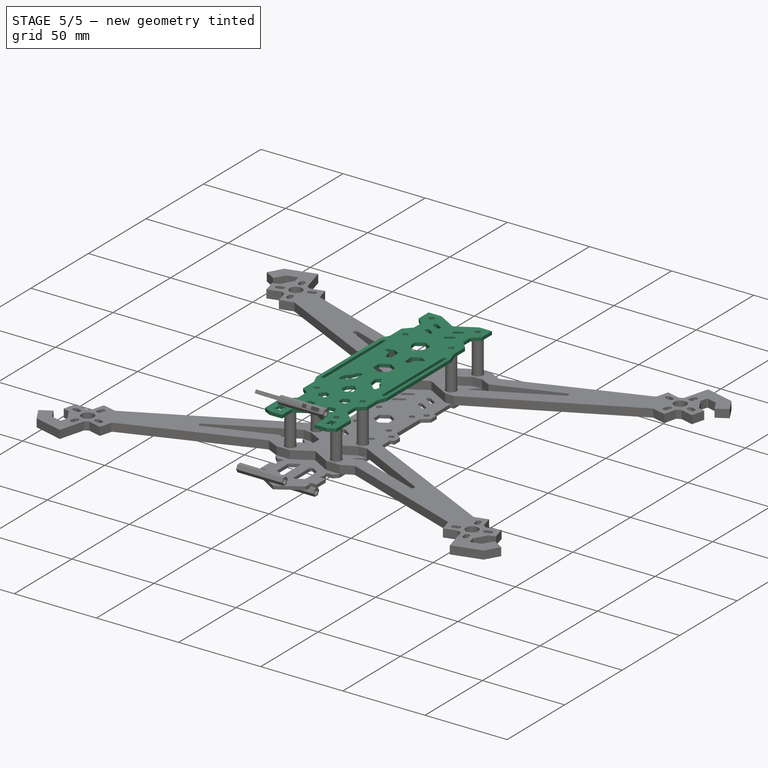
[diagram: stage 5 of 5 — iso view after this stage's code; geometry added in this stage tinted green]
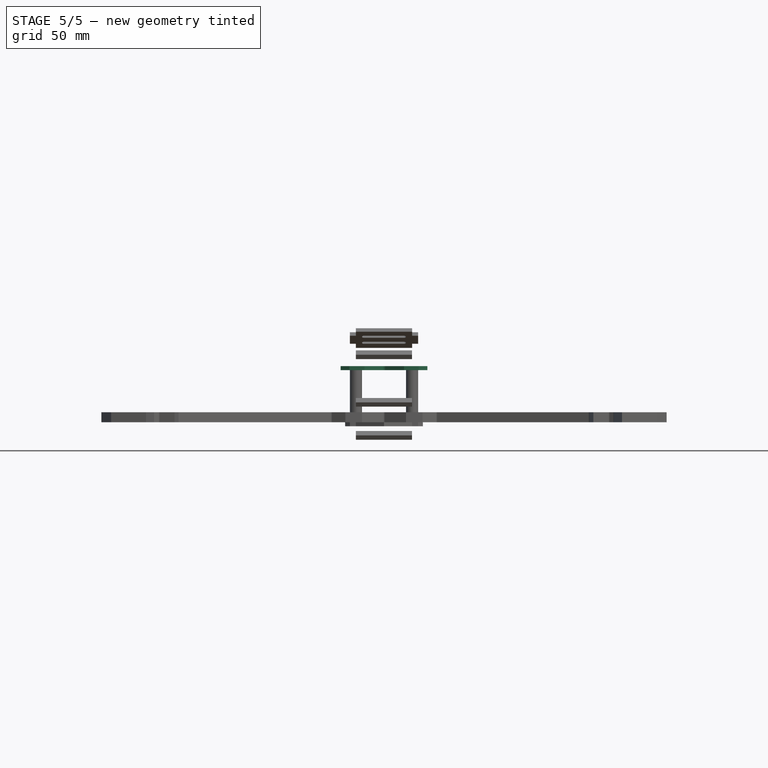
[diagram: stage 5 of 5 — front view after this stage's code; geometry added in this stage tinted green]
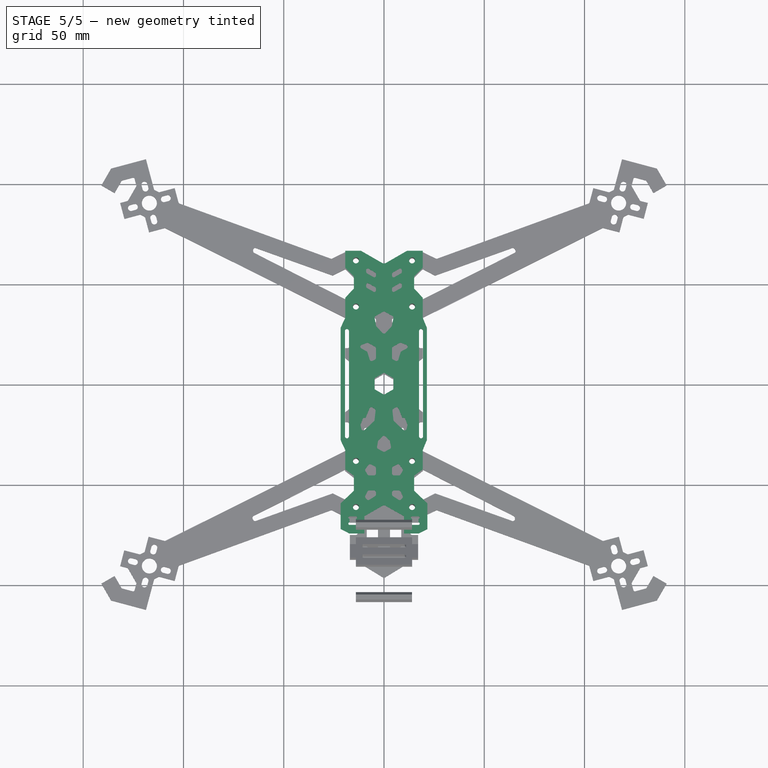
[diagram: stage 5 of 5 — top view after this stage's code; geometry added in this stage tinted green]
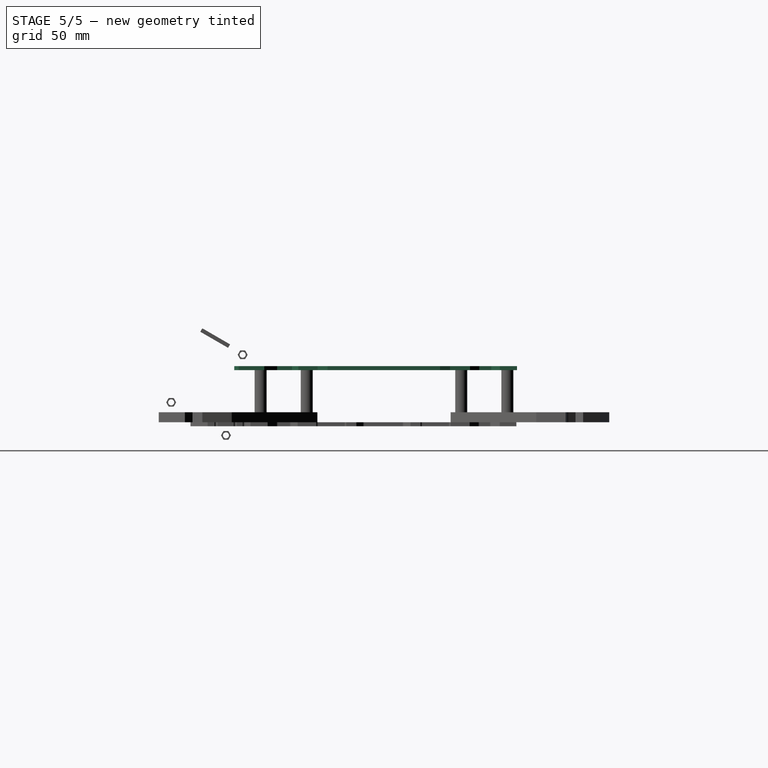
[diagram: stage 5 of 5 — right view after this stage's code; geometry added in this stage tinted green]
FEATURE [Sketcher::SketchObject] Sketch  label="top body"
  FullyConstrained = false
  Placement = pos=(0,0,28) rot=(0,0,1;0rad)
  sketch-geometry (59):
    g0: LineSegment StartX=4.75 StartY=-2.74241 StartZ=0 EndX=4.75 EndY=2.74241 EndZ=0
    g1: LineSegment StartX=4.75 StartY=2.74241 StartZ=0 EndX=0 EndY=5.48483 EndZ=0
    g2: LineSegment StartX=0 StartY=5.48483 StartZ=0 EndX=-4.75 EndY=2.74241 EndZ=0
    g3: LineSegment StartX=-4.75 StartY=2.74241 StartZ=0 EndX=-4.75 EndY=-2.74241 EndZ=0
    g4: LineSegment StartX=-4.75 StartY=-2.74241 StartZ=0 EndX=0 EndY=-5.48483 EndZ=0
    g5: LineSegment StartX=0 StartY=-5.48483 StartZ=0 EndX=4.75 EndY=-2.74241 EndZ=0
    g6: Circle CenterX=0 CenterY=0 CenterZ=0 NormalX=0 NormalY=0 NormalZ=1 AngleXU=0 Radius=5.48483
    g7: LineSegment StartX=-21.6339 StartY=27.9 StartZ=0 EndX=-21.6339 EndY=-28.1 EndZ=0
    g8: LineSegment StartX=21.3661 StartY=-28.1 StartZ=0 EndX=21.3661 EndY=27.9 EndZ=0
    g9: LineSegment StartX=-21.6339 StartY=27.9 StartZ=0 EndX=-19.3 EndY=32.9 EndZ=0
    g10: LineSegment StartX=-19.3 StartY=32.9 StartZ=0 EndX=-19.3 EndY=42.9 EndZ=0
    g11: LineSegment StartX=-19.3 StartY=42.9 StartZ=0 EndX=-15 EndY=47.5 EndZ=0
    g12: LineSegment StartX=-15 StartY=47.5 StartZ=0 EndX=-15 EndY=53.5 EndZ=0
    g13: LineSegment StartX=-15 StartY=53.5 StartZ=0 EndX=-19.3 EndY=57.8 EndZ=0
    g14: LineSegment StartX=-19.3 StartY=57.8 StartZ=0 EndX=-19.3 EndY=66.3 EndZ=0
    g15: LineSegment StartX=-19.3 StartY=66.3 StartZ=0 EndX=-11.5 EndY=66.3 EndZ=0
    g16: LineSegment StartX=-11.5 StartY=66.3 StartZ=0 EndX=-1.05201 EndY=60.2755 EndZ=0
    g17: LineSegment StartX=1.05201 StartY=60.2755 StartZ=0 EndX=11.5 EndY=66.3 EndZ=0
    g18: LineSegment StartX=11.5 StartY=66.3 StartZ=0 EndX=19.3 EndY=66.3 EndZ=0
    g19: LineSegment StartX=19.3 StartY=66.3 StartZ=0 EndX=19.3 EndY=57.8 EndZ=0
    g20: LineSegment StartX=19.3 StartY=57.8 StartZ=0 EndX=15 EndY=53.5 EndZ=0
    g21: LineSegment StartX=15 StartY=53.5 StartZ=0 EndX=15 EndY=47.5 EndZ=0
    g22: LineSegment StartX=15 StartY=47.5 StartZ=0 EndX=19.3 EndY=42.9 EndZ=0
    g23: LineSegment StartX=19.3 StartY=42.9 StartZ=0 EndX=19.3 EndY=32.9 EndZ=0
    g24: LineSegment StartX=19.3 StartY=32.9 StartZ=0 EndX=21.3661 EndY=27.9 EndZ=0
    g25: LineSegment StartX=21.3661 StartY=-28.1 StartZ=0 EndX=19.3 EndY=-33.1 EndZ=0
    g26: LineSegment StartX=19.3 StartY=-33.1 StartZ=0 EndX=19.3 EndY=-42.7 EndZ=0
    g27: LineSegment StartX=19.3 StartY=-42.7 StartZ=0 EndX=15 EndY=-45.9 EndZ=0
    g28: LineSegment StartX=15 StartY=-45.9 StartZ=0 EndX=15 EndY=-53.3 EndZ=0
    g29: LineSegment StartX=15 StartY=-53.3 StartZ=0 EndX=21.6 EndY=-59.7 EndZ=0
    g30: LineSegment StartX=21.6 StartY=-59.7 StartZ=0 EndX=21.6 EndY=-72.5 EndZ=0
    g31: LineSegment StartX=21.6 StartY=-72.5 StartZ=0 EndX=17.307 EndY=-74.7 EndZ=0
    g32: LineSegment StartX=17.307 StartY=-74.7 StartZ=0 EndX=10 EndY=-74.7 EndZ=0
    g33: LineSegment StartX=10 StartY=-74.7 StartZ=0 EndX=10 EndY=-66.1 EndZ=0
    g34: LineSegment StartX=10 StartY=-66.1 StartZ=0 EndX=0.819187 EndY=-60.909 EndZ=0
    g35: LineSegment StartX=-0.83291 StartY=-60.9169 StartZ=0 EndX=-9.8 EndY=-66.1 EndZ=0
    g36: LineSegment StartX=-9.8 StartY=-66.1 StartZ=0 EndX=-9.8 EndY=-74.7 EndZ=0
    g37: LineSegment StartX=-9.8 StartY=-74.7 StartZ=0 EndX=-17.275 EndY=-74.7 EndZ=0
    g38: LineSegment StartX=-17.275 StartY=-74.7 StartZ=0 EndX=-21.6 EndY=-72.5 EndZ=0
    g39: LineSegment StartX=-21.6 StartY=-72.5 StartZ=0 EndX=-21.6 EndY=-59.7 EndZ=0
    g40: LineSegment StartX=-21.6 StartY=-59.7 StartZ=0 EndX=-15 EndY=-53.3 EndZ=0
    g41: LineSegment StartX=-15 StartY=-53.3 StartZ=0 EndX=-15 EndY=-45.9 EndZ=0
    g42: LineSegment StartX=-15 StartY=-45.9 StartZ=0 EndX=-19.3 EndY=-42.7 EndZ=0
    g43: LineSegment StartX=-19.3 StartY=-42.7 StartZ=0 EndX=-19.3 EndY=-33.1 EndZ=0
    g44: LineSegment StartX=-19.3 StartY=-33.1 StartZ=0 EndX=-21.6339 EndY=-28.1 EndZ=0
    g45: LineSegment StartX=-17.4759 StartY=26.25 StartZ=0 EndX=-17.4759 EndY=-26.25 EndZ=0
    g46: LineSegment StartX=-19.4759 StartY=-26.25 StartZ=0 EndX=-19.4759 EndY=26.25 EndZ=0
    g47: ArcOfCircle CenterX=-18.4759 CenterY=26.25 CenterZ=0 NormalX=0 NormalY=0 NormalZ=1 AngleXU=0 Radius=1 StartAngle=1.5708 EndAngle=3.14159
    g48: ArcOfCircle CenterX=-18.4759 CenterY=26.25 CenterZ=0 NormalX=0 NormalY=0 NormalZ=1 AngleXU=0 Radius=1 StartAngle=0 EndAngle=1.5708
    g49: ArcOfCircle CenterX=-18.4759 CenterY=-26.25 CenterZ=0 NormalX=0 NormalY=0 NormalZ=1 AngleXU=0 Radius=1 StartAngle=3.14159 EndAngle=4.71239
    g50: ArcOfCircle CenterX=-18.4759 CenterY=-26.25 CenterZ=0 NormalX=0 NormalY=0 NormalZ=1 AngleXU=0 Radius=1 StartAngle=4.71239 EndAngle=6.28319
    g51: LineSegment StartX=19.4759 StartY=26.25 StartZ=0 EndX=19.4759 EndY=-26.25 EndZ=0
    g52: LineSegment StartX=17.4759 StartY=-26.25 StartZ=0 EndX=17.4759 EndY=26.25 EndZ=0
    g53: ArcOfCircle CenterX=18.4759 CenterY=26.25 CenterZ=0 NormalX=0 NormalY=0 NormalZ=1 AngleXU=0 Radius=1 StartAngle=1.5708 EndAngle=3.14159
    g54: ArcOfCircle CenterX=18.4759 CenterY=26.25 CenterZ=0 NormalX=0 NormalY=0 NormalZ=1 AngleXU=0 Radius=1 StartAngle=0 EndAngle=1.5708
    g55: ArcOfCircle CenterX=18.4759 CenterY=-26.25 CenterZ=0 NormalX=0 NormalY=0 NormalZ=1 AngleXU=0 Radius=1 StartAngle=3.14159 EndAngle=4.71239
    g56: ArcOfCircle CenterX=18.4759 CenterY=-26.25 CenterZ=0 NormalX=0 NormalY=0 NormalZ=1 AngleXU=0 Radius=1 StartAngle=4.71239 EndAngle=6.28319
    g57: ArcOfCircle CenterX=0 CenterY=62.1 CenterZ=0 NormalX=0 NormalY=0 NormalZ=1 AngleXU=0 Radius=2.10603 StartAngle=4.18934 EndAngle=5.23544
    g58: ArcOfCircle CenterX=0 CenterY=-62.3578 CenterZ=0 NormalX=0 NormalY=0 NormalZ=1 AngleXU=0 Radius=1.66438 StartAngle=1.05619 EndAngle=2.0949
  constraints (158):
    c: Coincident(g0,g1)
    c: Coincident(g1,g2)
    c: Coincident(g2,g3)
    c: Coincident(g3,g4)
    c: Coincident(g4,g5)
    c: Coincident(g5,g0)
    c: Equal(g0, g1-g5) x5
    c: PointOnObject(g0,g6)
    c: PointOnObject(g1,g6)
    c: PointOnObject(g2,g6)
    c: PointOnObject(g3,g6)
    c: PointOnObject(g4,g6)
    c: PointOnObject(g5,g6)
    c: Vertical(g3)
    c: Coincident(g6,g-1)
    c: DistanceX(g3,g0) = 9.5
    c: Vertical(g7)
    c: Vertical(g8)
    c: Coincident(g9,g7)
    c: Vertical(g10)
    c: Vertical(g12)
    c: Vertical(g14)
    c: Horizontal(g15)
    c: Horizontal(g18)
    c: Vertical(g19)
    c: Coincident(g22,g21)
    c: Coincident(g23,g22)
    c: Vertical(g23)
    c: Coincident(g24,g23)
    c: Coincident(g24,g8)
    c: Vertical(g26)
    c: Coincident(g27,g26)
    c: Vertical(g28)
    c: Vertical(g30)
    c: Horizontal(g32)
    c: Coincident(g33,g32)
    c: Vertical(g33)
    c: Vertical(g36)
    c: Horizontal(g37)
    c: Vertical(g39)
    c: Vertical(g41)
    c: Vertical(g43)
    c: Coincident(g44,g7)
    c: DistanceX(g7,g8) = 43
    c: Coincident(g43,g44)
    c: Coincident(g42,g43)
    c: Coincident(g41,g42)
    c: Coincident(g40,g41)
    c: Coincident(g39,g40)
    c: Coincident(g38,g39)
    c: Coincident(g37,g38)
    c: Coincident(g36,g37)
    c: Coincident(g35,g36)
    c: Coincident(g33,g34)
    c: Coincident(g31,g32)
    c: Coincident(g30,g31)
    c: Coincident(g29,g30)
    c: Coincident(g28,g29)
    c: Coincident(g27,g28)
    c: Coincident(g25,g26)
    c: Coincident(g8,g25)
    c: Coincident(g20,g21)
    c: Coincident(g19,g20)
    c: Coincident(g18,g19)
    c: Coincident(g17,g18)
    c: Coincident(g15,g16)
    c: Coincident(g14,g15)
    c: Coincident(g13,g14)
    c: Coincident(g12,g13)
    c: Coincident(g11,g12)
    c: Coincident(g10,g11)
    c: Vertical(g45)
    c: Vertical(g46)
    c: Tangent(g46,g47) = 1.5708
    c: Tangent(g45,g48) = 1.5708
    c: Tangent(g46,g49) = 1.5708
    c: Tangent(g45,g50) = 1.5708
    c: DistanceX(g46,g45) = 2
    c: Coincident(g50,g49)
    c: Coincident(g49,g50)
    c: Coincident(g47,g48)
    c: Coincident(g47,g48)
    c: DistanceY(g49,g47) = 54.5
    c: Vertical(g51)
    c: Vertical(g52)
    c: Tangent(g52,g53) = 1.5708
    c: Tangent(g51,g54) = 1.5708
    c: Coincident(g53,g54)
    c: Coincident(g54,g53)
    c: Tangent(g52,g55) = 1.5708
    c: Tangent(g51,g56) = 1.5708
    c: Coincident(g55,g56)
    c: Vertical(g49,g49)
    c: Vertical(g47,g47)
    c: Equal(g48,g53)
    c: Vertical(g53,g53)
    c: Horizontal(g47,g53)
    c: Coincident(g55,g56)
    c: Horizontal(g49,g55)
    c: Vertical(g55,g55)
    c: Symmetric(g49,g53,g6)
    c: Horizontal(g7,g8)
    c: Horizontal(g9,g23)
    c: Horizontal(g10,g22)
    c: Horizontal(g11,g21)
    c: Horizontal(g12,g20)
    c: Horizontal(g13,g19)
    c: Horizontal(g15,g17)
    c: Horizontal(g36,g32)
    c: Horizontal(g35,g33)
    c: Horizontal(g38,g30)
    c: Horizontal(g39,g29)
    c: Horizontal(g40,g28)
    c: Horizontal(g41,g27)
    c: Horizontal(g42,g26)
    c: Horizontal(g43,g25)
    c: Horizontal(g7,g8)
    c: Vertical(g21)
    c: DistanceX(g11,g21) = 30
    c: DistanceX(g11) = -15
    c: DistanceX(g13,g19) = 38.6
    c: DistanceY(g19,g19) = 8.5
    c: DistanceY(g22,g19) = 14.9
    c: DistanceY(g21,g21) = 6
    c: DistanceY(g20,g19) = 4.3
    c: Vertical(g13,g10)
    c: Vertical(g19,g22)
    c: DistanceY(g23,g23) = 10
    c: DistanceY(g25,g23) = 66
    c: DistanceY(g8,g8) = 56
    c: DistanceY(g8,g23) = 5
    c: Vertical(g43,g10)
    c: Coincident(g9,g10)
    c: Vertical(g25,g23)
    c: Vertical(g41,g11)
    c: Vertical(g21,g27)
    c: DistanceX(g39,g29) = 43.2
    c: DistanceX(g36,g32) = 19.8
    c: DistanceX(g36) = -9.8
    c: DistanceY(g36,g36) = 8.6
    c: DistanceY(g37,g15) = 141
    c: DistanceY(g30,g30) = 12.8
    c: DistanceY(g31,g30) = 2.2
    c: DistanceY(g29,g26) = 17
    c: DistanceY(g28,g28) = 7.4
    c: DistanceY(g27,g26) = 3.2
    c: DistanceX(g38) = -21.6
    c: Tangent(g16,g57) = -1.5708
    c: Tangent(g17,g57) = -1.5708
    c: PointOnObject(g57,g-2)
    c: DistanceY(g57) = 62.1
    c: Tangent(g34,g58) = -1.5708
    c: Tangent(g35,g58) = -1.5708
    c: PointOnObject(g58,g-2)
    c: Equal(g15,g18)
    c: DistanceX(g15,g17) = 23
    c: DistanceY(g57,g15) = 4.2
    c: Horizontal(g16,g17)
FEATURE [Sketcher::SketchObject] Sketch001  label="top body cut"
  FullyConstrained = true
  Placement = pos=(0,0,28) rot=(0,0,1;0rad)
  sketch-geometry (168):
    g0: Circle CenterX=-14 CenterY=38.5 CenterZ=0 NormalX=0 NormalY=0 NormalZ=1 AngleXU=0 Radius=1.5
    g1: Circle CenterX=14 CenterY=38.5 CenterZ=0 NormalX=0 NormalY=0 NormalZ=1 AngleXU=0 Radius=1.5
    g2: Circle CenterX=14 CenterY=61.5 CenterZ=0 NormalX=0 NormalY=0 NormalZ=1 AngleXU=0 Radius=1.5
    g3: Circle CenterX=-14 CenterY=61.5 CenterZ=0 NormalX=0 NormalY=0 NormalZ=1 AngleXU=0 Radius=1.5
    g4: Circle CenterX=-14 CenterY=-38.5 CenterZ=0 NormalX=0 NormalY=0 NormalZ=1 AngleXU=0 Radius=1.5
    g5: Circle CenterX=14 CenterY=-38.5 CenterZ=0 NormalX=0 NormalY=0 NormalZ=1 AngleXU=0 Radius=1.5
    g6: Circle CenterX=-14 CenterY=-61.5 CenterZ=0 NormalX=0 NormalY=0 NormalZ=1 AngleXU=0 Radius=1.5
    g7: Circle CenterX=14 CenterY=-61.5 CenterZ=0 NormalX=0 NormalY=0 NormalZ=1 AngleXU=0 Radius=1.5
    g8: LineSegment StartX=-7.70338 StartY=57.3448 StartZ=0 EndX=-4.50423 EndY=55.5185 EndZ=0
    g9: LineSegment StartX=-4 StartY=54.65 StartZ=0 EndX=-4 EndY=53.85 EndZ=0
    g10: LineSegment StartX=-5.19662 StartY=53.1552 StartZ=0 EndX=-8.39577 EndY=54.9815 EndZ=0
    g11: LineSegment StartX=-8.9 StartY=55.85 StartZ=0 EndX=-8.9 EndY=56.65 EndZ=0
    g12: ArcOfCircle CenterX=-8.1 CenterY=56.65 CenterZ=0 NormalX=0 NormalY=0 NormalZ=1 AngleXU=0 Radius=0.8 StartAngle=1.05207 EndAngle=3.14159
    g13: ArcOfCircle CenterX=-7.9 CenterY=55.85 CenterZ=0 NormalX=0 NormalY=0 NormalZ=1 AngleXU=0 Radius=1 StartAngle=3.14159 EndAngle=4.19366
    g14: ArcOfCircle CenterX=-4.8 CenterY=53.85 CenterZ=0 NormalX=0 NormalY=0 NormalZ=1 AngleXU=0 Radius=0.8 StartAngle=4.19366 EndAngle=6.28319
    g15: ArcOfCircle CenterX=-5 CenterY=54.65 CenterZ=0 NormalX=0 NormalY=0 NormalZ=1 AngleXU=0 Radius=1 StartAngle=-2.7e-15 EndAngle=1.05207
    g16: LineSegment StartX=-7.70338 StartY=50.0448 StartZ=0 EndX=-4.50423 EndY=48.2185 EndZ=0
    g17: LineSegment StartX=-4 StartY=47.35 StartZ=0 EndX=-4 EndY=46.55 EndZ=0
    g18: LineSegment StartX=-5.19662 StartY=45.8552 StartZ=0 EndX=-8.39577 EndY=47.6815 EndZ=0
    g19: LineSegment StartX=-8.9 StartY=48.55 StartZ=0 EndX=-8.9 EndY=49.35 EndZ=0
    g20: LineSegment StartX=4.50423 StartY=48.2185 StartZ=0 EndX=7.70338 EndY=50.0448 EndZ=0
    g21: LineSegment StartX=8.9 StartY=49.35 StartZ=0 EndX=8.9 EndY=48.55 EndZ=0
    g22: LineSegment StartX=8.39577 StartY=47.6815 StartZ=0 EndX=5.19662 EndY=45.8552 EndZ=0
    g23: LineSegment StartX=4 StartY=46.55 StartZ=0 EndX=4 EndY=47.35 EndZ=0
    g24: LineSegment StartX=4.50423 StartY=55.5185 StartZ=0 EndX=7.70338 EndY=57.3448 EndZ=0
    g25: LineSegment StartX=8.9 StartY=56.65 StartZ=0 EndX=8.9 EndY=55.85 EndZ=0
    g26: LineSegment StartX=8.39577 StartY=54.9815 StartZ=0 EndX=5.19662 EndY=53.1552 EndZ=0
    g27: LineSegment StartX=4 StartY=53.85 StartZ=0 EndX=4 EndY=54.65 EndZ=0
    g28: ArcOfCircle CenterX=-8.1 CenterY=49.35 CenterZ=0 NormalX=0 NormalY=0 NormalZ=1 AngleXU=0 Radius=0.8 StartAngle=1.05207 EndAngle=3.14159
    g29: ArcOfCircle CenterX=-7.9 CenterY=48.55 CenterZ=0 NormalX=0 NormalY=0 NormalZ=1 AngleXU=0 Radius=1 StartAngle=3.14159 EndAngle=4.19366
    g30: ArcOfCircle CenterX=-4.8 CenterY=46.55 CenterZ=0 NormalX=0 NormalY=0 NormalZ=1 AngleXU=0 Radius=0.8 StartAngle=4.19366 EndAngle=6.28319
    g31: ArcOfCircle CenterX=-5 CenterY=47.35 CenterZ=0 NormalX=0 NormalY=0 NormalZ=1 AngleXU=0 Radius=1 StartAngle=-9e-16 EndAngle=1.05207
    g32: ArcOfCircle CenterX=5 CenterY=47.35 CenterZ=0 NormalX=0 NormalY=0 NormalZ=1 AngleXU=0 Radius=1 StartAngle=2.08952 EndAngle=3.14159
    g33: ArcOfCircle CenterX=8.1 CenterY=49.35 CenterZ=0 NormalX=0 NormalY=0 NormalZ=1 AngleXU=0 Radius=0.8 StartAngle=-9e-16 EndAngle=2.08952
    g34: ArcOfCircle CenterX=7.9 CenterY=48.55 CenterZ=0 NormalX=0 NormalY=0 NormalZ=1 AngleXU=0 Radius=1 StartAngle=5.23112 EndAngle=6.28319
    g35: ArcOfCircle CenterX=4.8 CenterY=46.55 CenterZ=0 NormalX=0 NormalY=0 NormalZ=1 AngleXU=0 Radius=0.8 StartAngle=3.14159 EndAngle=5.23112
    g36: ArcOfCircle CenterX=4.8 CenterY=53.85 CenterZ=0 NormalX=0 NormalY=0 NormalZ=1 AngleXU=0 Radius=0.8 StartAngle=3.14159 EndAngle=5.23112
    g37: ArcOfCircle CenterX=7.9 CenterY=55.85 CenterZ=0 NormalX=0 NormalY=0 NormalZ=1 AngleXU=0 Radius=1 StartAngle=5.23112 EndAngle=6.28319
    g38: ArcOfCircle CenterX=8.1 CenterY=56.65 CenterZ=0 NormalX=0 NormalY=0 NormalZ=1 AngleXU=0 Radius=0.8 StartAngle=-9e-16 EndAngle=2.08952
    g39: ArcOfCircle CenterX=5 CenterY=54.65 CenterZ=0 NormalX=0 NormalY=0 NormalZ=1 AngleXU=0 Radius=1 StartAngle=2.08952 EndAngle=3.14159
    g40: LineSegment StartX=-4.19361 StartY=33.7697 StartZ=0 EndX=-0.493606 EndY=35.8697 EndZ=0
    g41: LineSegment StartX=0.493606 StartY=35.8697 StartZ=0 EndX=4.19361 EndY=33.7697 EndZ=0
    g42: LineSegment StartX=4.68107 StartY=32.7064 StartZ=0 EndX=3.93107 EndY=28.9064 EndZ=0
    g43: LineSegment StartX=3.67442 StartY=28.4106 StartZ=0 EndX=0.724416 EndY=25.3106 EndZ=0
    g44: LineSegment StartX=-0.724416 StartY=25.3106 StartZ=0 EndX=-3.67442 EndY=28.4106 EndZ=0
    g45: LineSegment StartX=-3.93107 StartY=28.9064 StartZ=0 EndX=-4.68107 EndY=32.7064 EndZ=0
    g46: ArcOfCircle CenterX=0 CenterY=35 CenterZ=0 NormalX=0 NormalY=0 NormalZ=1 AngleXU=0 Radius=1 StartAngle=1.05457 EndAngle=2.08703
    g47: ArcOfCircle CenterX=-3.7 CenterY=32.9 CenterZ=0 NormalX=0 NormalY=0 NormalZ=1 AngleXU=0 Radius=1 StartAngle=2.08703 EndAngle=3.33646
    g48: ArcOfCircle CenterX=3.7 CenterY=32.9 CenterZ=0 NormalX=0 NormalY=0 NormalZ=1 AngleXU=0 Radius=1 StartAngle=6.08832 EndAngle=7.33775
    g49: ArcOfCircle CenterX=2.95 CenterY=29.1 CenterZ=0 NormalX=0 NormalY=0 NormalZ=1 AngleXU=0 Radius=1 StartAngle=5.52258 EndAngle=6.08832
    g50: ArcOfCircle CenterX=0 CenterY=26 CenterZ=0 NormalX=0 NormalY=0 NormalZ=1 AngleXU=0 Radius=1 StartAngle=3.9022 EndAngle=5.52258
    g51: ArcOfCircle CenterX=-2.95 CenterY=29.1 CenterZ=0 NormalX=0 NormalY=0 NormalZ=1 AngleXU=0 Radius=1 StartAngle=3.33646 EndAngle=3.9022
    g52: LineSegment StartX=-11.1432 StartY=19.3893 StartZ=0 EndX=-8.54319 EndY=20.3393 EndZ=0
    g53: LineSegment StartX=-7.70974 StartY=20.2716 StartZ=0 EndX=-4.50974 EndY=18.4716 EndZ=0
    g54: LineSegment StartX=-4 StartY=17.6 StartZ=0 EndX=-4 EndY=12.9 EndZ=0
    g55: LineSegment StartX=-4.55279 StartY=12.0056 StartZ=0 EndX=-5.75279 EndY=11.4056 EndZ=0
    g56: LineSegment StartX=-7.15694 StartY=12.0097 StartZ=0 EndX=-8.24306 EndY=15.5903 EndZ=0
    g57: LineSegment StartX=-8.72139 StartY=16.178 StartZ=0 EndX=-11.2786 EndY=17.572 EndZ=0
    g58: LineSegment StartX=7.70974 StartY=20.2716 StartZ=0 EndX=4.50974 EndY=18.4716 EndZ=0
    g59: LineSegment StartX=4 StartY=17.6 StartZ=0 EndX=4 EndY=12.9 EndZ=0
    g60: LineSegment StartX=4.55279 StartY=12.0056 StartZ=0 EndX=5.75279 EndY=11.4056 EndZ=0
    g61: LineSegment StartX=7.15694 StartY=12.0097 StartZ=0 EndX=8.24306 EndY=15.5903 EndZ=0
    g62: LineSegment StartX=8.72139 StartY=16.178 StartZ=0 EndX=11.2786 EndY=17.572 EndZ=0
    g63: LineSegment StartX=11.1432 StartY=19.3893 StartZ=0 EndX=8.54319 EndY=20.3393 EndZ=0
    g64: ArcOfCircle CenterX=-8.2 CenterY=19.4 CenterZ=0 NormalX=0 NormalY=0 NormalZ=1 AngleXU=0 Radius=1 StartAngle=1.05841 EndAngle=1.92111
    g65: ArcOfCircle CenterX=-5 CenterY=17.6 CenterZ=0 NormalX=0 NormalY=0 NormalZ=1 AngleXU=0 Radius=1 StartAngle=-9e-16 EndAngle=1.05841
    g66: ArcOfCircle CenterX=5 CenterY=17.6 CenterZ=0 NormalX=0 NormalY=0 NormalZ=1 AngleXU=0 Radius=1 StartAngle=2.08319 EndAngle=3.14159
    g67: ArcOfCircle CenterX=8.2 CenterY=19.4 CenterZ=0 NormalX=0 NormalY=0 NormalZ=1 AngleXU=0 Radius=1 StartAngle=1.22048 EndAngle=2.08319
    g68: ArcOfCircle CenterX=10.8 CenterY=18.45 CenterZ=0 NormalX=0 NormalY=0 NormalZ=1 AngleXU=0 Radius=1 StartAngle=5.21146 EndAngle=7.50367
    g69: ArcOfCircle CenterX=9.2 CenterY=15.3 CenterZ=0 NormalX=0 NormalY=0 NormalZ=1 AngleXU=0 Radius=1 StartAngle=2.06987 EndAngle=2.84708
    g70: ArcOfCircle CenterX=6.2 CenterY=12.3 CenterZ=0 NormalX=0 NormalY=0 NormalZ=1 AngleXU=0 Radius=1 StartAngle=4.24874 EndAngle=5.98867
    g71: ArcOfCircle CenterX=5 CenterY=12.9 CenterZ=0 NormalX=0 NormalY=0 NormalZ=1 AngleXU=0 Radius=1 StartAngle=3.14159 EndAngle=4.24874
    g72: ArcOfCircle CenterX=-5 CenterY=12.9 CenterZ=0 NormalX=0 NormalY=0 NormalZ=1 AngleXU=0 Radius=1 StartAngle=5.17604 EndAngle=6.28319
    g73: ArcOfCircle CenterX=-6.2 CenterY=12.3 CenterZ=0 NormalX=0 NormalY=0 NormalZ=1 AngleXU=0 Radius=1 StartAngle=3.43611 EndAngle=5.17604
    g74: ArcOfCircle CenterX=-10.8 CenterY=18.45 CenterZ=0 NormalX=0 NormalY=0 NormalZ=1 AngleXU=0 Radius=1 StartAngle=1.92111 EndAngle=4.21331
    g75: ArcOfCircle CenterX=-9.2 CenterY=15.3 CenterZ=0 NormalX=0 NormalY=0 NormalZ=1 AngleXU=0 Radius=1 StartAngle=0.294515 EndAngle=1.07172
    g76: LineSegment StartX=-5.76312 StartY=-11.8563 StartZ=0 EndX=-4.66312 EndY=-12.5563 EndZ=0
    g77: LineSegment StartX=-4.20586 StartY=-13.5081 StartZ=0 EndX=-4.70586 EndY=-18.1081 EndZ=0
    g78: LineSegment StartX=-5.01712 StartY=-18.7305 StartZ=0 EndX=-9.61712 EndY=-23.0305 EndZ=0
    g79: LineSegment StartX=-11.2734 StartY=-22.529 StartZ=0 EndX=-11.6734 EndY=-20.829 EndZ=0
    g80: LineSegment StartX=-11.6333 StartY=-20.241 StartZ=0 EndX=-10.6333 EndY=-17.641 EndZ=0
    g81: LineSegment StartX=-9.2 StartY=-17.134 StartZ=0 EndX=-7.22517 EndY=-12.3204 EndZ=0
    g82: LineSegment StartX=5.76312 StartY=-11.8563 StartZ=0 EndX=4.66312 EndY=-12.5563 EndZ=0
    g83: LineSegment StartX=4.20586 StartY=-13.5081 StartZ=0 EndX=4.70586 EndY=-18.1081 EndZ=0
    g84: LineSegment StartX=5.01712 StartY=-18.7305 StartZ=0 EndX=9.61712 EndY=-23.0305 EndZ=0
    g85: LineSegment StartX=11.2734 StartY=-22.529 StartZ=0 EndX=11.6734 EndY=-20.829 EndZ=0
    g86: LineSegment StartX=11.6333 StartY=-20.241 StartZ=0 EndX=10.6333 EndY=-17.641 EndZ=0
    g87: LineSegment StartX=9.2 StartY=-17.134 StartZ=0 EndX=7.22517 EndY=-12.3204 EndZ=0
    g88: ArcOfCircle CenterX=-6.3 CenterY=-12.7 CenterZ=0 NormalX=0 NormalY=0 NormalZ=1 AngleXU=0 Radius=1 StartAngle=1.00407 EndAngle=2.75227
    g89: ArcOfCircle CenterX=-5.2 CenterY=-13.4 CenterZ=0 NormalX=0 NormalY=0 NormalZ=1 AngleXU=0 Radius=1 StartAngle=6.17491 EndAngle=7.28725
    g90: ArcOfCircle CenterX=-5.7 CenterY=-18 CenterZ=0 NormalX=0 NormalY=0 NormalZ=1 AngleXU=0 Radius=1 StartAngle=5.46409 EndAngle=6.17491
    g91: ArcOfCircle CenterX=-10.3 CenterY=-22.3 CenterZ=0 NormalX=0 NormalY=0 NormalZ=1 AngleXU=0 Radius=1 StartAngle=3.37268 EndAngle=5.46409
    g92: ArcOfCircle CenterX=-10.7 CenterY=-20.6 CenterZ=0 NormalX=0 NormalY=0 NormalZ=1 AngleXU=0 Radius=1 StartAngle=2.77442 EndAngle=3.37268
    g93: ArcOfCircle CenterX=-9.7 CenterY=-18 CenterZ=0 NormalX=0 NormalY=0 NormalZ=1 AngleXU=0 Radius=1 StartAngle=1.0472 EndAngle=2.77442
    g94: ArcOfCircle CenterX=5.2 CenterY=-13.4 CenterZ=0 NormalX=0 NormalY=0 NormalZ=1 AngleXU=0 Radius=1 StartAngle=2.13753 EndAngle=3.24986
    g95: ArcOfCircle CenterX=6.3 CenterY=-12.7 CenterZ=0 NormalX=0 NormalY=0 NormalZ=1 AngleXU=0 Radius=1 StartAngle=0.389326 EndAngle=2.13753
    g96: ArcOfCircle CenterX=5.7 CenterY=-18 CenterZ=0 NormalX=0 NormalY=0 NormalZ=1 AngleXU=0 Radius=1 StartAngle=3.24986 EndAngle=3.96069
    g97: ArcOfCircle CenterX=10.3 CenterY=-22.3 CenterZ=0 NormalX=0 NormalY=0 NormalZ=1 AngleXU=0 Radius=1 StartAngle=3.96069 EndAngle=6.05209
    g98: ArcOfCircle CenterX=10.7 CenterY=-20.6 CenterZ=0 NormalX=0 NormalY=0 NormalZ=1 AngleXU=0 Radius=1 StartAngle=6.05209 EndAngle=6.65036
    g99: ArcOfCircle CenterX=9.7 CenterY=-18 CenterZ=0 NormalX=0 NormalY=0 NormalZ=1 AngleXU=0 Radius=1 StartAngle=0.367174 EndAngle=2.0944
    g100: LineSegment StartX=-0.688749 StartY=-26.275 StartZ=0 EndX=-2.68875 EndY=-28.175 EndZ=0
    g101: LineSegment StartX=-2.98328 StartY=-28.7179 StartZ=0 EndX=-3.48328 EndY=-31.4179 EndZ=0
    g102: LineSegment StartX=-2.9886 StartY=-32.4725 StartZ=0 EndX=-0.488603 EndY=-33.8725 EndZ=0
    g103: LineSegment StartX=0.488603 StartY=-33.8725 StartZ=0 EndX=2.9886 EndY=-32.4725 EndZ=0
    g104: LineSegment StartX=3.48328 StartY=-31.4179 StartZ=0 EndX=2.98328 EndY=-28.7179 EndZ=0
    g105: LineSegment StartX=2.68875 StartY=-28.175 StartZ=0 EndX=0.688749 EndY=-26.275 EndZ=0
    g106: ArcOfCircle CenterX=-2 CenterY=-28.9 CenterZ=0 NormalX=0 NormalY=0 NormalZ=1 AngleXU=0 Radius=1 StartAngle=2.33056 EndAngle=2.95848
    g107: ArcOfCircle CenterX=-2.5 CenterY=-31.6 CenterZ=0 NormalX=0 NormalY=0 NormalZ=1 AngleXU=0 Radius=1 StartAngle=2.95848 EndAngle=4.2019
    g108: ArcOfCircle CenterX=0 CenterY=-33 CenterZ=0 NormalX=0 NormalY=0 NormalZ=1 AngleXU=0 Radius=1 StartAngle=4.2019 EndAngle=5.22288
    g109: ArcOfCircle CenterX=2.5 CenterY=-31.6 CenterZ=0 NormalX=0 NormalY=0 NormalZ=1 AngleXU=0 Radius=1 StartAngle=5.22288 EndAngle=6.4663
    g110: ArcOfCircle CenterX=2 CenterY=-28.9 CenterZ=0 NormalX=0 NormalY=0 NormalZ=1 AngleXU=0 Radius=1 StartAngle=0.183111 EndAngle=0.811034
    g111: ArcOfCircle CenterX=0 CenterY=-27 CenterZ=0 NormalX=0 NormalY=0 NormalZ=1 AngleXU=0 Radius=1 StartAngle=0.811034 EndAngle=2.33056
    g112: LineSegment StartX=-7.80506 StartY=-40.5568 StartZ=0 EndX=-9.20506 EndY=-42.4568 EndZ=0
    g113: LineSegment StartX=-9.26193 StartY=-43.557 StartZ=0 EndX=-8.26193 EndY=-45.257 EndZ=0
    g114: LineSegment StartX=-7.4 StartY=-45.75 StartZ=0 EndX=-5 EndY=-45.75 EndZ=0
    g115: LineSegment StartX=-4 StartY=-44.75 StartZ=0 EndX=-4 EndY=-42.15 EndZ=0
    g116: LineSegment StartX=-4.55279 StartY=-41.2556 StartZ=0 EndX=-6.55279 EndY=-40.2556 EndZ=0
    g117: LineSegment StartX=4.55279 StartY=-41.2556 StartZ=0 EndX=6.55279 EndY=-40.2556 EndZ=0
    g118: LineSegment StartX=7.80506 StartY=-40.5568 StartZ=0 EndX=9.20506 EndY=-42.4568 EndZ=0
    g119: LineSegment StartX=9.26193 StartY=-43.557 StartZ=0 EndX=8.26193 EndY=-45.257 EndZ=0
    g120: LineSegment StartX=7.4 StartY=-45.75 StartZ=0 EndX=5 EndY=-45.75 EndZ=0
    g121: LineSegment StartX=4 StartY=-44.75 StartZ=0 EndX=4 EndY=-42.15 EndZ=0
    g122: LineSegment StartX=-7.4 StartY=-53.25 StartZ=0 EndX=-5 EndY=-53.25 EndZ=0
    g123: LineSegment StartX=-4 StartY=-54.25 StartZ=0 EndX=-4 EndY=-55.25 EndZ=0
    g124: LineSegment StartX=-4.45924 StartY=-56.0912 StartZ=0 EndX=-7.25924 EndY=-57.8912 EndZ=0
    g125: LineSegment StartX=-8.55926 StartY=-57.7008 StartZ=0 EndX=-9.15926 EndY=-57.0008 EndZ=0
    g126: LineSegment StartX=-9.30286 StartY=-55.9201 StartZ=0 EndX=-8.30286 EndY=-53.8201 EndZ=0
    g127: LineSegment StartX=5 StartY=-53.25 StartZ=0 EndX=7.4 EndY=-53.25 EndZ=0
    g128: LineSegment StartX=8.30286 StartY=-53.8201 StartZ=0 EndX=9.30286 EndY=-55.9201 EndZ=0
    g129: LineSegment StartX=9.15926 StartY=-57.0008 StartZ=0 EndX=8.55926 EndY=-57.7008 EndZ=0
    g130: LineSegment StartX=7.25924 StartY=-57.8912 StartZ=0 EndX=4.45924 EndY=-56.0912 EndZ=0
    g131: LineSegment StartX=4 StartY=-55.25 StartZ=0 EndX=4 EndY=-54.25 EndZ=0
    g132: ArcOfCircle CenterX=-5 CenterY=-44.75 CenterZ=0 NormalX=0 NormalY=0 NormalZ=1 AngleXU=0 Radius=1 StartAngle=4.71239 EndAngle=6.28319
    g133: ArcOfCircle CenterX=-7.4 CenterY=-44.75 CenterZ=0 NormalX=0 NormalY=0 NormalZ=1 AngleXU=0 Radius=1 StartAngle=3.67332 EndAngle=4.71239
    g134: ArcOfCircle CenterX=-8.4 CenterY=-43.05 CenterZ=0 NormalX=0 NormalY=0 NormalZ=1 AngleXU=0 Radius=1 StartAngle=2.50657 EndAngle=3.67332
    g135: ArcOfCircle CenterX=-7 CenterY=-41.15 CenterZ=0 NormalX=0 NormalY=0 NormalZ=1 AngleXU=0 Radius=1 StartAngle=1.10715 EndAngle=2.50657
    g136: ArcOfCircle CenterX=-5 CenterY=-42.15 CenterZ=0 NormalX=0 NormalY=0 NormalZ=1 AngleXU=0 Radius=1 StartAngle=1.8e-15 EndAngle=1.10715
    g137: ArcOfCircle CenterX=5 CenterY=-42.15 CenterZ=0 NormalX=0 NormalY=0 NormalZ=1 AngleXU=0 Radius=1 StartAngle=2.03444 EndAngle=3.14159
    g138: ArcOfCircle CenterX=7 CenterY=-41.15 CenterZ=0 NormalX=0 NormalY=0 NormalZ=1 AngleXU=0 Radius=1 StartAngle=0.635027 EndAngle=2.03444
    g139: ArcOfCircle CenterX=8.4 CenterY=-43.05 CenterZ=0 NormalX=0 NormalY=0 NormalZ=1 AngleXU=0 Radius=1 StartAngle=5.75146 EndAngle=6.91821
    g140: ArcOfCircle CenterX=7.4 CenterY=-44.75 CenterZ=0 NormalX=0 NormalY=0 NormalZ=1 AngleXU=0 Radius=1 StartAngle=4.71239 EndAngle=5.75146
    g141: ArcOfCircle CenterX=5 CenterY=-44.75 CenterZ=0 NormalX=0 NormalY=0 NormalZ=1 AngleXU=0 Radius=1 StartAngle=3.14159 EndAngle=4.71239
    g142: ArcOfCircle CenterX=5 CenterY=-54.25 CenterZ=0 NormalX=0 NormalY=0 NormalZ=1 AngleXU=0 Radius=1 StartAngle=1.5708 EndAngle=3.14159
    g143: ArcOfCircle CenterX=7.4 CenterY=-54.25 CenterZ=0 NormalX=0 NormalY=0 NormalZ=1 AngleXU=0 Radius=1 StartAngle=0.444419 EndAngle=1.5708
    g144: ArcOfCircle CenterX=8.4 CenterY=-56.35 CenterZ=0 NormalX=0 NormalY=0 NormalZ=1 AngleXU=0 Radius=1 StartAngle=5.57456 EndAngle=6.7276
    g145: ArcOfCircle CenterX=7.8 CenterY=-57.05 CenterZ=0 NormalX=0 NormalY=0 NormalZ=1 AngleXU=0 Radius=1 StartAngle=4.14105 EndAngle=5.57456
    g146: ArcOfCircle CenterX=5 CenterY=-55.25 CenterZ=0 NormalX=0 NormalY=0 NormalZ=1 AngleXU=0 Radius=1 StartAngle=3.14159 EndAngle=4.14105
    g147: ArcOfCircle CenterX=-5 CenterY=-55.25 CenterZ=0 NormalX=0 NormalY=0 NormalZ=1 AngleXU=0 Radius=1 StartAngle=5.28373 EndAngle=6.28319
    g148: ArcOfCircle CenterX=-7.8 CenterY=-57.05 CenterZ=0 NormalX=0 NormalY=0 NormalZ=1 AngleXU=0 Radius=1 StartAngle=3.85022 EndAngle=5.28373
    g149: ArcOfCircle CenterX=-8.4 CenterY=-56.35 CenterZ=0 NormalX=0 NormalY=0 NormalZ=1 AngleXU=0 Radius=1 StartAngle=2.69717 EndAngle=3.85022
    g150: ArcOfCircle CenterX=-7.4 CenterY=-54.25 CenterZ=0 NormalX=0 NormalY=0 NormalZ=1 AngleXU=0 Radius=1 StartAngle=1.5708 EndAngle=2.69717
    g151: ArcOfCircle CenterX=-5 CenterY=-54.25 CenterZ=0 NormalX=0 NormalY=0 NormalZ=1 AngleXU=0 Radius=1 StartAngle=-9e-16 EndAngle=1.5708
    g152: LineSegment StartX=-17.2 StartY=-66.15 StartZ=0 EndX=-14 EndY=-66.15 EndZ=0
    g153: LineSegment StartX=-17.2 StartY=-67.35 StartZ=0 EndX=-17.2 EndY=-69.2 EndZ=0
    g154: LineSegment StartX=-17.2 StartY=-70.4 StartZ=0 EndX=-14 EndY=-70.4 EndZ=0
    g155: LineSegment StartX=-14 StartY=-67.35 StartZ=0 EndX=-14 EndY=-69.2 EndZ=0
    g156: ArcOfCircle CenterX=-17.2 CenterY=-66.75 CenterZ=0 NormalX=0 NormalY=0 NormalZ=1 AngleXU=0 Radius=0.6 StartAngle=1.5708 EndAngle=4.71239
    g157: ArcOfCircle CenterX=-17.2 CenterY=-69.8 CenterZ=0 NormalX=0 NormalY=0 NormalZ=1 AngleXU=0 Radius=0.6 StartAngle=1.5708 EndAngle=4.71239
    g158: ArcOfCircle CenterX=-14 CenterY=-69.8 CenterZ=0 NormalX=0 NormalY=0 NormalZ=1 AngleXU=0 Radius=0.6 StartAngle=4.71239 EndAngle=7.85398
    g159: ArcOfCircle CenterX=-14 CenterY=-66.75 CenterZ=0 NormalX=0 NormalY=0 NormalZ=1 AngleXU=0 Radius=0.6 StartAngle=4.71239 EndAngle=7.85398
    g160: LineSegment StartX=14 StartY=-66.15 StartZ=0 EndX=17.2 EndY=-66.15 EndZ=0
    g161: LineSegment StartX=17.2 StartY=-67.35 StartZ=0 EndX=17.2 EndY=-69.2 EndZ=0
    g162: LineSegment StartX=17.2 StartY=-70.4 StartZ=0 EndX=14 EndY=-70.4 EndZ=0
    g163: LineSegment StartX=14 StartY=-69.2 StartZ=0 EndX=14 EndY=-67.35 EndZ=0
    g164: ArcOfCircle CenterX=14 CenterY=-66.75 CenterZ=0 NormalX=0 NormalY=0 NormalZ=1 AngleXU=0 Radius=0.6 StartAngle=1.5708 EndAngle=4.71239
    g165: ArcOfCircle CenterX=14 CenterY=-69.8 CenterZ=0 NormalX=0 NormalY=0 NormalZ=1 AngleXU=0 Radius=0.6 StartAngle=1.5708 EndAngle=4.71239
    g166: ArcOfCircle CenterX=17.2 CenterY=-69.8 CenterZ=0 NormalX=0 NormalY=0 NormalZ=1 AngleXU=0 Radius=0.6 StartAngle=4.71239 EndAngle=7.85398
    g167: ArcOfCircle CenterX=17.2 CenterY=-66.75 CenterZ=0 NormalX=0 NormalY=0 NormalZ=1 AngleXU=0 Radius=0.6 StartAngle=4.71239 EndAngle=7.85398
  constraints (430):
    c: Equal(g7,g6)
    c: Equal(g7,g5)
    c: Equal(g7,g4)
    c: Equal(g7, g0-g3) x4
    c: Diameter(g7) = 3
    c: Horizontal(g3,g2)
    c: Horizontal(g0,g1)
    c: Horizontal(g4,g5)
    c: Horizontal(g6,g7)
    c: DistanceX(g6,g7) = 28
    c: Vertical(g6,g4)
    c: Vertical(g4,g0)
    c: Vertical(g0,g3)
    c: Vertical(g2,g1)
    c: Vertical(g1,g5)
    c: Vertical(g5,g7)
    c: DistanceY(g7,g5) = 23
    c: DistanceY(g1,g2) = 23
    c: DistanceY(g5,g1) = 77
    c: Symmetric(g4,g1,g-1)
    c: Vertical(g9)
    c: Vertical(g11)
    c: Tangent(g8,g12) = 1.5708
    c: Tangent(g11,g12) = 1.5708
    c: Tangent(g10,g13) = 1.5708
    c: Tangent(g11,g13) = 1.5708
    c: Tangent(g9,g14) = 1.5708
    c: Tangent(g10,g14) = 1.5708
    c: Tangent(g8,g15) = 1.5708
    c: Tangent(g9,g15) = 1.5708
    c: Equal(g12,g14)
    c: Radius(g12) = 0.8
    c: Vertical(g17)
    c: Vertical(g19)
    c: Vertical(g21)
    c: Vertical(g23)
    c: Vertical(g25)
    c: Vertical(g27)
    c: Tangent(g16,g28) = 1.5708
    c: Tangent(g19,g28) = 1.5708
    c: Tangent(g18,g29) = 1.5708
    c: Tangent(g19,g29) = 1.5708
    c: Tangent(g17,g30) = 1.5708
    c: Tangent(g18,g30) = 1.5708
    c: Tangent(g16,g31) = 1.5708
    c: Tangent(g17,g31) = 1.5708
    c: Tangent(g20,g32) = 1.5708
    c: Tangent(g23,g32) = 1.5708
    c: Tangent(g20,g33) = 1.5708
    c: Tangent(g21,g33) = 1.5708
    c: Tangent(g21,g34) = 1.5708
    c: Tangent(g22,g34) = 1.5708
    c: Tangent(g22,g35) = 1.5708
    c: Tangent(g23,g35) = 1.5708
    c: Tangent(g26,g36) = 1.5708
    c: Tangent(g27,g36) = 1.5708
    c: Tangent(g25,g37) = 1.5708
    c: Tangent(g26,g37) = 1.5708
    c: Tangent(g24,g38) = 1.5708
    c: Tangent(g25,g38) = 1.5708
    c: Tangent(g24,g39) = 1.5708
    c: Tangent(g27,g39) = 1.5708
    c: Equal(g14,g28)
    c: Equal(g28,g30)
    c: Equal(g30,g35)
    c: Equal(g35,g33)
    c: Equal(g33,g36)
    c: Equal(g36,g38)
    c: Horizontal(g12,g38)
    c: Horizontal(g28,g33)
    c: Horizontal(g30,g35)
    c: Horizontal(g14,g36)
    c: Vertical(g9,g17)
    c: Vertical(g27,g23)
    c: DistanceX(g9) = -4
    c: DistanceX(g27) = 4
    c: Horizontal(g9,g27)
    c: Horizontal(g8,g24)
    c: Equal(g31,g32)
    c: Equal(g31,g39)
    c: Equal(g31,g15)
    c: Radius(g31) = 1
    c: Equal(g13,g29)
    c: Equal(g13,g34)
    c: Equal(g13,g37)
    c: Radius(g13) = 1
    c: DistanceY(g9,g9) = 0.8
    c: DistanceX(g11,g9) = 4.9
    c: Parallel(g10,g8)
    c: Parallel(g18,g16)
    c: Vertical(g10,g18)
    c: Vertical(g19,g11)
    c: Equal(g9,g17)
    c: Equal(g17,g23)
    c: Parallel(g20,g22)
    c: Parallel(g22,g26)
    c: Parallel(g26,g24)
    c: DistanceY(g15) = 54.65
    c: DistanceY(g12) = 56.65
    c: DistanceY(g31) = 47.35
    c: Tangent(g40,g46) = 1.5708
    c: Tangent(g41,g46) = 1.5708
    c: Tangent(g40,g47) = 1.5708
    c: Tangent(g45,g47) = 1.5708
    c: Tangent(g41,g48) = 1.5708
    c: Tangent(g42,g48) = 1.5708
    c: Tangent(g42,g49) = 1.5708
    c: Tangent(g43,g49) = 1.5708
    c: Tangent(g43,g50) = 1.5708
    c: Tangent(g44,g50) = 1.5708
    c: Tangent(g44,g51) = 1.5708
    c: Tangent(g45,g51) = 1.5708
    c: Equal(g46,g47)
    c: Equal(g46,g51)
    c: Equal(g46,g50)
    c: Equal(g46,g49)
    c: Equal(g46,g48)
    c: Radius(g46) = 1
    c: PointOnObject(g46,g-2)
    c: Horizontal(g40,g41)
    c: Horizontal(g47,g48)
    c: Horizontal(g51,g49)
    c: PointOnObject(g50,g-2)
    c: Horizontal(g44,g43)
    c: DistanceY(g50,g46) = 9
    c: DistanceX(g51,g49) = 5.9
    c: DistanceX(g47,g48) = 7.4
    c: DistanceY(g49,g48) = 3.8
    c: DistanceY(g48,g46) = 2.1
    c: DistanceY(g50) = 26
    c: Vertical(g54)
    c: Vertical(g59)
    c: Tangent(g52,g64) = 1.5708
    c: Tangent(g53,g64) = 1.5708
    c: Tangent(g53,g65) = 1.5708
    c: Tangent(g54,g65) = 1.5708
    c: Tangent(g58,g66) = -1.5708
    c: Tangent(g59,g66) = -1.5708
    c: Tangent(g58,g67) = -1.5708
    c: Tangent(g63,g67) = -1.5708
    c: Tangent(g62,g68) = -1.5708
    c: Tangent(g63,g68) = -1.5708
    c: Tangent(g61,g69) = 1.5708
    c: Tangent(g62,g69) = 1.5708
    c: Tangent(g60,g70) = -1.5708
    c: Tangent(g61,g70) = -1.5708
    c: Tangent(g59,g71) = -1.5708
    c: Tangent(g60,g71) = -1.5708
    c: Tangent(g54,g72) = 1.5708
    c: Tangent(g55,g72) = 1.5708
    c: Tangent(g55,g73) = 1.5708
    c: Tangent(g56,g73) = 1.5708
    c: Tangent(g52,g74) = 1.5708
    c: Tangent(g57,g74) = 1.5708
    c: Tangent(g56,g75) = -1.5708
    c: Tangent(g57,g75) = -1.5708
    c: Equal(g74,g64)
    c: Equal(g74,g65)
    c: Equal(g74,g72)
    c: Equal(g74,g73)
    c: Equal(g74,g75)
    c: Radius(g74) = 1
    c: Equal(g66,g67)
    c: Equal(g67,g68)
    c: Equal(g68,g69)
    c: Equal(g69,g70)
    c: Equal(g70,g71)
    c: Equal(g71,g74)
    c: Horizontal(g64,g67)
    c: Vertical(g17,g54)
    c: Vertical(g23,g59)
    c: Horizontal(g72,g71)
    c: Horizontal(g73,g70)
    c: Horizontal(g65,g66)
    c: Horizontal(g74,g68)
    c: Horizontal(g75,g69)
    c: DistanceX(g64) = -8.2
    c: DistanceX(g74) = -10.8
    c: DistanceX(g68) = 10.8
    c: DistanceX(g67) = 8.2
    c: DistanceY(g66,g67) = 1.8
    c: DistanceY(g71,g66) = 4.7
    c: DistanceY(g70,g71) = 0.6
    c: DistanceY(g70,g68) = 6.15
    c: DistanceY(g66) = 17.6
    c: DistanceX(g73,g72) = 1.2
    c: DistanceX(g71,g70) = 1.2
    c: DistanceX(g75) = -9.2
    c: DistanceY(g73,g75) = 3
    c: DistanceX(g69) = 9.2
    c: Tangent(g76,g88) = 1.5708
    c: Tangent(g81,g88) = 1.5708
    c: Tangent(g76,g89) = 1.5708
    c: Tangent(g77,g89) = 1.5708
    c: Tangent(g77,g90) = 1.5708
    c: Tangent(g78,g90) = 1.5708
    c: Tangent(g78,g91) = 1.5708
    c: Tangent(g79,g91) = 1.5708
    c: Tangent(g79,g92) = 1.5708
    c: Tangent(g80,g92) = 1.5708
    c: Tangent(g80,g93) = 1.5708
    c: Tangent(g82,g94) = -1.5708
    c: Tangent(g83,g94) = -1.5708
    c: Tangent(g82,g95) = -1.5708
    c: Tangent(g87,g95) = -1.5708
    c: Tangent(g83,g96) = -1.5708
    c: Tangent(g84,g96) = -1.5708
    c: Tangent(g84,g97) = -1.5708
    c: Tangent(g85,g97) = -1.5708
    c: Tangent(g85,g98) = -1.5708
    c: Tangent(g86,g98) = -1.5708
    c: Tangent(g86,g99) = -1.5708
    c: Equal(g88, g89-g93) x5
    c: Radius(g88) = 1
    c: Equal(g95,g94)
    c: Equal(g94,g96)
    c: Equal(g96,g97)
    c: Equal(g97,g98)
    c: Equal(g98,g99)
    c: Equal(g99,g88)
    c: DistanceX(g89) = -5.2
    c: DistanceY(g89) = -13.4
    c: Horizontal(g89,g94)
    c: Horizontal(g88,g95)
    c: DistanceX(g90,g89) = 0.5
    c: DistanceY(g90,g89) = 4.6
    c: Horizontal(g90,g96)
    c: DistanceX(g91,g90) = 4.6
    c: DistanceY(g91,g90) = 4.3
    c: DistanceX(g92,g91) = 0.4
    c: DistanceY(g91,g92) = 1.7
    c: DistanceX(g92,g93) = 1
    c: DistanceY(g92,g93) = 2.6
    c: DistanceX(g93,g88) = 3.4
    c: Coincident(g93,g81)
    c: DistanceX(g81) = -9.2
    c: DistanceY(g89,g88) = 0.7
    c: Horizontal(g93,g99)
    c: Coincident(g87,g99)
    c: DistanceX(g94) = 5.2
    c: DistanceX(g87) = 9.2
    c: Horizontal(g81,g87)
    c: Horizontal(g91,g97)
    c: Horizontal(g92,g98)
    c: DistanceX(g97,g98) = 0.4
    c: DistanceX(g96,g97) = 4.6
    c: DistanceX(g94,g96) = 0.5
    c: DistanceX(g95,g99) = 3.4
    c: Tangent(g100,g106) = -1.5708
    c: Tangent(g101,g106) = -1.5708
    c: Tangent(g101,g107) = -1.5708
    c: Tangent(g102,g107) = -1.5708
    c: Tangent(g102,g108) = -1.5708
    c: Tangent(g103,g108) = -1.5708
    c: Tangent(g103,g109) = -1.5708
    c: Tangent(g104,g109) = -1.5708
    c: Tangent(g104,g110) = -1.5708
    c: Tangent(g105,g110) = -1.5708
    c: Tangent(g100,g111) = -1.5708
    c: Tangent(g105,g111) = -1.5708
    c: Equal(g111,g109)
    c: Equal(g111,g108)
    c: Equal(g111,g107)
    c: Equal(g111,g106)
    c: Equal(g111,g110)
    c: Radius(g111) = 1
    c: PointOnObject(g108,g-2)
    c: PointOnObject(g111,g-2)
    c: Horizontal(g100,g105)
    c: Horizontal(g102,g103)
    c: Horizontal(g107,g109)
    c: Horizontal(g106,g110)
    c: DistanceY(g111) = -27
    c: DistanceX(g106,g110) = 4
    c: DistanceX(g107,g109) = 5
    c: DistanceY(g107,g106) = 2.7
    c: DistanceY(g106,g111) = 1.9
    c: DistanceY(g108,g107) = 1.4
    c: Vertical(g115)
    c: Vertical(g123)
    c: Horizontal(g127)
    c: Vertical(g131)
    c: Vertical(g121)
    c: Tangent(g114,g132) = -1.5708
    c: Tangent(g115,g132) = -1.5708
    c: Tangent(g113,g133) = -1.5708
    c: Tangent(g114,g133) = -1.5708
    c: Tangent(g112,g134) = -1.5708
    c: Tangent(g113,g134) = -1.5708
    c: Tangent(g112,g135) = -1.5708
    c: Tangent(g116,g135) = -1.5708
    c: Tangent(g115,g136) = -1.5708
    c: Tangent(g116,g136) = -1.5708
    c: Tangent(g117,g137) = 1.5708
    c: Tangent(g121,g137) = 1.5708
    c: Tangent(g117,g138) = 1.5708
    c: Tangent(g118,g138) = 1.5708
    c: Tangent(g118,g139) = 1.5708
    c: Tangent(g119,g139) = 1.5708
    c: Tangent(g119,g140) = 1.5708
    c: Tangent(g120,g140) = 1.5708
    c: Tangent(g120,g141) = 1.5708
    c: Tangent(g121,g141) = 1.5708
    c: Tangent(g127,g142) = 1.5708
    c: Tangent(g131,g142) = 1.5708
    c: Tangent(g127,g143) = 1.5708
    c: Tangent(g128,g143) = 1.5708
    c: Tangent(g128,g144) = 1.5708
    c: Tangent(g129,g144) = 1.5708
    c: Tangent(g129,g145) = 1.5708
    c: Tangent(g130,g145) = 1.5708
    c: Tangent(g130,g146) = 1.5708
    c: Tangent(g131,g146) = 1.5708
    c: Tangent(g123,g147) = 1.5708
    c: Tangent(g124,g147) = 1.5708
    c: Tangent(g124,g148) = 1.5708
    c: Tangent(g125,g148) = 1.5708
    c: Tangent(g125,g149) = 1.5708
    c: Tangent(g126,g149) = 1.5708
    c: Tangent(g122,g150) = 1.5708
    c: Tangent(g126,g150) = 1.5708
    c: Tangent(g122,g151) = 1.5708
    c: Tangent(g123,g151) = 1.5708
    c: Equal(g148,g149)
    c: Equal(g148,g150)
    c: Equal(g148,g151)
    c: Equal(g148,g147)
    c: Equal(g148,g146)
    c: Equal(g148,g145)
    c: Equal(g148,g144)
    c: Equal(g148,g143)
    c: Equal(g148,g142)
    c: Equal(g148,g140)
    c: Equal(g148,g139)
    c: Equal(g148,g138)
    c: Equal(g148,g137)
    c: Equal(g148,g141)
    c: Equal(g148, g132-g136) x5
    c: Radius(g148) = 1
    c: Horizontal(g114,g120)
    c: Horizontal(g122,g127)
    c: Vertical(g131,g121)
    c: Vertical(g123,g115)
    c: Horizontal(g136,g137)
    c: Horizontal(g135,g138)
    c: Horizontal(g134,g139)
    c: Horizontal(g133,g132)
    c: Horizontal(g141,g140)
    c: Horizontal(g150,g151)
    c: DistanceX(g123,g131) = 8
    c: DistanceX(g123) = -4
    c: DistanceY(g147,g151) = 1
    c: Horizontal(g123,g131)
    c: DistanceX(g148) = -7.8
    c: Horizontal(g145,g148)
    c: DistanceX(g145) = 7.8
    c: DistanceY(g148,g149) = 0.7
    c: DistanceX(g149,g148) = 0.6
    c: DistanceY(g148,g147) = 1.8
    c: DistanceX(g145,g144) = 0.6
    c: Horizontal(g149,g144)
    c: DistanceY(g151) = -54.25
    c: DistanceX(g150,g151) = 2.4
    c: DistanceX(g142,g143) = 2.4
    c: DistanceY(g115,g115) = 2.6
    c: Equal(g116,g117)
    c: DistanceX(g134) = -8.4
    c: DistanceX(g139) = 8.4
    c: DistanceX(g133,g132) = 2.4
    c: DistanceX(g141,g140) = 2.4
    c: DistanceY(g140,g138) = 3.6
    c: DistanceX(g138,g139) = 1.4
    c: DistanceY(g136) = -42.15
    c: DistanceY(g134,g135) = 1.9
    c: Horizontal(g152)
    c: Vertical(g153)
    c: Horizontal(g154)
    c: Vertical(g155)
    c: Coincident(g156,g152)
    c: Coincident(g156,g153)
    c: Coincident(g157,g153)
    c: Coincident(g157,g154)
    c: Coincident(g158,g154)
    c: Coincident(g158,g155)
    c: Coincident(g159,g155)
    c: Coincident(g159,g152)
    c: Vertical(g152,g156)
    c: Vertical(g156,g153)
    c: Vertical(g153,g157)
    c: Vertical(g157,g154)
    c: Vertical(g159,g155)
    c: Vertical(g155,g158)
    c: Vertical(g158,g154)
    c: Equal(g157,g156)
    c: Equal(g157,g159)
    c: Equal(g157,g158)
    c: Radius(g157) = 0.6
    c: DistanceX(g152,g152) = 3.2
    c: DistanceY(g154,g152) = 4.25
    c: DistanceY(g159,g6) = 5.25
    c: Vertical(g152,g6)
    c: Horizontal(g153,g155)
    c: Horizontal(g160)
    c: Horizontal(g162)
    c: Vertical(g163)
    c: Coincident(g164,g160)
    c: Coincident(g164,g163)
    c: Coincident(g165,g163)
    c: Coincident(g165,g162)
    c: Coincident(g166,g162)
    c: Coincident(g166,g161)
    c: Coincident(g167,g161)
    c: Coincident(g167,g160)
    c: Horizontal(g152,g160)
    c: Vertical(g160,g7)
    c: Equal(g164,g165)
    c: Equal(g165,g166)
    c: Equal(g166,g167)
    c: Equal(g167,g158)
    c: Vertical(g160,g164)
    c: Vertical(g164,g163)
    c: Vertical(g163,g165)
    c: Vertical(g165,g162)
    c: Vertical(g160,g167)
    c: Vertical(g167,g161)
    c: Vertical(g161,g161)
    c: Vertical(g161,g166)
    c: Vertical(g166,g162)
    c: Equal(g160,g152)
    c: Equal(g163,g155)
FEATURE [Part::Extrusion] Extrude  label="body"
  Base = -> Sketch
  Dir = (0,0,1)
  DirMode = 2
  FaceMakerClass = Part::FaceMakerBullseye
  LengthFwd = 2
  LengthRev = 0
  Solid = true
  Symmetric = false
FEATURE [Part::Extrusion] Extrude001  label="cu"
  Base = -> Sketch001
  Dir = (0,0,1)
  DirMode = 2
  FaceMakerClass = Part::FaceMakerBullseye
  LengthFwd = 2
  LengthRev = 0
  Solid = true
  Symmetric = false
FEATURE [Part::Cut] Cut  label="top body001"
  Base = -> Extrude
  Tool = -> Extrude001
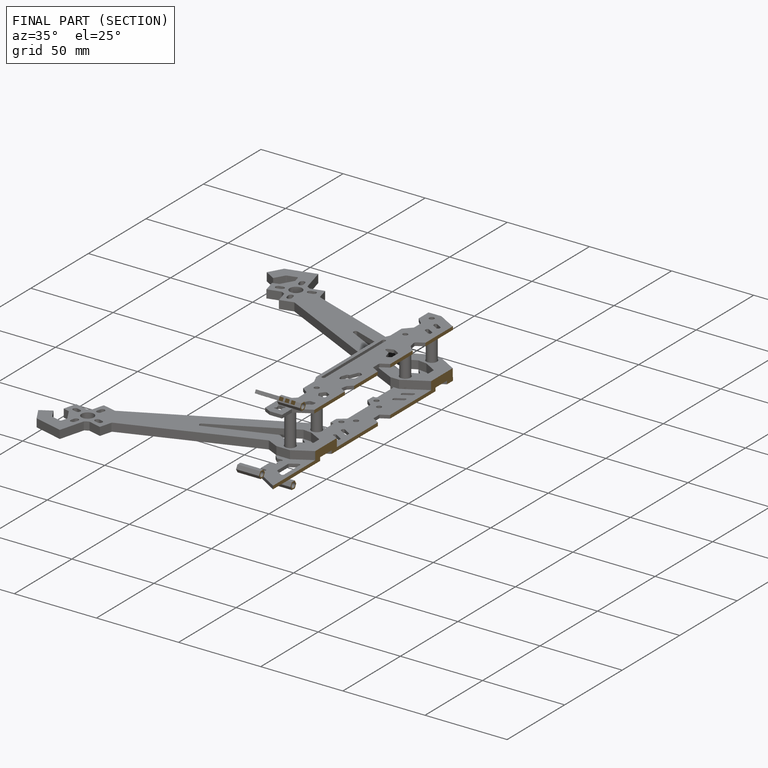
[diagram: finished part — half-section view (interior)]
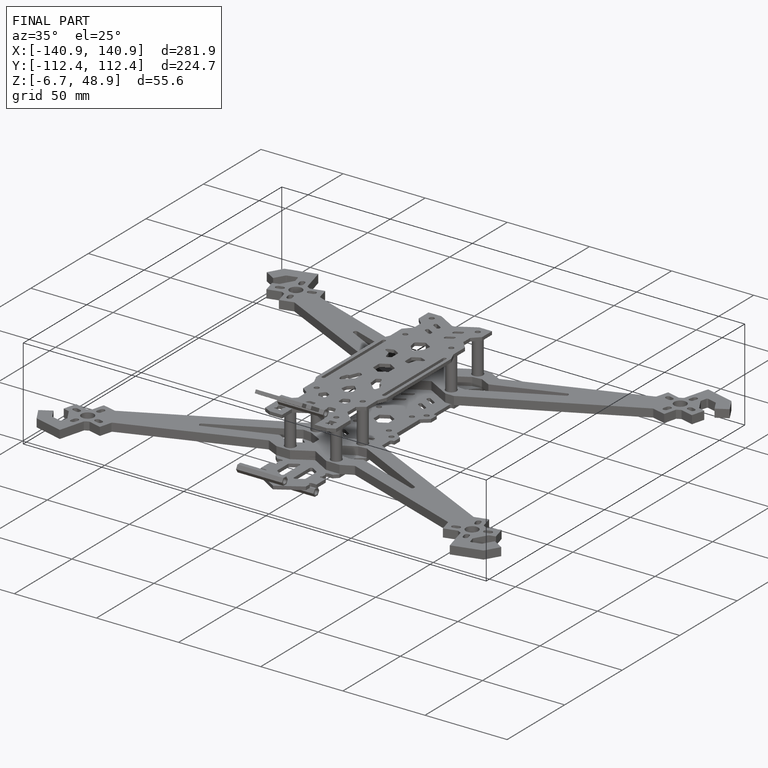
[diagram: finished part — iso view with bounding-box wireframe]
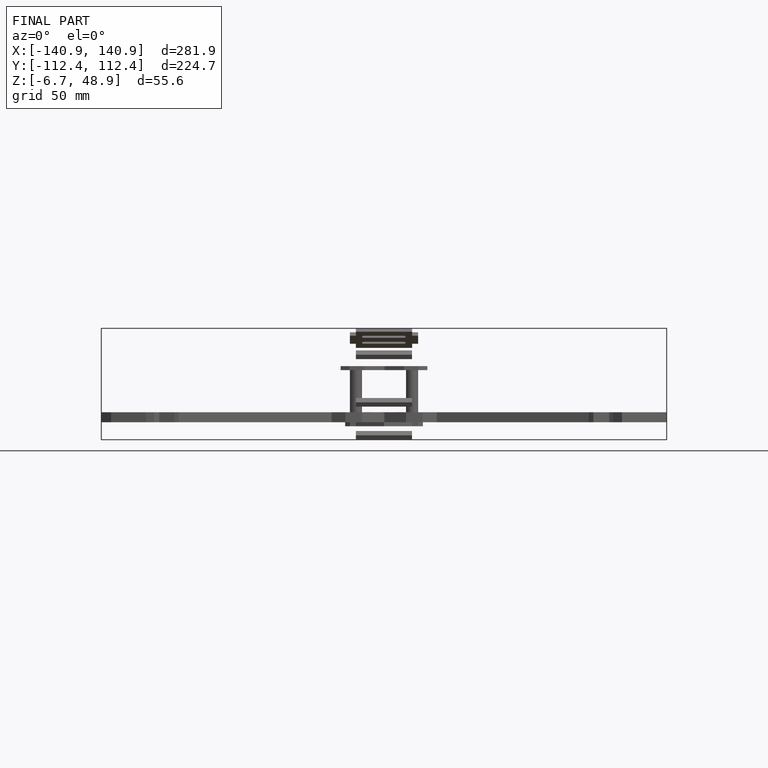
[diagram: finished part — front view with bounding-box wireframe]
